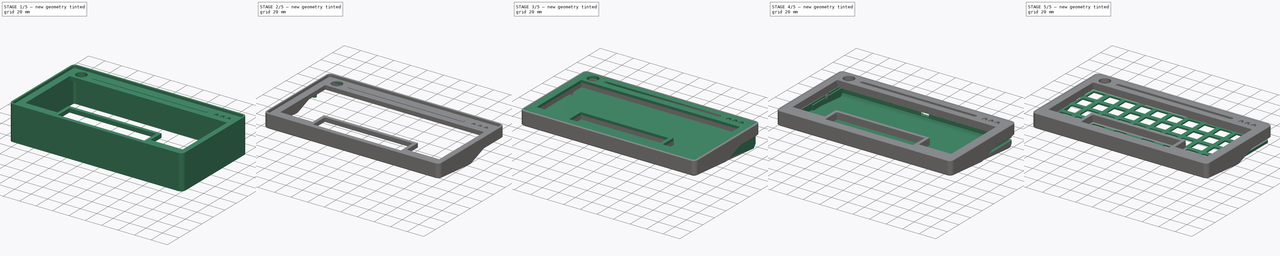
[diagram: build sequence overview — one tinted view per stage of 5, left to right]
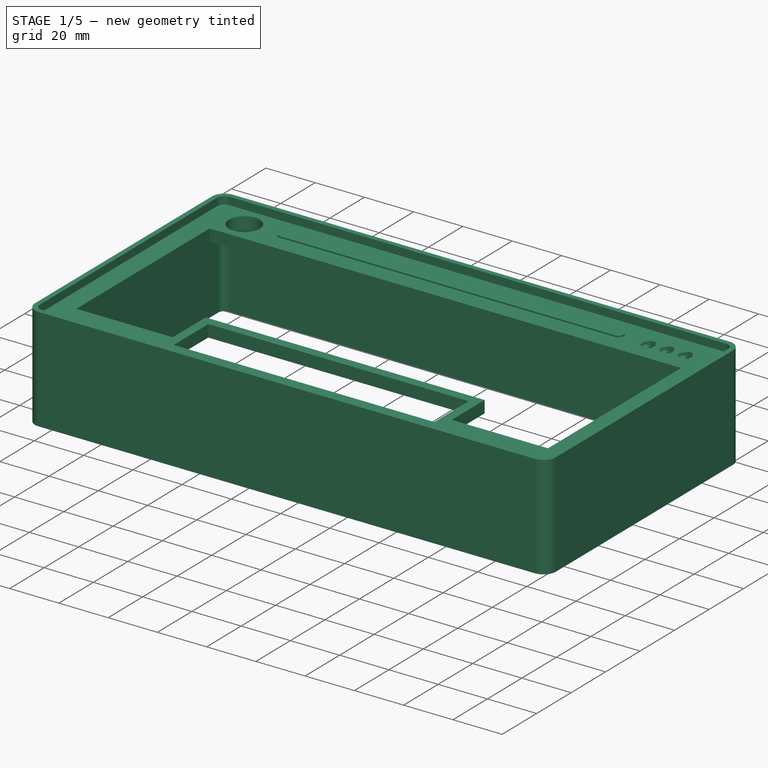
[diagram: stage 1 of 5 — iso view after this stage's code; geometry added in this stage tinted green]
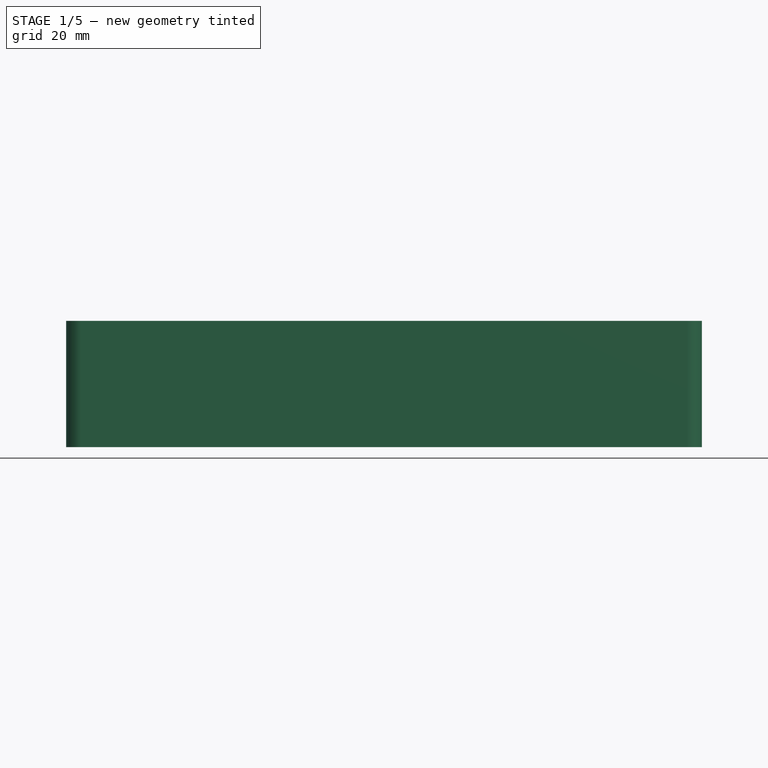
[diagram: stage 1 of 5 — front view after this stage's code; geometry added in this stage tinted green]
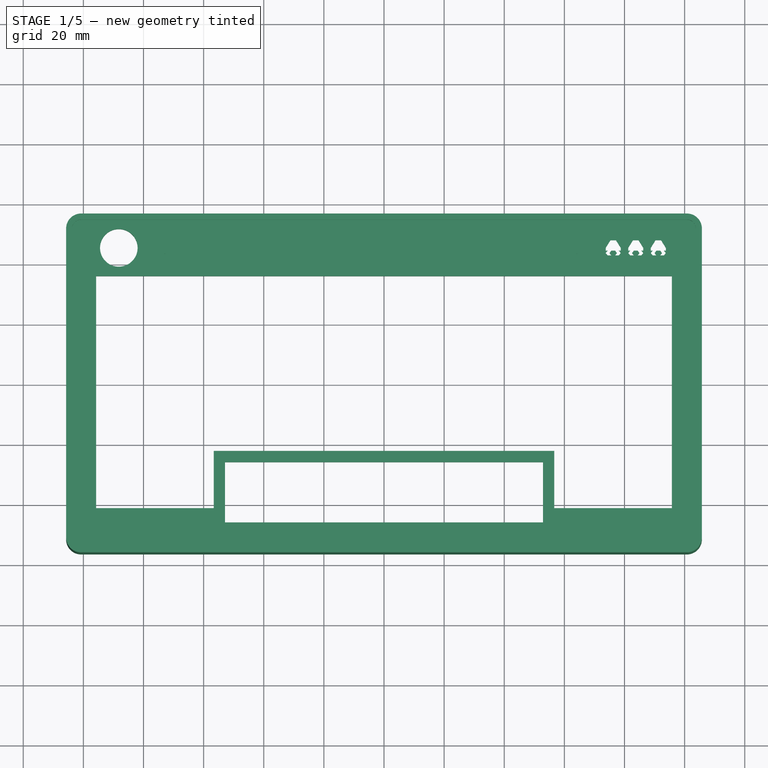
[diagram: stage 1 of 5 — top view after this stage's code; geometry added in this stage tinted green]
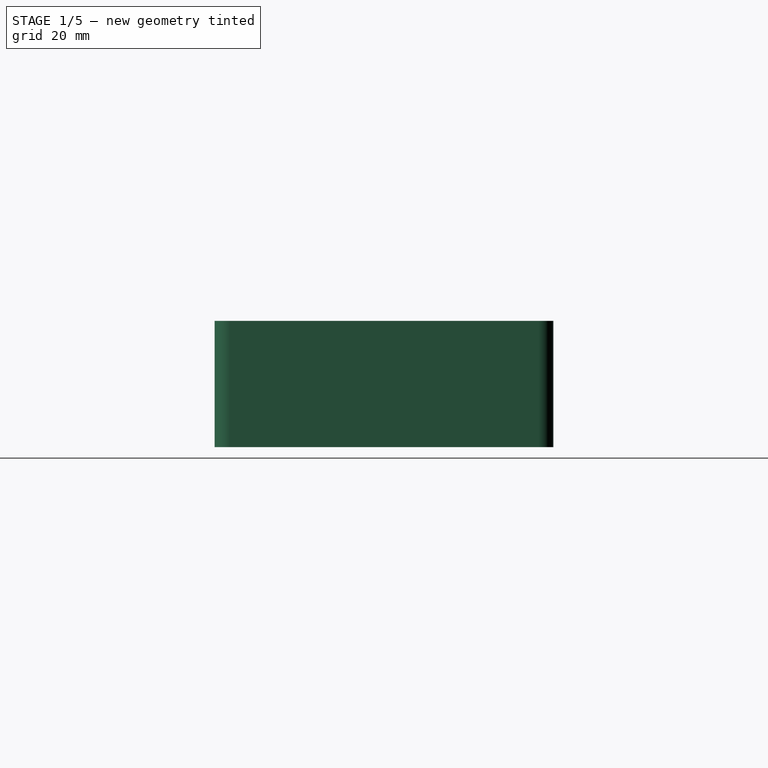
[diagram: stage 1 of 5 — right view after this stage's code; geometry added in this stage tinted green]
FCSTD DOCUMENT  (FreeCAD 0.20R29076 (Git))
Label: case
License: All rights reserved
LicenseURL: http://en.wikipedia.org/wiki/All_rights_reserved
objects: Sketcher::SketchObject×36, PartDesign::Pocket×26, PartDesign::Pad×16, PartDesign::Plane×11, PartDesign::Body×5, PartDesign::LinearPattern×3, PartDesign::Chamfer×3, PartDesign::ShapeBinder×2, PartDesign::Fillet×2, Spreadsheet::Sheet×1, PartDesign::MultiTransform×1
note: 152 computed .brp shape members not serialized (recipe doc carries the construction recipe); baked Part::Feature solids carry a one-line shape summary decoded from their .brp

FEATURE [Sketcher::SketchObject] Sketch
  FullyConstrained = true
  MapMode = 5
  Support = -> [XY_Plane]
  expr: Constraints[18] = <<vals_Case>>.edgeradius
  expr: Constraints[19] = <<vals_Case>>.caseWidth
  expr: Constraints[20] = <<vals_Case>>.caseHeight
  sketch-geometry (10):
    g0: ArcOfCircle CenterX=-100.75 CenterY=51.3625 CenterZ=0 NormalX=0 NormalY=0 NormalZ=1 AngleXU=0 Radius=5 StartAngle=1.5708 EndAngle=3.14159
    g1: LineSegment StartX=-100.75 StartY=56.3625 StartZ=0 EndX=100.75 EndY=56.3625 EndZ=0
    g2: ArcOfCircle CenterX=100.75 CenterY=51.3625 CenterZ=0 NormalX=0 NormalY=0 NormalZ=1 AngleXU=0 Radius=5 StartAngle=7e-16 EndAngle=1.5708
    g3: LineSegment StartX=105.75 StartY=51.3625 StartZ=0 EndX=105.75 EndY=-51.3625 EndZ=0
    g4: ArcOfCircle CenterX=100.75 CenterY=-51.3625 CenterZ=0 NormalX=0 NormalY=0 NormalZ=1 AngleXU=0 Radius=5 StartAngle=4.71239 EndAngle=6.28319
    g5: LineSegment StartX=100.75 StartY=-56.3625 StartZ=0 EndX=-100.75 EndY=-56.3625 EndZ=0
    g6: ArcOfCircle CenterX=-100.75 CenterY=-51.3625 CenterZ=0 NormalX=0 NormalY=0 NormalZ=1 AngleXU=0 Radius=5 StartAngle=3.14159 EndAngle=4.71239
    g7: LineSegment StartX=-105.75 StartY=-51.3625 StartZ=0 EndX=-105.75 EndY=51.3625 EndZ=0
    g8: GeomPoint X=-105.75 Y=56.3625 Z=0
    g9: GeomPoint X=105.75 Y=-56.3625 Z=0
  constraints (23):
    c: Tangent(g0,g1) = 1.5708
    c: Tangent(g1,g2) = 1.5708
    c: Tangent(g2,g3) = 1.5708
    c: Tangent(g3,g4) = 1.5708
    c: Tangent(g4,g5) = 1.5708
    c: Tangent(g5,g6) = 1.5708
    c: Tangent(g6,g7) = 1.5708
    c: Tangent(g7,g0) = 1.5708
    c: Horizontal(g1)
    c: Horizontal(g5)
    c: Vertical(g3)
    c: Vertical(g7)
    c: Equal(g0,g2)
    c: Equal(g2,g4)
    c: PointOnObject(g8,g1)
    c: PointOnObject(g8,g7)
    c: PointOnObject(g9,g3)
    c: PointOnObject(g9,g5)
    c: Radius(g0) = 5
    c: DistanceX(g0,g2) = 211.5
    c: DistanceY(g5,g0) = 112.725
    c: Symmetric(g6,g2,g-1)
    c: Equal(g6,g0)
FEATURE [Spreadsheet::Sheet] Spreadsheet  label="vals_Case"
  cells = A2=Dimensions; D2=Ornament; G2=Acryl; J2=Case; A3=spacing; B3(spacing)=19.05; D3=spaceOffset; E3(spaceOffset)==0.25 * spacing; G3=acrylBorder; H3(acrylBorder)=2; J3=WallThickness; K3(wallThickness)=2.5; A4=border; B4(border)=10; D4=spaceOffsetWidth; E4(spaceoffsetu)=5.5; G4=acrylSafety; H4(acrylSafety)=0.15; J4=midSectionHeight; K4(midSectionHeight)=8.5; A5=Edgeradius; B5(edgeradius)=5; G5=acrylLayerHeight; H5(acrylLayerHeight)=3; J5=midSectionBackInset; K5(midSectionBackInset)=3; A6=topExtra; B6(topExtr)==spaceOffset + 6; D6=penHoldHeight; E6(penHoldHeight)=4; G6=acrylOverlap; H6(acrylOverlap)=0.1; J6=bottomBackOffset; K6(bottomBackOffset)=10; A7=keysafety; B7(keysafety)=0.5; D7=penHoldOffsetLeft; E7(penHoldOffsetLeft)==encOffsetLeft + 2 * encRadius + 7.5; F7==encOffsetLeft + 2 * encRadius + 8; J7=bottomBackInset; K7(bottomBackInset)=10; A8=heightAbovePlate; B8(heightAbovePlate)=8; D8=penHoldOffsetRight; E8(penHoldOffsetRight)==13 + invOffsetRight; G8=encRadius; H8(encRadius)=6.25; I8=1.5; J8=innerWallThickness; K8(innerWallThickness)=1.5; D9=penHoldDepth; E9(penHoldDepth)=2.5; G9=encOffsetLeft; H9(encOffsetLeft)=1.28; J9=typingAngle; K9(typingAngle)=5; A10=caseHeight; B10(caseHeight)==4 * spacing + 2 * border + spaceOffset + topExtr + 2 * keysafety; D10=penHoldPos; E10(penHoldPos)==caseHeight / 2 - (border + topExtr - acrylBorder) / 2 - acrylBorder; A11=caseWidth; B11(caseWidth)==spacing * 10 + 2 * border + 2 * keysafety; D12=InvaderHeight; E12(invaderHeight)=5; G12=plateholes; H12(plateHoleRadius)=1.6; J12=bottomOverlap; K12(bottomOverlap)=1.5; A13=caseOledThickness; B13(caseOLEDThickness)=1.5; D13=InvaderOffsetLeft; E13(invaderOffsetLeft)=0; G13=plateHoleExtra; H13(plateHoleExtra)=1; A14=OLEDWidth; B14(OledWidth)=38; D14=InvaderNo; E14(invaderNo)=3; G14=plateTopOffset; A15=OLEDHeight; B15(OledHeight)=12; D15=InvaderDisplayWidth; E15(invaderDisplayWidth)=15; G15=plateBottomOffset; A16=OLEDSafety; B16(OledSafety)=2; D16=invaderOffsetRight; E16(invOffsetRight)=2; G16=plateThicknes; H16(plateThickness)=1.6; D17=invTopU; E17(invTopU)=4; A18=magOuterRad; B18(magOuterRad)=2.55; D18=invMidU; E18(invMidU)=1.5; G18=cutAngleLength; H18(cutAngleLength)=55; A19=magRad; B19(magRad)=1.55; D19=invBottomU; E19(invBottomU)=2.5; G19=cutAngle; H19(cutAngle)=25; A20=magOuterOffset; B20(magOuterOffset)=1; D20=invLegU; E20(invLegU)=2; D21=invLegOffU; E21(invLegOffU)=1; D22=invTopWidthU; E22(invTopWidthU)=3; D23=invUBase; E23(invUBase)==invaderHeight / 8
FEATURE [PartDesign::Pad] Pad  label="Main"
  Direction = (0,0,1)
  Length = 8
  Length2 = 10
  Profile = -> Sketch
  ReferenceAxis = -> Sketch [N_Axis]
  Type = 0
  expr: Length = <<vals_Case>>.heightAbovePlate
FEATURE [PartDesign::Plane] DatumPlane  label="TopOfCase"
  AttachmentOffset = pos=(0,0,8) rot=(0,0,1;0rad)
  Length = 242.381
  MapMode = 5
  Placement = pos=(0,0,8) rot=(0,0,1;0rad)
  ResizeMode = 0
  Support = -> [XY_Plane]
  Width = 143.606
  expr: .AttachmentOffset.Base.z = <<vals_Case>>.heightAbovePlate
FEATURE [Sketcher::SketchObject] Sketch001
  FullyConstrained = true
  MapMode = 5
  Placement = pos=(0,0,8) rot=(0,0,1;0rad)
  Support = -> [Pad]
  expr: Constraints[17] = <<vals_Case>>.spacing * 4 + 2 * <<vals_Case>>.keysafety
  expr: Constraints[18] = <<vals_Case>>.spacing * 10 + 2 * <<vals_Case>>.keysafety
  expr: Constraints[19] = <<vals_Case>>.spacing * 2 + 2 * <<vals_Case>>.keysafety
  expr: Constraints[20] = <<vals_Case>>.spacing
  expr: Constraints[21] = <<vals_Case>>.caseHeight / 2 - <<vals_Case>>.topExtr - <<vals_Case>>.border
  sketch-geometry (8):
    g0: LineSegment StartX=-95.75 StartY=35.6 StartZ=0 EndX=95.75 EndY=35.6 EndZ=0
    g1: LineSegment StartX=95.75 StartY=35.6 StartZ=0 EndX=95.75 EndY=-41.6 EndZ=0
    g2: LineSegment StartX=95.75 StartY=-41.6 StartZ=0 EndX=56.65 EndY=-41.6 EndZ=0
    g3: LineSegment StartX=56.65 StartY=-41.6 StartZ=0 EndX=56.65 EndY=-22.55 EndZ=0
    g4: LineSegment StartX=56.65 StartY=-22.55 StartZ=0 EndX=-56.65 EndY=-22.55 EndZ=0
    g5: LineSegment StartX=-56.65 StartY=-22.55 StartZ=0 EndX=-56.65 EndY=-41.6 EndZ=0
    g6: LineSegment StartX=-56.65 StartY=-41.6 StartZ=0 EndX=-95.75 EndY=-41.6 EndZ=0
    g7: LineSegment StartX=-95.75 StartY=-41.6 StartZ=0 EndX=-95.75 EndY=35.6 EndZ=0
  constraints (22):
    c: Coincident(g0,g1)
    c: Vertical(g1)
    c: Coincident(g1,g2)
    c: Coincident(g2,g3)
    c: Coincident(g3,g4)
    c: Horizontal(g4)
    c: Coincident(g4,g5)
    c: Vertical(g5)
    c: Coincident(g5,g6)
    c: Coincident(g6,g7)
    c: Coincident(g7,g0)
    c: Vertical(g7)
    c: Horizontal(g6)
    c: Horizontal(g2)
    c: Vertical(g3)
    c: Symmetric(g2,g5,g-2)
    c: Symmetric(g0,g0,g-2)
    c: DistanceY(g7,g7) = 77.2
    c: DistanceX(g0,g0) = 191.5
    c: DistanceX(g6,g6) = 39.1
    c: DistanceY(g5,g5) = 19.05
    c: DistanceY(g-1,g0) = 35.6
FEATURE [PartDesign::Pocket] Pocket  label="Key Cutout"
  BaseFeature = -> Pad
  Direction = (0,0,-1)
  Length = 8
  Length2 = 5
  Profile = -> Sketch001
  ReferenceAxis = -> Sketch001 [N_Axis]
  Type = 0
  expr: Length = <<vals_Case>>.heightAbovePlate
FEATURE [Sketcher::SketchObject] Sketch002
  FullyConstrained = true
  MapMode = 5
  Placement = pos=(0,0,8) rot=(0,0,1;0rad)
  Support = -> [DatumPlane]
  expr: Constraints[6] = 5.5 * <<vals_Case>>.spacing + 2 * <<vals_Case>>.keysafety
  expr: Constraints[7] = <<vals_Case>>.spacing + 2 * <<vals_Case>>.keysafety
  expr: Constraints[8] = <<vals_Case>>.caseHeight / 2 - <<vals_Case>>.border
  sketch-geometry (4):
    g0: LineSegment StartX=-52.8875 StartY=-26.3125 StartZ=0 EndX=52.8875 EndY=-26.3125 EndZ=0
    g1: LineSegment StartX=52.8875 StartY=-26.3125 StartZ=0 EndX=52.8875 EndY=-46.3625 EndZ=0
    g2: LineSegment StartX=52.8875 StartY=-46.3625 StartZ=0 EndX=-52.8875 EndY=-46.3625 EndZ=0
    g3: LineSegment StartX=-52.8875 StartY=-46.3625 StartZ=0 EndX=-52.8875 EndY=-26.3125 EndZ=0
  constraints (11):
    c: Coincident(g0,g1)
    c: Coincident(g1,g2)
    c: Coincident(g2,g3)
    c: Horizontal(g2)
    c: Vertical(g1)
    c: Vertical(g3)
    c: DistanceX(g0,g0) = 105.775
    c: DistanceY(g3,g3) = 20.05
    c: DistanceY(g2,g-1) = 46.3625
    c: Symmetric(g0,g0,g-2)
    c: Coincident(g3,g0)
FEATURE [PartDesign::Pocket] Pocket001  label="Space Cutout"
  BaseFeature = -> Pocket
  Direction = (0,0,-1)
  Length = 8
  Length2 = 5
  Profile = -> Sketch002
  ReferenceAxis = -> Sketch002 [N_Axis]
  Type = 0
  expr: Length = <<vals_Case>>.heightAbovePlate
FEATURE [Sketcher::SketchObject] Sketch003
  FullyConstrained = true
  MapMode = 5
  Placement = pos=(0,0,8) rot=(0,0,1;0rad)
  Support = -> [DatumPlane]
  expr: Constraints[10] = <<vals_Case>>.penHoldHeight
  expr: Constraints[11] = <<vals_Case>>.penHoldPos
  expr: Constraints[12] = <<vals_Case>>.caseWidth / 2 - <<vals_Case>>.border - <<vals_Case>>.penHoldOffsetRight - <<vals_Case>>.invaderDisplayWidth + <<vals_Case>>.penHoldHeight / 2
  expr: Constraints[13] = <<vals_Case>>.caseWidth / 2 - <<vals_Case>>.border - <<vals_Case>>.penHoldOffsetLeft - <<vals_Case>>.penHoldHeight / 2
  sketch-geometry (4):
    g0: ArcOfCircle CenterX=-72.47 CenterY=44.9813 CenterZ=0 NormalX=0 NormalY=0 NormalZ=1 AngleXU=0 Radius=2 StartAngle=1.5708 EndAngle=4.71239
    g1: ArcOfCircle CenterX=67.75 CenterY=44.9813 CenterZ=0 NormalX=0 NormalY=0 NormalZ=1 AngleXU=0 Radius=2 StartAngle=4.71239 EndAngle=7.85398
    g2: LineSegment StartX=67.75 StartY=46.9813 StartZ=0 EndX=-72.47 EndY=46.9813 EndZ=0
    g3: LineSegment StartX=-72.47 StartY=42.9813 StartZ=0 EndX=67.75 EndY=42.9813 EndZ=0
  constraints (14):
    c: Vertical(g1,g1)
    c: Vertical(g1,g1)
    c: Vertical(g0,g0)
    c: Vertical(g0,g0)
    c: Coincident(g2,g1)
    c: Coincident(g2,g0)
    c: Horizontal(g2)
    c: Coincident(g3,g0)
    c: Coincident(g3,g1)
    c: Horizontal(g3)
    c: DistanceY(g0,g0) = 4
    c: DistanceY(g-1,g0) = 44.9813
    c: DistanceX(g-1,g1) = 67.75
    c: DistanceX(g0,g-1) = 72.47
FEATURE [PartDesign::Pocket] Pocket002  label="penHolderCutout"
  BaseFeature = -> Pocket001
  Direction = (0,0,-1)
  Length = 2.5
  Length2 = 5
  Profile = -> Sketch003
  ReferenceAxis = -> Sketch003 [N_Axis]
  Type = 0
  expr: Length = <<vals_Case>>.penHoldDepth
FEATURE [Sketcher::SketchObject] Sketch004
  FullyConstrained = true
  MapMode = 5
  Placement = pos=(0,0,8) rot=(0,0,1;0rad)
  Support = -> [DatumPlane]
  expr: Constraints[25] = <<vals_Case>>.invaderHeight
  expr: Constraints[43] = <<vals_Case>>.invaderHeight
  expr: Constraints[50] = <<vals_Case>>.invTopU * <<vals_Case>>.invUBase
  expr: Constraints[51] = <<vals_Case>>.invTopWidthU * <<vals_Case>>.invUBase
  expr: Constraints[52] = <<vals_Case>>.invMidU * <<vals_Case>>.invUBase
  expr: Constraints[53] = <<vals_Case>>.invLegU * <<vals_Case>>.invUBase
  expr: Constraints[54] = <<vals_Case>>.invLegOffU * <<vals_Case>>.invUBase
  expr: Constraints[56] = <<vals_Case>>.penHoldPos
  expr: Constraints[57] = <<vals_Case>>.caseWidth / 2 - <<vals_Case>>.border - <<vals_Case>>.invOffsetRight
  sketch-geometry (24):
    g0: LineSegment StartX=90.3125 StartY=47.4813 StartZ=0 EndX=92.1875 EndY=47.4813 EndZ=0
    g1: LineSegment StartX=92.1875 StartY=47.4813 StartZ=0 EndX=93.75 EndY=44.9813 EndZ=0
    g2: LineSegment StartX=93.75 StartY=44.9813 StartZ=0 EndX=93.75 EndY=44.0438 EndZ=0
    g3: LineSegment StartX=93.75 StartY=44.0438 StartZ=0 EndX=93.125 EndY=44.0438 EndZ=0
    g4: LineSegment StartX=93.125 StartY=44.0438 StartZ=0 EndX=93.75 EndY=43.2625 EndZ=0
    g5: LineSegment StartX=93.75 StartY=43.2625 StartZ=0 EndX=93.125 EndY=42.4812 EndZ=0
    g6: LineSegment StartX=93.125 StartY=42.4812 StartZ=0 EndX=91.875 EndY=42.4812 EndZ=0
    g7: LineSegment StartX=91.875 StartY=42.4812 StartZ=0 EndX=92.5 EndY=43.2625 EndZ=0
    g8: LineSegment StartX=92.5 StartY=43.2625 StartZ=0 EndX=91.875 EndY=44.0438 EndZ=0
    g9: LineSegment StartX=91.875 StartY=44.0438 StartZ=0 EndX=90.625 EndY=44.0438 EndZ=0
    g10: LineSegment StartX=90.625 StartY=44.0438 StartZ=0 EndX=90 EndY=43.2625 EndZ=0
    g11: LineSegment StartX=90 StartY=43.2625 StartZ=0 EndX=90.625 EndY=42.4813 EndZ=0
    g12: LineSegment StartX=90.625 StartY=42.4813 StartZ=0 EndX=89.375 EndY=42.4812 EndZ=0
    g13: LineSegment StartX=89.375 StartY=42.4812 StartZ=0 EndX=88.75 EndY=43.2625 EndZ=0
    g14: LineSegment StartX=88.75 StartY=43.2625 StartZ=0 EndX=89.375 EndY=44.0438 EndZ=0
    g15: LineSegment StartX=89.375 StartY=44.0438 StartZ=0 EndX=88.75 EndY=44.0438 EndZ=0
    g16: LineSegment StartX=88.75 StartY=44.0438 StartZ=0 EndX=88.75 EndY=44.9813 EndZ=0
    g17: LineSegment StartX=88.75 StartY=44.9813 StartZ=0 EndX=90.3125 EndY=47.4813 EndZ=0
    g18: GeomPoint X=91.25 Y=47.4813 Z=0
    g19: LineSegment StartX=91.25 StartY=47.4813 StartZ=0 EndX=91.25 EndY=42.4813 EndZ=0
    g20: LineSegment StartX=90 StartY=43.2625 StartZ=0 EndX=88.75 EndY=43.2625 EndZ=0
    g21: LineSegment StartX=91.875 StartY=44.0438 StartZ=0 EndX=91.875 EndY=43.2625 EndZ=0
    g22: LineSegment StartX=91.875 StartY=43.2625 StartZ=0 EndX=91.875 EndY=42.4812 EndZ=0
    g23: GeomPoint X=91.25 Y=44.9813 Z=0
  constraints (58):
    c: Horizontal(g0)
    c: Coincident(g1,g0)
    c: Coincident(g2,g1)
    c: Vertical(g2)
    c: Coincident(g3,g2)
    c: Horizontal(g3)
    c: Coincident(g4,g3)
    c: Coincident(g5,g4)
    c: Coincident(g6,g5)
    c: Horizontal(g6)
    c: Coincident(g6,g7)
    c: Coincident(g7,g8)
    c: Coincident(g8,g9)
    c: Horizontal(g9)
    c: Coincident(g9,g10)
    c: Coincident(g10,g11)
    c: Coincident(g11,g12)
    c: Coincident(g12,g13)
    c: Coincident(g13,g14)
    c: Coincident(g14,g15)
    c: Coincident(g15,g16)
    c: Coincident(g16,g17)
    c: Coincident(g17,g0)
    c: Symmetric(g0,g0,g18)
    c: Coincident(g19,g18)
    c: DistanceY(g19,g19) = 5
    c: Horizontal(g11,g19)
    c: Symmetric(g7,g10,g19)
    c: Symmetric(g8,g9,g19)
    c: Symmetric(g11,g6,g19)
    c: Symmetric(g13,g4,g19)
    c: Symmetric(g12,g5,g19)
    c: Symmetric(g15,g2,g19)
    c: Horizontal(g3,g8)
    c: Symmetric(g16,g1,g19)
    c: Symmetric(g14,g3,g19)
    c: Horizontal(g13,g10)
    c: Vertical(g16,g13)
    c: Vertical(g14,g12)
    c: Vertical(g9,g11)
    c: Coincident(g20,g10)
    c: Coincident(g20,g13)
    c: Equal(g12,g20)
    c: DistanceX(g16,g1) = 5
    c: Coincident(g21,g8)
    c: Vertical(g21)
    c: Coincident(g22,g21)
    c: Coincident(g22,g6)
    c: Horizontal(g21,g7)
    c: Equal(g21,g22)
    c: DistanceY(g1,g0) = 2.5
    c: DistanceX(g0,g0) = 1.875
    c: DistanceY(g2,g2) = 0.9375
    c: DistanceX(g6,g6) = 1.25
    c: DistanceX(g15,g15) = 0.625
    c: Symmetric(g19,g19,g23)
    c: DistanceY(g-1,g23) = 44.9813
    c: DistanceX(g-1,g4) = 93.75
FEATURE [PartDesign::Pocket] Pocket003  label="InvaderCutout"
  BaseFeature = -> Pocket002
  Direction = (0,0,-1)
  Length = 8
  Length2 = 5
  Profile = -> Sketch004
  ReferenceAxis = -> Sketch004 [N_Axis]
  Type = 0
  expr: Length = <<vals_Case>>.heightAbovePlate
FEATURE [PartDesign::LinearPattern] LinearPattern  label="InvaderCutout linear"
  BaseFeature = -> Pocket003
  Direction = -> Sketch004 [H_Axis]
  Length = 15
  Occurrences = 3
  Originals = -> [Pocket003]
  Reversed = true
  expr: Length = <<vals_Case>>.invaderDisplayWidth
  expr: Occurrences = <<vals_Case>>.invaderNo
FEATURE [Sketcher::SketchObject] Sketch005
  FullyConstrained = true
  MapMode = 5
  Placement = pos=(0,0,8) rot=(0,0,1;0rad)
  Support = -> [DatumPlane]
  expr: Constraints[19] = <<vals_Case>>.edgeradius - <<vals_Case>>.acrylBorder
  expr: Constraints[20] = <<vals_Case>>.caseWidth - <<vals_Case>>.acrylBorder * 2
  expr: Constraints[21] = <<vals_Case>>.caseHeight - 2 * <<vals_Case>>.acrylBorder
  expr: Constraints[33] = <<vals_Case>>.penHoldHeight
  expr: Constraints[36] = <<vals_Case>>.penHoldPos
  expr: Constraints[37] = <<vals_Case>>.caseWidth / 2 - <<vals_Case>>.border - <<vals_Case>>.penHoldOffsetRight - <<vals_Case>>.invaderDisplayWidth
  expr: Constraints[38] = <<vals_Case>>.caseWidth / 2 - <<vals_Case>>.border - <<vals_Case>>.penHoldOffsetLeft - <<vals_Case>>.penHoldHeight / 2
  sketch-geometry (15):
    g0: ArcOfCircle CenterX=-100.75 CenterY=51.3625 CenterZ=0 NormalX=0 NormalY=0 NormalZ=1 AngleXU=0 Radius=3 StartAngle=1.5708 EndAngle=3.14159
    g1: LineSegment StartX=-100.75 StartY=54.3625 StartZ=0 EndX=100.75 EndY=54.3625 EndZ=0
    g2: ArcOfCircle CenterX=100.75 CenterY=51.3625 CenterZ=0 NormalX=0 NormalY=0 NormalZ=1 AngleXU=0 Radius=3 StartAngle=4e-16 EndAngle=1.5708
    g3: LineSegment StartX=103.75 StartY=51.3625 StartZ=0 EndX=103.75 EndY=-51.3625 EndZ=0
    g4: ArcOfCircle CenterX=100.75 CenterY=-51.3625 CenterZ=0 NormalX=0 NormalY=0 NormalZ=1 AngleXU=0 Radius=3 StartAngle=4.71239 EndAngle=6.28319
    g5: LineSegment StartX=100.75 StartY=-54.3625 StartZ=0 EndX=-100.75 EndY=-54.3625 EndZ=0
    g6: ArcOfCircle CenterX=-100.75 CenterY=-51.3625 CenterZ=0 NormalX=0 NormalY=0 NormalZ=1 AngleXU=0 Radius=3 StartAngle=3.14159 EndAngle=4.71239
    g7: LineSegment StartX=-103.75 StartY=-51.3625 StartZ=0 EndX=-103.75 EndY=51.3625 EndZ=0
    g8: GeomPoint X=-103.75 Y=54.3625 Z=0
    g9: GeomPoint X=103.75 Y=-54.3625 Z=0
    g10: ArcOfCircle CenterX=-72.47 CenterY=44.9813 CenterZ=0 NormalX=0 NormalY=0 NormalZ=1 AngleXU=0 Radius=2 StartAngle=1.5708 EndAngle=4.71239
    g11: ArcOfCircle CenterX=63.75 CenterY=44.9813 CenterZ=0 NormalX=0 NormalY=0 NormalZ=1 AngleXU=0 Radius=2 StartAngle=4.71239 EndAngle=7.85398
    g12: LineSegment StartX=63.75 StartY=46.9813 StartZ=0 EndX=-72.47 EndY=46.9813 EndZ=0
    g13: LineSegment StartX=-72.47 StartY=42.9813 StartZ=0 EndX=63.75 EndY=42.9813 EndZ=0
    g14: GeomPoint X=65.75 Y=44.9813 Z=0
  constraints (39):
    c: Tangent(g0,g1) = 1.5708
    c: Tangent(g1,g2) = 1.5708
    c: Tangent(g2,g3) = 1.5708
    c: Tangent(g3,g4) = 1.5708
    c: Tangent(g4,g5) = 1.5708
    c: Tangent(g5,g6) = 1.5708
    c: Tangent(g6,g7) = 1.5708
    c: Tangent(g7,g0) = 1.5708
    c: Horizontal(g1)
    c: Horizontal(g5)
    c: Vertical(g3)
    c: Vertical(g7)
    c: Equal(g0,g2)
    c: Equal(g2,g4)
    c: Equal(g4,g6)
    c: PointOnObject(g8,g1)
    c: PointOnObject(g8,g7)
    c: PointOnObject(g9,g3)
    c: PointOnObject(g9,g5)
    c: Radius(g0) = 3
    c: DistanceX(g0,g2) = 207.5
    c: DistanceY(g4,g1) = 108.725
    c: Symmetric(g4,g0,g-1)
    c: Vertical(g11,g11)
    c: Vertical(g11,g11)
    c: Vertical(g10,g10)
    c: Vertical(g10,g10)
    c: Coincident(g12,g11)
    c: Coincident(g12,g10)
    c: Horizontal(g12)
    c: Coincident(g13,g10)
    c: Coincident(g13,g11)
    c: Horizontal(g13)
    c: DistanceY(g10,g10) = 4
    c: PointOnObject(g14,g11)
    c: Horizontal(g14,g11)
    c: DistanceY(g-1,g10) = 44.9813
    c: DistanceX(g-1,g14) = 65.75
    c: DistanceX(g10,g-1) = 72.47
FEATURE [PartDesign::Pocket] Pocket004  label="acrylCutout"
  BaseFeature = -> LinearPattern
  Direction = (0,0,-1)
  Length = 3.1
  Length2 = 5
  Profile = -> Sketch005
  ReferenceAxis = -> Sketch005 [N_Axis]
  Type = 0
  expr: Length = <<vals_Case>>.acrylLayerHeight + <<vals_Case>>.acrylOverlap
FEATURE [Sketcher::SketchObject] Sketch006
  FullyConstrained = true
  MapMode = 5
  Placement = pos=(0,0,8) rot=(0,0,1;0rad)
  Support = -> [DatumPlane]
  expr: Constraints[0] = <<vals_Case>>.encRadius
  expr: Constraints[1] = <<vals_Case>>.caseWidth / 2 - <<vals_Case>>.border - <<vals_Case>>.encRadius - <<vals_Case>>.encOffsetLeft
  expr: Constraints[2] = <<vals_Case>>.penHoldPos
  sketch-geometry (1):
    g0: Circle CenterX=-88.22 CenterY=44.9813 CenterZ=0 NormalX=0 NormalY=0 NormalZ=1 AngleXU=0 Radius=6.25
  constraints (3):
    c: Radius(g0) = 6.25
    c: DistanceX(g0,g-1) = 88.22
    c: DistanceY(g-1,g0) = 44.9813
FEATURE [PartDesign::Pocket] Pocket005  label="encoderCutout"
  BaseFeature = -> Pocket004
  Direction = (0,0,-1)
  Length = 8
  Length2 = 5
  Profile = -> Sketch006
  ReferenceAxis = -> Sketch006 [N_Axis]
  Type = 0
  expr: Length = <<vals_Case>>.heightAbovePlate
FEATURE [PartDesign::Plane] DatumPlane002  label="TopOfPlate"
  Length = 242.381
  MapMode = 5
  ResizeMode = 0
  Support = -> [XY_Plane]
  Width = 143.606
FEATURE [Sketcher::SketchObject] Sketch011
  FullyConstrained = true
  MapMode = 5
  Support = -> [DatumPlane002]
  expr: Constraints[11] = 38
  expr: Constraints[8] = <<vals_Case>>.OledWidth + <<vals_Case>>.OledSafety
  expr: Constraints[9] = <<vals_Case>>.OledHeight + <<vals_Case>>.OledSafety
  sketch-geometry (4):
    g0: LineSegment StartX=62 StartY=52 StartZ=0 EndX=102 EndY=52 EndZ=0
    g1: LineSegment StartX=102 StartY=52 StartZ=0 EndX=102 EndY=38 EndZ=0
    g2: LineSegment StartX=102 StartY=38 StartZ=0 EndX=62 EndY=38 EndZ=0
    g3: LineSegment StartX=62 StartY=38 StartZ=0 EndX=62 EndY=52 EndZ=0
  constraints (12):
    c: Coincident(g0,g1)
    c: Coincident(g1,g2)
    c: Coincident(g2,g3)
    c: Coincident(g3,g0)
    c: Horizontal(g0)
    c: Horizontal(g2)
    c: Vertical(g1)
    c: Vertical(g3)
    c: DistanceX(g0,g0) = 40
    c: DistanceY(g3,g3) = 14
    c: DistanceX(g-1,g2) = 62
    c: DistanceY(g-1,g1) = 38
FEATURE [PartDesign::Pocket] Pocket009  label="OLED Cutout"
  BaseFeature = -> Pocket005
  Direction = (0,0,-1)
  Length = 3.35
  Length2 = 5
  Profile = -> Sketch011
  ReferenceAxis = -> Sketch011 [N_Axis]
  Reversed = true
  Type = 0
  expr: Length = <<vals_Case>>.heightAbovePlate - <<vals_Case>>.acrylLayerHeight - <<vals_Case>>.acrylSafety - <<vals_Case>>.caseOLEDThickness
FEATURE [PartDesign::Plane] DatumPlane003  label="midPlane"
  AttachmentOffset = pos=(0,0,-8.5) rot=(0,0,1;0rad)
  Length = 242.381
  MapMode = 5
  Placement = pos=(0,0,-8.5) rot=(0,0,1;0rad)
  ResizeMode = 0
  Support = -> [XY_Plane]
  Width = 143.606
  expr: .AttachmentOffset.Base.z = -<<vals_Case>>.midSectionHeight
FEATURE [Sketcher::SketchObject] Sketch013
  FullyConstrained = true
  MapMode = 5
  Support = -> [DatumPlane002]
  expr: Constraints[19] = <<vals_Case>>.edgeradius
  expr: Constraints[20] = <<vals_Case>>.caseWidth
  expr: Constraints[21] = <<vals_Case>>.caseHeight
  expr: Constraints[42] = <<vals_Case>>.edgeradius - <<vals_Case>>.wallThickness
  expr: Constraints[43] = <<vals_Case>>.caseHeight - <<vals_Case>>.wallThickness * 2
  expr: Constraints[44] = <<vals_Case>>.caseWidth - 2 * <<vals_Case>>.wallThickness
  sketch-geometry (20):
    g0: ArcOfCircle CenterX=-100.75 CenterY=51.3625 CenterZ=0 NormalX=0 NormalY=0 NormalZ=1 AngleXU=0 Radius=5 StartAngle=1.5708 EndAngle=3.14159
    g1: LineSegment StartX=-100.75 StartY=56.3625 StartZ=0 EndX=100.75 EndY=56.3625 EndZ=0
    g2: ArcOfCircle CenterX=100.75 CenterY=51.3625 CenterZ=0 NormalX=0 NormalY=0 NormalZ=1 AngleXU=0 Radius=5 StartAngle=2e-16 EndAngle=1.5708
    g3: LineSegment StartX=105.75 StartY=51.3625 StartZ=0 EndX=105.75 EndY=-51.3625 EndZ=0
    g4: ArcOfCircle CenterX=100.75 CenterY=-51.3625 CenterZ=0 NormalX=0 NormalY=0 NormalZ=1 AngleXU=0 Radius=5 StartAngle=4.71239 EndAngle=6.28319
    g5: LineSegment StartX=100.75 StartY=-56.3625 StartZ=0 EndX=-100.75 EndY=-56.3625 EndZ=0
    g6: ArcOfCircle CenterX=-100.75 CenterY=-51.3625 CenterZ=0 NormalX=0 NormalY=0 NormalZ=1 AngleXU=0 Radius=5 StartAngle=3.14159 EndAngle=4.71239
    g7: LineSegment StartX=-105.75 StartY=-51.3625 StartZ=0 EndX=-105.75 EndY=51.3625 EndZ=0
    g8: GeomPoint X=-105.75 Y=56.3625 Z=0
    g9: GeomPoint X=105.75 Y=-56.3625 Z=0
    g10: ArcOfCircle CenterX=-100.75 CenterY=51.3625 CenterZ=0 NormalX=0 NormalY=0 NormalZ=1 AngleXU=0 Radius=2.5 StartAngle=1.5708 EndAngle=3.14159
    g11: LineSegment StartX=-100.75 StartY=53.8625 StartZ=0 EndX=100.75 EndY=53.8625 EndZ=0
    g12: ArcOfCircle CenterX=100.75 CenterY=51.3625 CenterZ=0 NormalX=0 NormalY=0 NormalZ=1 AngleXU=0 Radius=2.5 StartAngle=1e-15 EndAngle=1.5708
    g13: LineSegment StartX=103.25 StartY=51.3625 StartZ=0 EndX=103.25 EndY=-51.3625 EndZ=0
    g14: ArcOfCircle CenterX=100.75 CenterY=-51.3625 CenterZ=0 NormalX=0 NormalY=0 NormalZ=1 AngleXU=0 Radius=2.5 StartAngle=4.71239 EndAngle=6.28319
    g15: LineSegment StartX=100.75 StartY=-53.8625 StartZ=0 EndX=-100.75 EndY=-53.8625 EndZ=0
    g16: ArcOfCircle CenterX=-100.75 CenterY=-51.3625 CenterZ=0 NormalX=0 NormalY=0 NormalZ=1 AngleXU=0 Radius=2.5 StartAngle=3.14159 EndAngle=4.71239
    g17: LineSegment StartX=-103.25 StartY=-51.3625 StartZ=0 EndX=-103.25 EndY=51.3625 EndZ=0
    g18: GeomPoint X=-103.25 Y=53.8625 Z=0
    g19: GeomPoint X=103.25 Y=-53.8625 Z=0
  constraints (46):
    c: Tangent(g0,g1) = 1.5708
    c: Tangent(g1,g2) = 1.5708
    c: Tangent(g2,g3) = 1.5708
    c: Tangent(g3,g4) = 1.5708
    c: Tangent(g4,g5) = 1.5708
    c: Tangent(g5,g6) = 1.5708
    c: Tangent(g6,g7) = 1.5708
    c: Tangent(g7,g0) = 1.5708
    c: Horizontal(g1)
    c: Horizontal(g5)
    c: Vertical(g3)
    c: Vertical(g7)
    c: Equal(g0,g2)
    c: Equal(g2,g4)
    c: Equal(g4,g6)
    c: PointOnObject(g8,g1)
    c: PointOnObject(g8,g7)
    c: PointOnObject(g9,g3)
    c: PointOnObject(g9,g5)
    c: Radius(g0) = 5
    c: DistanceX(g0,g2) = 211.5
    c: DistanceY(g5,g0) = 112.725
    c: Symmetric(g0,g4,g-1)
    c: Tangent(g10,g11) = 1.5708
    c: Tangent(g11,g12) = 1.5708
    c: Tangent(g12,g13) = 1.5708
    c: Tangent(g13,g14) = 1.5708
    c: Tangent(g14,g15) = 1.5708
    c: Tangent(g15,g16) = 1.5708
    c: Tangent(g16,g17) = 1.5708
    c: Tangent(g17,g10) = 1.5708
    c: Horizontal(g11)
    c: Horizontal(g15)
    c: Vertical(g13)
    c: Vertical(g17)
    c: Equal(g10,g12)
    c: Equal(g12,g14)
    c: Equal(g14,g16)
    c: PointOnObject(g18,g11)
    c: PointOnObject(g18,g17)
    c: PointOnObject(g19,g13)
    c: PointOnObject(g19,g15)
    c: Radius(g14) = 2.5
    c: DistanceY(g15,g10) = 107.725
    c: DistanceX(g10,g12) = 206.5
    c: Symmetric(g10,g14,g-1)
FEATURE [PartDesign::Pad] Pad003  label="midlayer"
  BaseFeature = -> Pocket009
  Direction = (0,0,1)
  Length = 34
  Length2 = 10
  Profile = -> Sketch013
  ReferenceAxis = -> Sketch013 [N_Axis]
  Reversed = true
  Type = 0
  expr: Length = <<vals_Case>>.midSectionHeight * 4
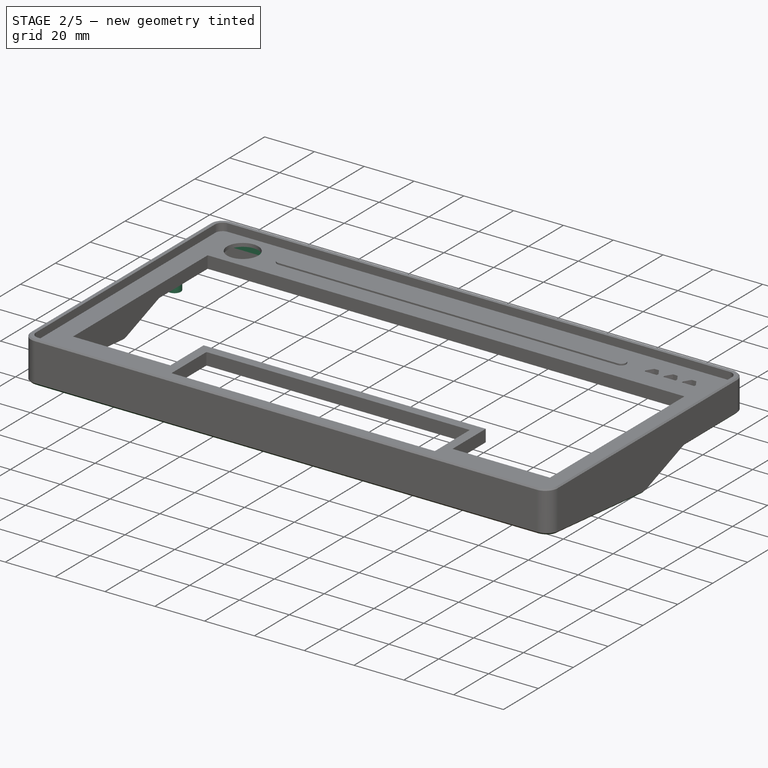
[diagram: stage 2 of 5 — iso view after this stage's code; geometry added in this stage tinted green]
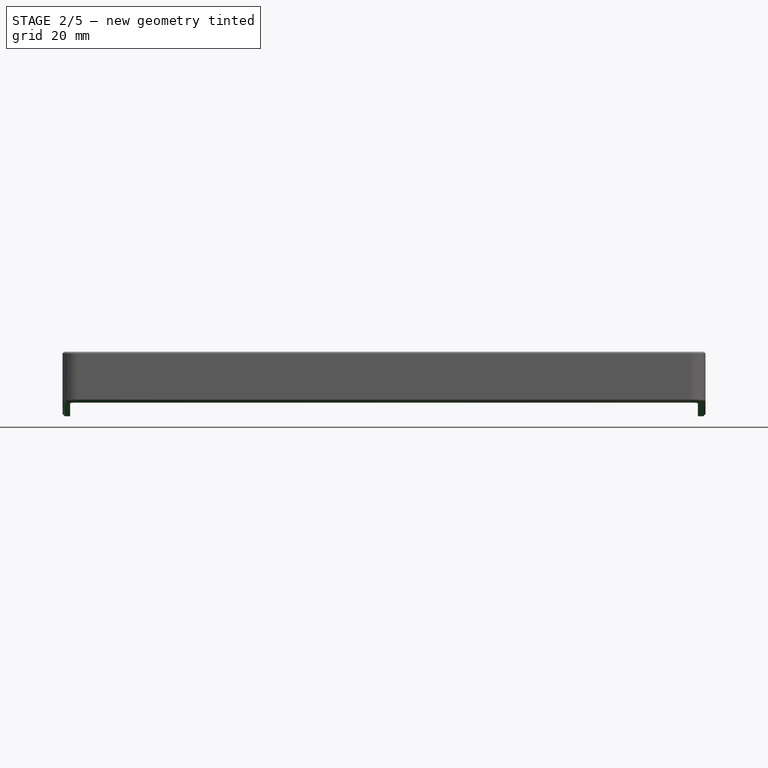
[diagram: stage 2 of 5 — front view after this stage's code; geometry added in this stage tinted green]
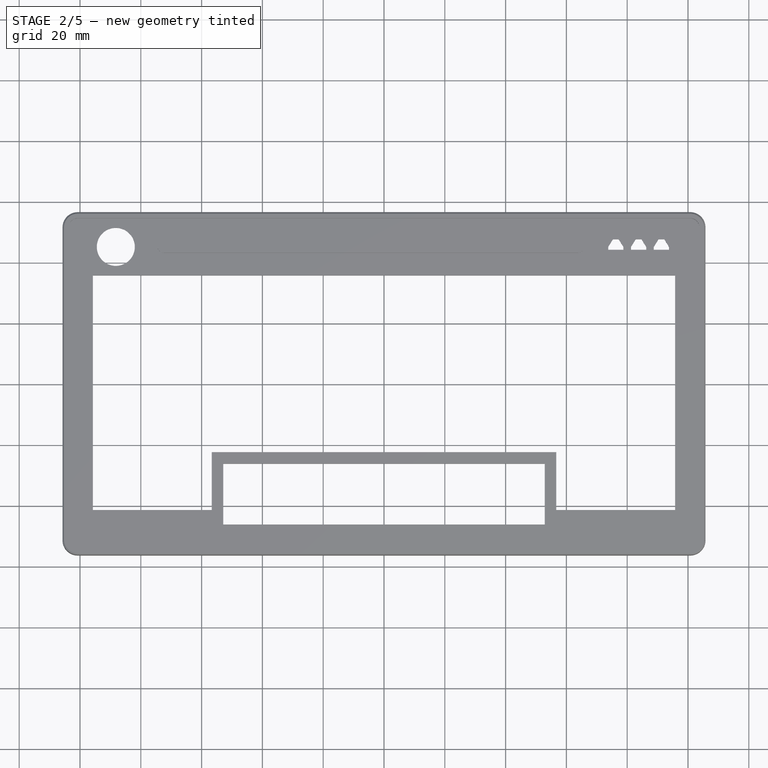
[diagram: stage 2 of 5 — top view after this stage's code; geometry added in this stage tinted green]
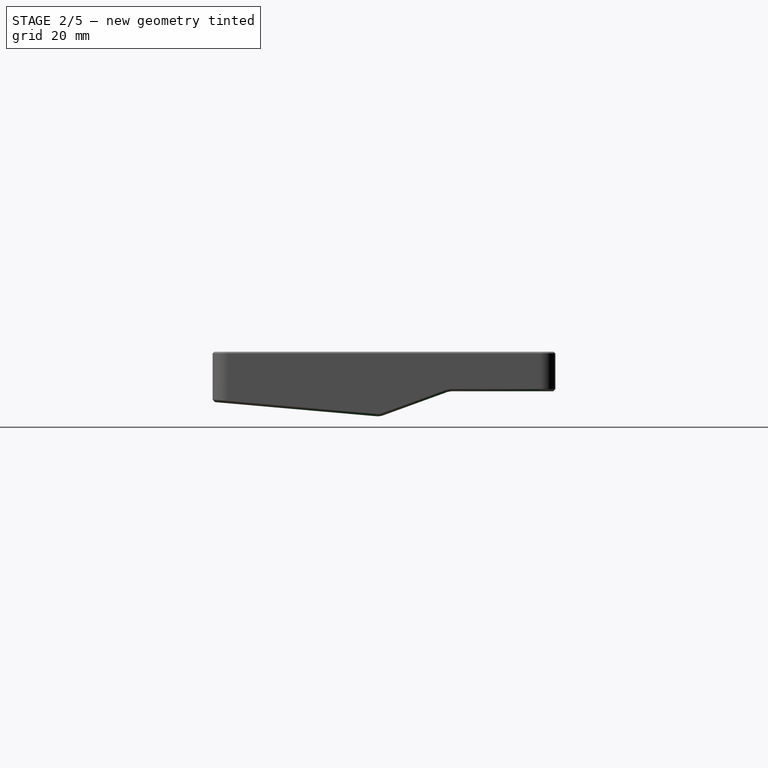
[diagram: stage 2 of 5 — right view after this stage's code; geometry added in this stage tinted green]
FEATURE [PartDesign::Plane] DatumPlane004
  AttachmentOffset = pos=(0,-8.5,105.75) rot=(0,0,1;0rad)
  Length = 127.74
  MapMode = 5
  Placement = pos=(-105.75,2.16e-14,-8.5) rot=(-0.57735,0.57735,0.57735;4.18879rad)
  ResizeMode = 0
  Support = -> [YZ_Plane]
  Width = 65.015
  expr: .AttachmentOffset.Base.y = -<<vals_Case>>.midSectionHeight
  expr: .AttachmentOffset.Base.z = <<vals_Case>>.caseWidth / 2
FEATURE [Sketcher::SketchObject] Sketch014
  FullyConstrained = true
  MapMode = 5
  Placement = pos=(-105.75,2.16e-14,-8.5) rot=(-0.57735,0.57735,0.57735;4.18879rad)
  Support = -> [DatumPlane004]
  expr: Constraints[15] = <<vals_Case>>.midSectionHeight * 10
  expr: Constraints[18] = <<vals_Case>>.cutAngleLength
  expr: Constraints[19] = <<vals_Case>>.cutAngle
  expr: Constraints[1] = <<vals_Case>>.caseHeight * 1.25
  expr: Constraints[20] = <<vals_Case>>.midSectionHeight - 5
  expr: Constraints[2] = <<vals_Case>>.typingAngle
  expr: Constraints[3] = <<vals_Case>>.caseHeight / 2
  expr: Constraints[6] = <<vals_Case>>.caseHeight / 2
  sketch-geometry (7):
    g0: LineSegment StartX=56.3625 StartY=0 StartZ=0 EndX=-84.0076 EndY=-12.2808 EndZ=0
    g1: LineSegment StartX=56.3625 StartY=0 StartZ=0 EndX=1.3625 EndY=-4.81188 EndZ=0
    g2: LineSegment StartX=-21.4742 StartY=3.5 StartZ=0 EndX=-56.3625 EndY=3.5 EndZ=0
    g3: LineSegment StartX=-56.3625 StartY=3.5 StartZ=0 EndX=-56.3625 EndY=-81.5 EndZ=0
    g4: LineSegment StartX=-56.3625 StartY=-81.5 StartZ=0 EndX=56.3625 EndY=-81.5 EndZ=0
    g5: LineSegment StartX=56.3625 StartY=-81.5 StartZ=0 EndX=56.3625 EndY=0 EndZ=0
    g6: LineSegment StartX=1.3625 StartY=-4.81188 StartZ=0 EndX=-21.4742 EndY=3.5 EndZ=0
  constraints (21):
    c: PointOnObject(g0,g-1)
    c: Distance(g0) = 140.906
    c: Angle(g-1,g0) = 0.0872665
    c: DistanceX(g-1,g0) = 56.3625
    c: Coincident(g1,g0)
    c: PointOnObject(g1,g0)
    c: DistanceX(g2,g-1) = 56.3625
    c: Horizontal(g2)
    c: Coincident(g3,g2)
    c: Vertical(g3)
    c: Coincident(g4,g3)
    c: Horizontal(g4)
    c: Coincident(g5,g4)
    c: Coincident(g5,g1)
    c: Vertical(g5)
    c: DistanceY(g3,g3) = 85
    c: Coincident(g6,g1)
    c: Coincident(g6,g2)
    c: DistanceX(g1,g1) = 55
    c: Angle(g6,g0) = 0.436332
    c: DistanceY(g1,g2) = 3.5
FEATURE [PartDesign::Pocket] Pocket010  label="cut profile"
  BaseFeature = -> Pad003
  Direction = (1,-4e-16,2e-16)
  Length = 211.5
  Length2 = 5
  Profile = -> Sketch014
  ReferenceAxis = -> Sketch014 [N_Axis]
  Type = 0
  expr: Length = <<vals_Case>>.caseWidth
FEATURE [PartDesign::Body] Body002  label="Plate"
  Group = -> [DatumPlane001,Sketch008,Pad002,Sketch009,Pocket007,MultiTransform,LinearPattern001,LinearPattern002,Sketch010,Pocket008,Sketch023,Pad005]
  Origin = -> Origin002
  Tip = -> Pad005
FEATURE [Sketcher::SketchObject] Sketch024
  FullyConstrained = true
  MapMode = 5
  Support = -> [DatumPlane002]
  expr: Constraints[10] = <<vals_Case>>.spacing * 3 - 3
  expr: Constraints[11] = 4 + 3 * <<vals_Case>>.spacing
  expr: Constraints[12] = <<vals_Case>>.spacing * 2 + 4
  expr: Constraints[13] = <<vals_Case>>.caseHeight / 2 - <<vals_Case>>.border - <<vals_Case>>.spaceOffset - <<vals_Case>>.keysafety - 2 * <<vals_Case>>.spacing
  expr: Constraints[14] = <<vals_Case>>.spacing * 2 + <<vals_Case>>.spaceOffset + 4
  expr: Constraints[9] = <<vals_Case>>.spacing * 5 + 4
  sketch-geometry (6):
    g0: Circle CenterX=-38.1 CenterY=39.1 CenterZ=0 NormalX=0 NormalY=0 NormalZ=1 AngleXU=0 Radius=1.6
    g1: Circle CenterX=38.1 CenterY=39.1 CenterZ=0 NormalX=0 NormalY=0 NormalZ=1 AngleXU=0 Radius=1.6
    g2: Circle CenterX=-99.25 CenterY=-3 CenterZ=0 NormalX=0 NormalY=0 NormalZ=1 AngleXU=0 Radius=1.6
    g3: Circle CenterX=-54.15 CenterY=-49.8625 CenterZ=0 NormalX=0 NormalY=0 NormalZ=1 AngleXU=0 Radius=1.6
    g4: Circle CenterX=54.15 CenterY=-49.8625 CenterZ=0 NormalX=0 NormalY=0 NormalZ=1 AngleXU=0 Radius=1.6
    g5: Circle CenterX=99.25 CenterY=-3 CenterZ=0 NormalX=0 NormalY=0 NormalZ=1 AngleXU=0 Radius=1.6
  constraints (15):
    c: Equal(g5,g1)
    c: Equal(g1,g0)
    c: Equal(g0,g2)
    c: Equal(g2,g3)
    c: Equal(g3,g4)
    c: Symmetric(g4,g3,g-2)
    c: Symmetric(g5,g2,g-2)
    c: Symmetric(g1,g0,g-2)
    c: Radius(g0) = 1.6
    c: DistanceX(g2,g-1) = 99.25
    c: DistanceX(g3,g-1) = 54.15
    c: DistanceX(g2,g0) = 61.15
    c: DistanceY(g2,g0) = 42.1
    c: DistanceY(g2,g-1) = 3
    c: DistanceY(g3,g2) = 46.8625
FEATURE [PartDesign::Pocket] Pocket018  label="heat insert holes"
  BaseFeature = -> Pocket010
  Direction = (0,0,-1)
  Length = 4
  Length2 = 5
  Profile = -> Sketch024
  ReferenceAxis = -> Sketch024 [N_Axis]
  Reversed = true
  Type = 0
FEATURE [PartDesign::Pad] Pad009  label="magnet holder"
  BaseFeature = -> Pocket018
  Direction = (0,0,1)
  Length = 6
  Length2 = 10
  Profile = -> Sketch028
  ReferenceAxis = -> Sketch028 [N_Axis]
  Type = 0
FEATURE [Sketcher::SketchObject] Sketch030
  FullyConstrained = true
  MapMode = 5
  Placement = pos=(0,0,-4.5) rot=(0,0,1;0rad)
  Support = -> [DatumPlane010]
  expr: Constraints[10] = <<vals_Case>>.spacing * 2
  expr: Constraints[17] = <<vals_Case>>.magRad
  expr: Constraints[5] = <<vals_Case>>.caseHeight / 2 - <<vals_Case>>.wallThickness - <<vals_Case>>.acrylSafety - <<vals_Case>>.magOuterRad - <<vals_Case>>.magOuterOffset
  expr: Constraints[6] = <<vals_Case>>.caseHeight / 2 - <<vals_Case>>.wallThickness - <<vals_Case>>.acrylSafety - <<vals_Case>>.magOuterRad - <<vals_Case>>.magOuterOffset
  expr: Constraints[8] = <<vals_Case>>.caseWidth / 2 - <<vals_Case>>.wallThickness - <<vals_Case>>.acrylSafety - <<vals_Case>>.magOuterRad - <<vals_Case>>.magOuterOffset
  sketch-geometry (7):
    g0: Circle CenterX=-38.1 CenterY=50.1625 CenterZ=0 NormalX=0 NormalY=0 NormalZ=1 AngleXU=0 Radius=1.55
    g1: Circle CenterX=38.1 CenterY=50.1625 CenterZ=0 NormalX=0 NormalY=0 NormalZ=1 AngleXU=0 Radius=1.55
    g2: Circle CenterX=99.55 CenterY=22 CenterZ=0 NormalX=0 NormalY=0 NormalZ=1 AngleXU=0 Radius=1.55
    g3: Circle CenterX=-99.55 CenterY=-50.1625 CenterZ=0 NormalX=0 NormalY=0 NormalZ=1 AngleXU=0 Radius=1.55
    g4: Circle CenterX=-99.55 CenterY=22 CenterZ=0 NormalX=0 NormalY=0 NormalZ=1 AngleXU=0 Radius=1.55
    g5: Circle CenterX=0 CenterY=-50.1625 CenterZ=0 NormalX=0 NormalY=0 NormalZ=1 AngleXU=0 Radius=1.55
    g6: Circle CenterX=99.55 CenterY=-50.1625 CenterZ=0 NormalX=0 NormalY=0 NormalZ=1 AngleXU=0 Radius=1.55
  constraints (18):
    c: Symmetric(g0,g1,g-2)
    c: Symmetric(g4,g2,g-2)
    c: Symmetric(g6,g3,g-2)
    c: PointOnObject(g5,g-2)
    c: Horizontal(g5,g3)
    c: DistanceY(g3,g-1) = 50.1625
    c: DistanceY(g-1,g0) = 50.1625
    c: DistanceY(g-1,g4) = 22
    c: DistanceX(g4,g-1) = 99.55
    c: Vertical(g3,g4)
    c: DistanceX(g0,g-1) = 38.1
    c: Equal(g3,g4)
    c: Equal(g4,g0)
    c: Equal(g0,g1)
    c: Equal(g1,g2)
    c: Equal(g2,g6)
    c: Equal(g6,g5)
    c: Radius(g0) = 1.55
FEATURE [PartDesign::Pocket] Pocket021  label="magnet holes"
  BaseFeature = -> Pad009
  Direction = (0,0,-1)
  Length = 4.1
  Length2 = 5
  Profile = -> Sketch030
  ReferenceAxis = -> Sketch030 [N_Axis]
  Reversed = true
  Type = 0
  expr: Length = 1 + <<vals_Case>>.magRad * 2
FEATURE [Sketcher::SketchObject] Sketch031
  ExternalGeometry = -> [Pocket021]
  FullyConstrained = true
  MapMode = 5
  Placement = pos=(0,0,0) rot=(1,0,0;3.14159rad)
  Support = -> [Pocket021]
  expr: Constraints[120] = <<vals_Case>>.innerWallThickness
  expr: Constraints[121] = <<vals_Case>>.innerWallThickness
  expr: Constraints[122] = <<vals_Case>>.innerWallThickness
  expr: Constraints[123] = <<vals_Case>>.innerWallThickness
  expr: Constraints[39] = <<vals_Case>>.innerWallThickness
  expr: Constraints[40] = <<vals_Case>>.innerWallThickness
  expr: Constraints[41] = <<vals_Case>>.innerWallThickness
  expr: Constraints[42] = <<vals_Case>>.innerWallThickness
  expr: Constraints[55] = <<vals_Case>>.innerWallThickness
  expr: Constraints[56] = <<vals_Case>>.innerWallThickness
  expr: Constraints[57] = <<vals_Case>>.innerWallThickness
  expr: Constraints[85] = <<vals_Case>>.innerWallThickness
  expr: Constraints[97] = <<vals_Case>>.innerWallThickness
  sketch-geometry (48):
    g0: ArcOfCircle CenterX=0 CenterY=50.1625 CenterZ=0 NormalX=0 NormalY=0 NormalZ=1 AngleXU=0 Radius=2.55 StartAngle=5.1589 EndAngle=10.5491
    g1: ArcOfCircle CenterX=38.1 CenterY=-39.1 CenterZ=0 NormalX=0 NormalY=0 NormalZ=1 AngleXU=0 Radius=6 StartAngle=2.80176 EndAngle=6.62302
    g2: ArcOfCircle CenterX=-38.1 CenterY=-39.1 CenterZ=0 NormalX=0 NormalY=0 NormalZ=1 AngleXU=0 Radius=6 StartAngle=2.80176 EndAngle=6.62302
    g3: ArcOfCircle CenterX=-99.55 CenterY=-22 CenterZ=0 NormalX=0 NormalY=0 NormalZ=1 AngleXU=0 Radius=2.55 StartAngle=0.446507 EndAngle=5.83668
    g4: Circle CenterX=-99.55 CenterY=50.1625 CenterZ=0 NormalX=0 NormalY=0 NormalZ=1 AngleXU=0 Radius=2.55
    g5: LineSegment StartX=-48.4931 StartY=47.8625 StartZ=0 EndX=-1.10114 EndY=47.8625 EndZ=0
    g6: LineSegment StartX=1.10114 StartY=47.8625 StartZ=0 EndX=48.4931 EndY=47.8625 EndZ=0
    g7: LineSegment StartX=54.3875 StartY=43.8672 StartZ=0 EndX=54.3875 EndY=24.8125 EndZ=0
    g8: LineSegment StartX=54.3875 StartY=24.8125 StartZ=0 EndX=-54.3875 EndY=24.8125 EndZ=0
    g9: LineSegment StartX=-54.3875 StartY=24.8125 StartZ=0 EndX=-54.3875 EndY=43.8672 EndZ=0
    g10: ArcOfCircle CenterX=54.15 CenterY=49.8625 CenterZ=0 NormalX=0 NormalY=0 NormalZ=1 AngleXU=0 Radius=6 StartAngle=2.41186 EndAngle=3.48143
    g11: ArcOfCircle CenterX=54.15 CenterY=49.8625 CenterZ=0 NormalX=0 NormalY=0 NormalZ=1 AngleXU=0 Radius=6 StartAngle=4.75198 EndAngle=7.01291
    g12: ArcOfCircle CenterX=100.75 CenterY=51.3625 CenterZ=0 NormalX=0 NormalY=0 NormalZ=1 AngleXU=0 Radius=2.5 StartAngle=7e-16 EndAngle=1.5708
    g13: LineSegment StartX=100.75 StartY=53.8625 StartZ=0 EndX=58.6221 EndY=53.8625 EndZ=0
    g14: Circle CenterX=99.55 CenterY=50.1625 CenterZ=0 NormalX=0 NormalY=0 NormalZ=1 AngleXU=0 Radius=2.55
    g15: ArcOfCircle CenterX=-54.15 CenterY=49.8625 CenterZ=0 NormalX=0 NormalY=0 NormalZ=1 AngleXU=0 Radius=6 StartAngle=5.94335 EndAngle=7.01291
    g16: ArcOfCircle CenterX=-54.15 CenterY=49.8625 CenterZ=0 NormalX=0 NormalY=0 NormalZ=1 AngleXU=0 Radius=6 StartAngle=2.41186 EndAngle=4.6728
    g17: LineSegment StartX=-49.6779 StartY=53.8625 StartZ=0 EndX=49.6779 EndY=53.8625 EndZ=0
    g18: LineSegment StartX=55.15 StartY=43.1 StartZ=0 EndX=97.25 EndY=43.1 EndZ=0
    g19: LineSegment StartX=97.25 StartY=43.1 StartZ=0 EndX=97.25 EndY=8.65685 EndZ=0
    g20: LineSegment StartX=55.15 StartY=43.1 StartZ=0 EndX=55.15 EndY=24.05 EndZ=0
    g21: LineSegment StartX=55.15 StartY=24.05 StartZ=0 EndX=-55.15 EndY=24.05 EndZ=0
    g22: LineSegment StartX=-55.15 StartY=24.05 StartZ=0 EndX=-55.15 EndY=43.1 EndZ=0
    g23: LineSegment StartX=-55.15 StartY=43.1 StartZ=0 EndX=-97.25 EndY=43.1 EndZ=0
    g24: LineSegment StartX=-97.25 StartY=43.1 StartZ=0 EndX=-97.25 EndY=8.65685 EndZ=0
    g25: ArcOfCircle CenterX=-99.25 CenterY=3 CenterZ=0 NormalX=0 NormalY=0 NormalZ=1 AngleXU=0 Radius=6 StartAngle=1.23096 EndAngle=2.30052
    g26: ArcOfCircle CenterX=-99.25 CenterY=3 CenterZ=0 NormalX=0 NormalY=0 NormalZ=1 AngleXU=0 Radius=6 StartAngle=3.98266 EndAngle=5.05223
    g27: ArcOfCircle CenterX=-100.75 CenterY=51.3625 CenterZ=0 NormalX=0 NormalY=0 NormalZ=1 AngleXU=0 Radius=2.5 StartAngle=1.5708 EndAngle=3.14159
    g28: LineSegment StartX=-100.75 StartY=53.8625 StartZ=0 EndX=-58.6221 EndY=53.8625 EndZ=0
    g29: LineSegment StartX=-103.25 StartY=7.47214 StartZ=0 EndX=-103.25 EndY=51.3625 EndZ=0
    g30: LineSegment StartX=-97.25 StartY=-20.8989 StartZ=0 EndX=-97.25 EndY=-2.65685 EndZ=0
    g31: LineSegment StartX=-97.25 StartY=-23.1011 StartZ=0 EndX=-97.25 EndY=-37.1 EndZ=0
    g32: LineSegment StartX=-97.25 StartY=-37.1 StartZ=0 EndX=-43.7569 EndY=-37.1 EndZ=0
    g33: Circle CenterX=-38.1 CenterY=-50.1625 CenterZ=0 NormalX=0 NormalY=0 NormalZ=1 AngleXU=0 Radius=2.55
    g34: LineSegment StartX=32.4431 StartY=-37.1 StartZ=0 EndX=-32.4431 EndY=-37.1 EndZ=0
    g35: LineSegment StartX=43.7569 StartY=-37.1 StartZ=0 EndX=97.25 EndY=-37.1 EndZ=0
    g36: LineSegment StartX=97.25 StartY=-37.1 StartZ=0 EndX=97.25 EndY=-23.1011 EndZ=0
    g37: Circle CenterX=38.1 CenterY=-50.1625 CenterZ=0 NormalX=0 NormalY=0 NormalZ=1 AngleXU=0 Radius=2.55
    g38: ArcOfCircle CenterX=100.75 CenterY=-51.3625 CenterZ=0 NormalX=0 NormalY=0 NormalZ=1 AngleXU=0 Radius=2.5 StartAngle=4.71239 EndAngle=6.28319
    g39: ArcOfCircle CenterX=99.55 CenterY=-22 CenterZ=0 NormalX=0 NormalY=0 NormalZ=1 AngleXU=0 Radius=2.55 StartAngle=3.5881 EndAngle=8.97827
    g40: LineSegment StartX=103.25 StartY=-51.3625 StartZ=0 EndX=103.25 EndY=-1.47214 EndZ=0
    g41: ArcOfCircle CenterX=99.25 CenterY=3 CenterZ=0 NormalX=0 NormalY=0 NormalZ=1 AngleXU=0 Radius=6 StartAngle=0.841069 EndAngle=1.91063
    g42: ArcOfCircle CenterX=99.25 CenterY=3 CenterZ=0 NormalX=0 NormalY=0 NormalZ=1 AngleXU=0 Radius=6 StartAngle=4.37255 EndAngle=5.44212
    g43: LineSegment StartX=97.25 StartY=-2.65685 StartZ=0 EndX=97.25 EndY=-20.8989 EndZ=0
    g44: LineSegment StartX=103.25 StartY=51.3625 StartZ=0 EndX=103.25 EndY=7.47214 EndZ=0
    g45: ArcOfCircle CenterX=-100.75 CenterY=-51.3625 CenterZ=0 NormalX=0 NormalY=0 NormalZ=1 AngleXU=0 Radius=2.5 StartAngle=3.14159 EndAngle=4.71239
    g46: LineSegment StartX=-103.25 StartY=-51.3625 StartZ=0 EndX=-103.25 EndY=-1.47214 EndZ=0
    g47: LineSegment StartX=100.75 StartY=-53.8625 StartZ=0 EndX=-100.75 EndY=-53.8625 EndZ=0
  constraints (137):
    c: Coincident(g0,g-5)
    c: Coincident(g1,g-10)
    c: Coincident(g2,g-13)
    c: Coincident(g3,g-14)
    c: Coincident(g4,g-3)
    c: Equal(g4,g-3)
    c: Coincident(g0,g6)
    c: Coincident(g5,g0)
    c: Horizontal(g6)
    c: Horizontal(g5)
    c: Vertical(g7)
    c: Coincident(g8,g7)
    c: Horizontal(g8)
    c: Coincident(g9,g8)
    c: Vertical(g9)
    c: Equal(g0,g-5)
    c: Coincident(g10,g-6)
    c: Coincident(g10,g6)
    c: Coincident(g11,g10)
    c: Equal(g10,g11)
    c: Radius(g11) = 6
    c: Coincident(g12,g-17)
    c: Coincident(g12,g-18)
    c: Horizontal(g12,g12)
    c: Coincident(g13,g12)
    c: Coincident(g13,g11)
    c: Horizontal(g13)
    c: Coincident(g14,g-7)
    c: Equal(g14,g-7)
    c: Horizontal(g0,g0)
    c: Coincident(g15,g-4)
    c: Coincident(g15,g5)
    c: Coincident(g16,g15)
    c: Equal(g16,g15)
    c: Equal(g15,g10)
    c: Coincident(g17,g15)
    c: Coincident(g17,g10)
    c: Horizontal(g17)
    c: Horizontal(g10,g11)
    c: DistanceY(g-16,g5) = 1.5
    c: DistanceX(g9,g-16) = 1.5
    c: DistanceY(g8,g-19) = 1.5
    c: DistanceX(g-19,g7) = 1.5
    c: Horizontal(g18)
    c: Coincident(g18,g19)
    c: Coincident(g18,g20)
    c: Vertical(g20)
    c: Coincident(g20,g21)
    c: Horizontal(g21)
    c: Coincident(g21,g22)
    c: Vertical(g22)
    c: Coincident(g22,g23)
    c: Horizontal(g23)
    c: Coincident(g23,g24)
    c: Vertical(g24)
    c: DistanceX(g-20,g22) = 1.5
    c: DistanceY(g-20,g22) = 1.5
    c: DistanceX(g23,g-20) = 1.5
    c: Coincident(g25,g-15)
    c: Coincident(g26,g25)
    c: Coincident(g25,g24)
    c: Coincident(g27,g-17)
    c: Coincident(g27,g-21)
    c: Vertical(g27,g27)
    c: Coincident(g28,g27)
    c: Coincident(g28,g16)
    c: Horizontal(g28)
    c: Coincident(g29,g25)
    c: Coincident(g29,g27)
    c: Vertical(g29)
    c: Equal(g3,g-14)
    c: Coincident(g30,g3)
    c: Coincident(g30,g26)
    c: Vertical(g30)
    c: Vertical(g26,g24)
    c: Vertical(g3,g3)
    c: Coincident(g31,g3)
    c: Vertical(g31)
    c: Coincident(g32,g31)
    c: Horizontal(g32)
    c: Coincident(g33,g-12)
    c: Equal(g33,g-12)
    c: Radius(g2) = 6
    c: Coincident(g32,g2)
    c: Horizontal(g2,g2)
    c: DistanceY(g31,g-22) = 1.5
    c: Equal(g1,g2)
    c: Coincident(g34,g1)
    c: Coincident(g34,g2)
    c: Horizontal(g34)
    c: Coincident(g35,g1)
    c: Horizontal(g35)
    c: Coincident(g36,g35)
    c: Vertical(g36)
    c: Horizontal(g1,g1)
    c: Coincident(g37,g-11)
    c: Equal(g37,g-11)
    c: DistanceX(g-22,g35) = 1.5
    c: Coincident(g38,g-23)
    c: Horizontal(g38,g38)
    c: PointOnObject(g39,g-9)
    c: PointOnObject(g39,g-9)
    c: Coincident(g39,g36)
    c: Coincident(g40,g38)
    c: Vertical(g40)
    c: Coincident(g41,g-8)
    c: Coincident(g41,g19)
    c: Coincident(g42,g41)
    c: Coincident(g42,g40)
    c: Equal(g42,g41)
    c: Equal(g41,g11)
    c: Coincident(g38,g-24)
    c: Coincident(g43,g42)
    c: Coincident(g43,g39)
    c: Vertical(g43)
    c: Vertical(g39,g36)
    c: Vertical(g19,g42)
    c: Coincident(g44,g12)
    c: Coincident(g44,g41)
    c: Vertical(g44)
    c: DistanceX(g-25,g18) = 1.5
    c: DistanceY(g-25,g18) = 1.5
    c: DistanceX(g18,g-25) = 1.5
    c: DistanceY(g-26,g20) = 1.5
    c: Coincident(g7,g11)
    c: Coincident(g9,g16)
    c: Equal(g25,g26)
    c: Equal(g26,g11)
    c: Coincident(g45,g-23)
    c: Coincident(g45,g-27)
    c: Horizontal(g45,g45)
    c: Coincident(g46,g45)
    c: Coincident(g46,g26)
    c: Vertical(g46)
    c: Coincident(g47,g38)
    c: Coincident(g47,g45)
    c: Equal(g39,g-9)
FEATURE [PartDesign::Pocket] Pocket022  label="remove excess material"
  BaseFeature = -> Pocket021
  Direction = (0,0,1)
  Length = 3.5
  Length2 = 5
  Profile = -> Sketch031
  ReferenceAxis = -> Sketch031 [N_Axis]
  Type = 0
  expr: Length = <<vals_Case>>.heightAbovePlate - <<vals_Case>>.acrylLayerHeight - <<vals_Case>>.caseOLEDThickness
FEATURE [PartDesign::Pocket] Pocket023  label="remove more material"
  BaseFeature = -> Pocket022
  Direction = (0,0,1)
  Length = 1
  Length2 = 5
  Profile = -> Pocket022 [Face194,Face170,Face189,Face190,Face179,Face193,Face171]
  Type = 0
FEATURE [PartDesign::Fillet] Fillet  label="Fillet profile cuts"
  Base = -> Pocket023 [Edge39,Edge77,Edge45,Edge71]
  BaseFeature = -> Pocket023
  Radius = 6
  SupportTransform = false
  UseAllEdges = false
FEATURE [PartDesign::Chamfer] Chamfer001  label="Chamfer underside"
  Angle = 45
  Base = -> Fillet [Edge16]
  BaseFeature = -> Fillet
  ChamferType = 0
  FlipDirection = false
  Size = 0.75
  Size2 = 1
  SupportTransform = false
  UseAllEdges = false
FEATURE [PartDesign::Chamfer] Chamfer002  label="Chamfer top"
  Angle = 45
  Base = -> Chamfer001 [Edge17]
  BaseFeature = -> Chamfer001
  ChamferType = 0
  FlipDirection = false
  Size = 0.5
  Size2 = 1
  SupportTransform = false
  UseAllEdges = false
FEATURE [PartDesign::Body] Body001  label="Acryl"
  Group = -> [ShapeBinder,Pad001,Sketch007,Pocket006,Fillet001,Sketch035,Pad015,Sketch036,Pocket025]
  Origin = -> Origin001
  Tip = -> Pocket025
FEATURE [Sketcher::SketchObject] Sketch037
  ExternalGeometry = -> [Chamfer002]
  FullyConstrained = true
  MapMode = 5
  Placement = pos=(0,0,4.9) rot=(0,0,1;0rad)
  Support = -> [Chamfer002]
  sketch-geometry (4):
    g0: LineSegment StartX=73.75 StartY=44.0438 StartZ=0 EndX=93.75 EndY=44.0438 EndZ=0
    g1: LineSegment StartX=93.75 StartY=44.0438 StartZ=0 EndX=93.75 EndY=42.4812 EndZ=0
    g2: LineSegment StartX=93.75 StartY=42.4812 StartZ=0 EndX=73.75 EndY=42.4812 EndZ=0
    g3: LineSegment StartX=73.75 StartY=42.4812 StartZ=0 EndX=73.75 EndY=44.0438 EndZ=0
  constraints (10):
    c: Coincident(g0,g1)
    c: Coincident(g1,g2)
    c: Coincident(g2,g3)
    c: Coincident(g3,g0)
    c: Horizontal(g2)
    c: Vertical(g1)
    c: Vertical(g3)
    c: Coincident(g0,g-3)
    c: Coincident(g0,g-4)
    c: Horizontal(g-5,g1)
FEATURE [PartDesign::Pad] Pad016  label="fix Ivader fill"
  BaseFeature = -> Chamfer002
  Direction = (0,0,1)
  Length = 10
  Length2 = 10
  Profile = -> Sketch037
  ReferenceAxis = -> Sketch037 [N_Axis]
  Type = 3
  UpToFace = -> Chamfer002 [Face152]
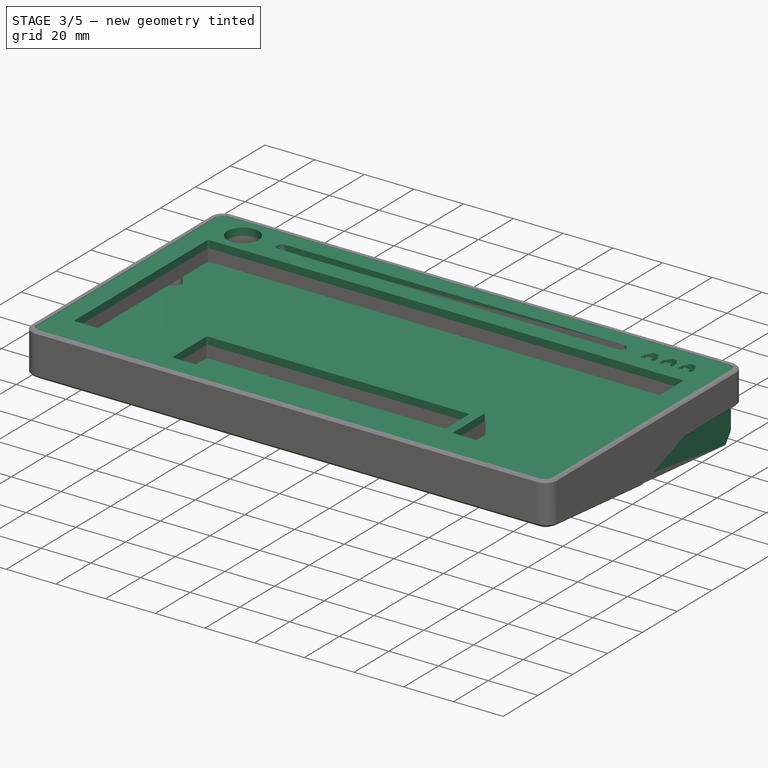
[diagram: stage 3 of 5 — iso view after this stage's code; geometry added in this stage tinted green]
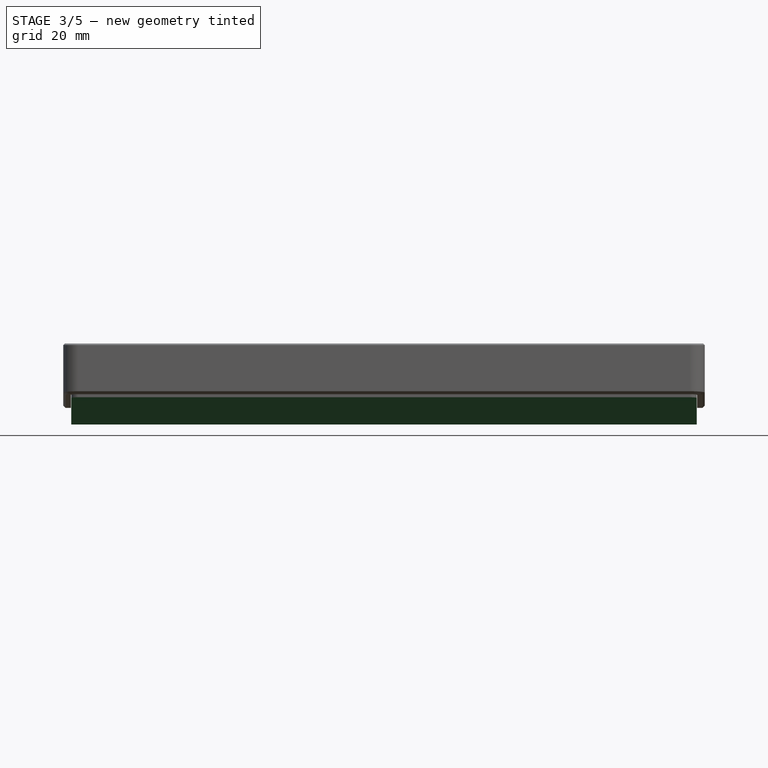
[diagram: stage 3 of 5 — front view after this stage's code; geometry added in this stage tinted green]
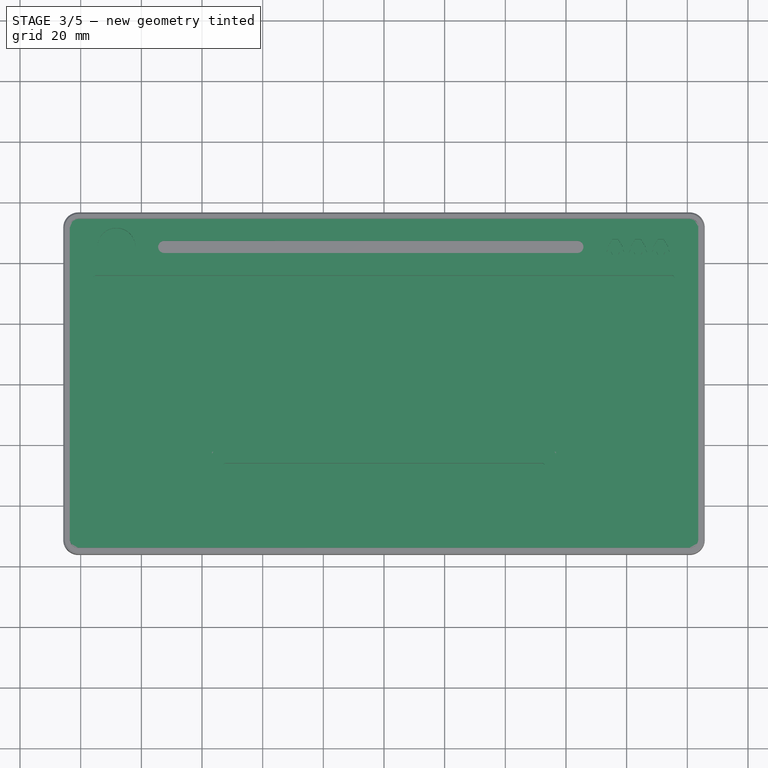
[diagram: stage 3 of 5 — top view after this stage's code; geometry added in this stage tinted green]
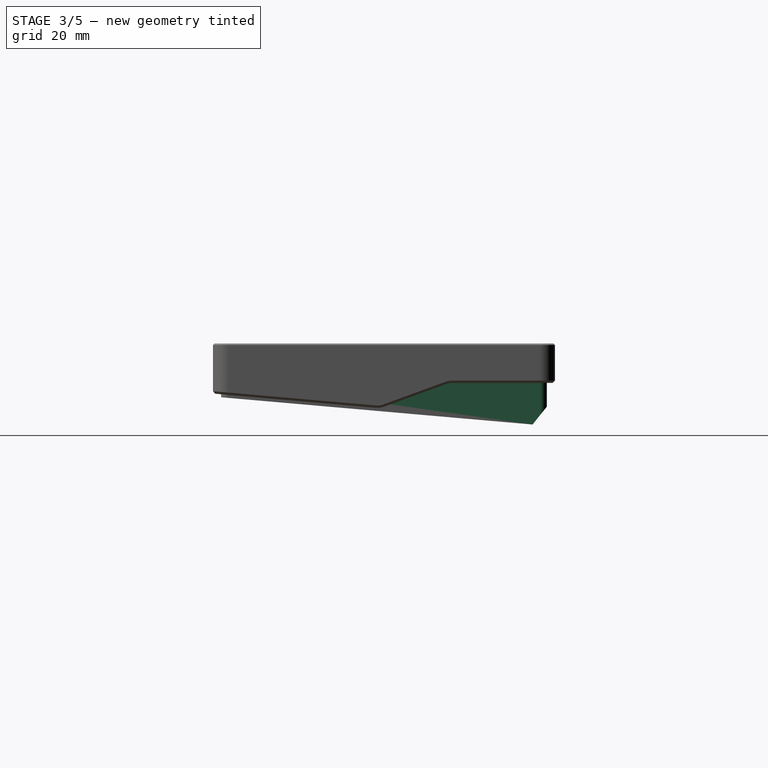
[diagram: stage 3 of 5 — right view after this stage's code; geometry added in this stage tinted green]
FEATURE [PartDesign::ShapeBinder] ShapeBinder
  Support = -> [Pocket005]
  TraceSupport = false
FEATURE [PartDesign::Pad] Pad001  label="Pad man shape"
  Direction = (0,0,1)
  Length = 3
  Length2 = 10
  Profile = -> ShapeBinder
  Type = 0
  expr: Length = <<vals_Case>>.acrylLayerHeight
FEATURE [Sketcher::SketchObject] Sketch007
  FullyConstrained = true
  MapMode = 5
  Placement = pos=(0,0,4.9) rot=(1,0,0;3.14159rad)
  Support = -> [Pad001]
  expr: Constraints[19] = <<vals_Case>>.edgeradius - <<vals_Case>>.acrylSafety - <<vals_Case>>.acrylBorder
  expr: Constraints[20] = <<vals_Case>>.caseHeight - 2 * <<vals_Case>>.acrylBorder - 2 * <<vals_Case>>.acrylSafety
  expr: Constraints[21] = <<vals_Case>>.caseWidth - 2 * <<vals_Case>>.acrylBorder - 2 * <<vals_Case>>.acrylSafety
  expr: Constraints[42] = <<vals_Case>>.edgeradius
  expr: Constraints[43] = <<vals_Case>>.caseWidth
  expr: Constraints[44] = <<vals_Case>>.caseHeight
  sketch-geometry (20):
    g0: ArcOfCircle CenterX=-100.75 CenterY=51.3625 CenterZ=0 NormalX=0 NormalY=0 NormalZ=1 AngleXU=0 Radius=2.85 StartAngle=1.5708 EndAngle=3.14159
    g1: LineSegment StartX=-100.75 StartY=54.2125 StartZ=0 EndX=100.75 EndY=54.2125 EndZ=0
    g2: ArcOfCircle CenterX=100.75 CenterY=51.3625 CenterZ=0 NormalX=0 NormalY=0 NormalZ=1 AngleXU=0 Radius=2.85 StartAngle=1e-15 EndAngle=1.5708
    g3: LineSegment StartX=103.6 StartY=51.3625 StartZ=0 EndX=103.6 EndY=-51.3625 EndZ=0
    g4: ArcOfCircle CenterX=100.75 CenterY=-51.3625 CenterZ=0 NormalX=0 NormalY=0 NormalZ=1 AngleXU=0 Radius=2.85 StartAngle=4.71239 EndAngle=6.28319
    g5: LineSegment StartX=100.75 StartY=-54.2125 StartZ=0 EndX=-100.75 EndY=-54.2125 EndZ=0
    g6: ArcOfCircle CenterX=-100.75 CenterY=-51.3625 CenterZ=0 NormalX=0 NormalY=0 NormalZ=1 AngleXU=0 Radius=2.85 StartAngle=3.14159 EndAngle=4.71239
    g7: LineSegment StartX=-103.6 StartY=-51.3625 StartZ=0 EndX=-103.6 EndY=51.3625 EndZ=0
    g8: GeomPoint X=-103.6 Y=54.2125 Z=0
    g9: GeomPoint X=103.6 Y=-54.2125 Z=0
    g10: ArcOfCircle CenterX=-100.75 CenterY=51.3625 CenterZ=0 NormalX=0 NormalY=0 NormalZ=1 AngleXU=0 Radius=5 StartAngle=1.5708 EndAngle=3.14159
    g11: LineSegment StartX=-100.75 StartY=56.3625 StartZ=0 EndX=100.75 EndY=56.3625 EndZ=0
    g12: ArcOfCircle CenterX=100.75 CenterY=51.3625 CenterZ=0 NormalX=0 NormalY=0 NormalZ=1 AngleXU=0 Radius=5 StartAngle=2e-16 EndAngle=1.5708
    g13: LineSegment StartX=105.75 StartY=51.3625 StartZ=0 EndX=105.75 EndY=-51.3625 EndZ=0
    g14: ArcOfCircle CenterX=100.75 CenterY=-51.3625 CenterZ=0 NormalX=0 NormalY=0 NormalZ=1 AngleXU=0 Radius=5 StartAngle=4.71239 EndAngle=6.28319
    g15: LineSegment StartX=100.75 StartY=-56.3625 StartZ=0 EndX=-100.75 EndY=-56.3625 EndZ=0
    g16: ArcOfCircle CenterX=-100.75 CenterY=-51.3625 CenterZ=0 NormalX=0 NormalY=0 NormalZ=1 AngleXU=0 Radius=5 StartAngle=3.14159 EndAngle=4.71239
    g17: LineSegment StartX=-105.75 StartY=-51.3625 StartZ=0 EndX=-105.75 EndY=51.3625 EndZ=0
    g18: GeomPoint X=-105.75 Y=56.3625 Z=0
    g19: GeomPoint X=105.75 Y=-56.3625 Z=0
  constraints (46):
    c: Tangent(g0,g1) = 1.5708
    c: Tangent(g1,g2) = 1.5708
    c: Tangent(g2,g3) = 1.5708
    c: Tangent(g3,g4) = 1.5708
    c: Tangent(g4,g5) = 1.5708
    c: Tangent(g5,g6) = 1.5708
    c: Tangent(g6,g7) = 1.5708
    c: Tangent(g7,g0) = 1.5708
    c: Horizontal(g1)
    c: Horizontal(g5)
    c: Vertical(g3)
    c: Vertical(g7)
    c: Equal(g0,g2)
    c: Equal(g2,g4)
    c: Equal(g4,g6)
    c: PointOnObject(g8,g1)
    c: PointOnObject(g8,g7)
    c: PointOnObject(g9,g3)
    c: PointOnObject(g9,g5)
    c: Radius(g0) = 2.85
    c: DistanceY(g5,g0) = 108.425
    c: DistanceX(g0,g2) = 207.2
    c: Symmetric(g0,g4,g-1)
    c: Tangent(g10,g11) = 1.5708
    c: Tangent(g11,g12) = 1.5708
    c: Tangent(g12,g13) = 1.5708
    c: Tangent(g13,g14) = 1.5708
    c: Tangent(g14,g15) = 1.5708
    c: Tangent(g15,g16) = 1.5708
    c: Tangent(g16,g17) = 1.5708
    c: Tangent(g17,g10) = 1.5708
    c: Horizontal(g11)
    c: Horizontal(g15)
    c: Vertical(g13)
    c: Vertical(g17)
    c: Equal(g10,g12)
    c: Equal(g12,g14)
    c: Equal(g14,g16)
    c: PointOnObject(g18,g11)
    c: PointOnObject(g18,g17)
    c: PointOnObject(g19,g13)
    c: PointOnObject(g19,g15)
    c: Radius(g10) = 5
    c: DistanceX(g16,g13) = 211.5
    c: DistanceY(g15,g10) = 112.725
    c: Symmetric(g10,g14,g-1)
FEATURE [PartDesign::Pocket] Pocket006  label="cut off safety margin"
  BaseFeature = -> Pad001
  Direction = (0,0,1)
  Length = 3
  Length2 = 5
  Profile = -> Sketch007
  ReferenceAxis = -> Sketch007 [N_Axis]
  Type = 0
  expr: Length = <<vals_Case>>.acrylLayerHeight
FEATURE [PartDesign::Plane] DatumPlane005
  AttachmentOffset = pos=(0,0,-4.5) rot=(0,0,1;0rad)
  Length = 235.966
  MapMode = 2
  Placement = pos=(0,0,-4.5) rot=(0,0,1;0rad)
  ResizeMode = 0
  Support = -> [XY_Plane141]
  Width = 137.191
  expr: .AttachmentOffset.Base.z = -(<<vals_Case>>.midSectionHeight - 2.5) + <<vals_Case>>.bottomOverlap
FEATURE [Sketcher::SketchObject] Sketch015
  FullyConstrained = true
  MapMode = 5
  Placement = pos=(0,0,-4.5) rot=(0,0,1;0rad)
  Support = -> [DatumPlane005]
  expr: Constraints[19] = <<vals_Case>>.edgeradius - <<vals_Case>>.wallThickness - 0.2
  expr: Constraints[20] = <<vals_Case>>.caseWidth - 2 * (<<vals_Case>>.wallThickness + <<vals_Case>>.acrylSafety)
  expr: Constraints[21] = <<vals_Case>>.caseHeight - 2 * (<<vals_Case>>.wallThickness + <<vals_Case>>.acrylSafety)
  sketch-geometry (10):
    g0: ArcOfCircle CenterX=-100.8 CenterY=51.4125 CenterZ=0 NormalX=0 NormalY=0 NormalZ=1 AngleXU=0 Radius=2.3 StartAngle=1.5708 EndAngle=3.14159
    g1: LineSegment StartX=-100.8 StartY=53.7125 StartZ=0 EndX=100.8 EndY=53.7125 EndZ=0
    g2: ArcOfCircle CenterX=100.8 CenterY=51.4125 CenterZ=0 NormalX=0 NormalY=0 NormalZ=1 AngleXU=0 Radius=2.3 StartAngle=1e-15 EndAngle=1.5708
    g3: LineSegment StartX=103.1 StartY=51.4125 StartZ=0 EndX=103.1 EndY=-51.4125 EndZ=0
    g4: ArcOfCircle CenterX=100.8 CenterY=-51.4125 CenterZ=0 NormalX=0 NormalY=0 NormalZ=1 AngleXU=0 Radius=2.3 StartAngle=4.71239 EndAngle=6.28319
    g5: LineSegment StartX=100.8 StartY=-53.7125 StartZ=0 EndX=-100.8 EndY=-53.7125 EndZ=0
    g6: ArcOfCircle CenterX=-100.8 CenterY=-51.4125 CenterZ=0 NormalX=0 NormalY=0 NormalZ=1 AngleXU=0 Radius=2.3 StartAngle=3.14159 EndAngle=4.71239
    g7: LineSegment StartX=-103.1 StartY=-51.4125 StartZ=0 EndX=-103.1 EndY=51.4125 EndZ=0
    g8: GeomPoint X=-103.1 Y=53.7125 Z=0
    g9: GeomPoint X=103.1 Y=-53.7125 Z=0
  constraints (23):
    c: Tangent(g0,g1) = 1.5708
    c: Tangent(g1,g2) = 1.5708
    c: Tangent(g2,g3) = 1.5708
    c: Tangent(g3,g4) = 1.5708
    c: Tangent(g4,g5) = 1.5708
    c: Tangent(g5,g6) = 1.5708
    c: Tangent(g6,g7) = 1.5708
    c: Tangent(g7,g0) = 1.5708
    c: Horizontal(g1)
    c: Horizontal(g5)
    c: Vertical(g3)
    c: Vertical(g7)
    c: Equal(g0,g2)
    c: Equal(g2,g4)
    c: Equal(g4,g6)
    c: PointOnObject(g8,g1)
    c: PointOnObject(g8,g7)
    c: PointOnObject(g9,g3)
    c: PointOnObject(g9,g5)
    c: Radius(g0) = 2.3
    c: DistanceX(g0,g2) = 206.2
    c: DistanceY(g5,g0) = 107.425
    c: Symmetric(g2,g6,g-1)
FEATURE [PartDesign::Pad] Pad004  label="extrude main shape"
  Direction = (0,0,1)
  Length = 50
  Length2 = 10
  Placement = pos=(0,0,-4.5) rot=(0,0,1;0rad)
  Profile = -> Sketch015
  ReferenceAxis = -> Sketch015 [N_Axis]
  Reversed = true
  Type = 0
FEATURE [PartDesign::Plane] DatumPlane006
  AttachmentOffset = pos=(0,-8.5,-105.75) rot=(0,0,1;0rad)
  Length = 122.083
  MapMode = 5
  Placement = pos=(-105.75,2.16e-14,-8.5) rot=(0.57735,0.57735,0.57735;2.0944rad)
  ResizeMode = 0
  Support = -> [YZ_Plane141]
  Width = 64.6578
  expr: .AttachmentOffset.Base.y = -<<vals_Case>>.midSectionHeight
  expr: .AttachmentOffset.Base.z = -<<vals_Case>>.caseWidth / 2
FEATURE [Sketcher::SketchObject] Sketch016
  FullyConstrained = false
  MapMode = 5
  Placement = pos=(-105.75,2.16e-14,-8.5) rot=(0.57735,0.57735,0.57735;2.0944rad)
  Support = -> [DatumPlane006]
  expr: Constraints[6] = <<vals_Case>>.caseHeight
  expr: Constraints[8] = <<vals_Case>>.typingAngle
  sketch-geometry (5):
    g0: LineSegment StartX=-56.3625 StartY=-1 StartZ=0 EndX=48.9794 EndY=-10.2162 EndZ=0
    g1: LineSegment StartX=48.9794 StartY=-10.2162 StartZ=0 EndX=56.3625 EndY=-1 EndZ=0
    g2: LineSegment StartX=56.3625 StartY=-1 StartZ=0 EndX=56.3625 EndY=-121 EndZ=0
    g3: LineSegment StartX=56.3625 StartY=-121 StartZ=0 EndX=-56.3625 EndY=-121 EndZ=0
    g4: LineSegment StartX=-56.3625 StartY=-121 StartZ=0 EndX=-56.3625 EndY=-1 EndZ=0
  constraints (13):
    c: Coincident(g0,g1)
    c: Coincident(g1,g2)
    c: Coincident(g2,g3)
    c: Horizontal(g3)
    c: Coincident(g3,g4)
    c: Coincident(g4,g0)
    c: DistanceX(g0,g1) = 112.725
    c: Symmetric(g1,g0,g-2)
    c: Angle(g0,g-1) = 0.0872665
    c: DistanceY(g0,g-1) = 1
    c: Vertical(g4)
    c: Vertical(g2)
    c: DistanceY(g4,g4) = 120
FEATURE [PartDesign::Pocket] Pocket011  label="cut bottom profile"
  BaseFeature = -> Pad004
  Direction = (-1,1e-16,-1e-16)
  Length = 211.5
  Length2 = 5
  Placement = pos=(0,0,-4.5) rot=(0,0,1;0rad)
  Profile = -> Sketch016
  ReferenceAxis = -> Sketch016 [N_Axis]
  Reversed = true
  Type = 0
  expr: Length = <<vals_Case>>.caseWidth
FEATURE [PartDesign::Body] Body004  label="BackInserts"
  Group = -> [ShapeBinder001,Pad013]
  Origin = -> Origin282
  Tip = -> Pad013
FEATURE [PartDesign::Fillet] Fillet001  label="Filet inside corners"
  Base = -> Pocket006 [Edge104,Edge105,Edge113,Edge109,Edge97,Edge101,Edge99,Edge107,Edge96,Edge111,Edge117,Edge115]
  BaseFeature = -> Pocket006
  Radius = 0.75
  SupportTransform = false
  UseAllEdges = false
FEATURE [Sketcher::SketchObject] Sketch035
  ExternalGeometry = -> [Fillet001]
  FullyConstrained = true
  MapMode = 5
  Placement = pos=(0,0,7.9) rot=(0,0,1;0rad)
  Support = -> [Fillet001]
  sketch-geometry (4):
    g0: LineSegment StartX=73.75 StartY=44.0438 StartZ=0 EndX=93.75 EndY=44.0438 EndZ=0
    g1: LineSegment StartX=93.75 StartY=44.0438 StartZ=0 EndX=93.75 EndY=42.4812 EndZ=0
    g2: LineSegment StartX=93.75 StartY=42.4812 StartZ=0 EndX=73.75 EndY=42.4812 EndZ=0
    g3: LineSegment StartX=73.75 StartY=42.4812 StartZ=0 EndX=73.75 EndY=44.0438 EndZ=0
  constraints (11):
    c: Coincident(g0,g1)
    c: Coincident(g1,g2)
    c: Coincident(g2,g3)
    c: Coincident(g3,g0)
    c: Horizontal(g0)
    c: Horizontal(g2)
    c: Vertical(g1)
    c: Vertical(g3)
    c: Coincident(g0,g-3)
    c: PointOnObject(g-4,g3)
    c: Horizontal(g-4,g2)
FEATURE [PartDesign::Pad] Pad015  label="fix Invaders fill up"
  BaseFeature = -> Fillet001
  Direction = (0,0,1)
  Length = 3
  Length2 = 10
  Profile = -> Sketch035
  ReferenceAxis = -> Sketch035 [N_Axis]
  Reversed = true
  Type = 0
  expr: Length = <<vals_Case>>.acrylLayerHeight
FEATURE [Sketcher::SketchObject] Sketch036
  ExternalGeometry = -> [Pad015]
  FullyConstrained = true
  MapMode = 5
  Placement = pos=(0,0,7.9) rot=(0,0,1;0rad)
  Support = -> [Pad015]
  expr: Constraints[16] = 1.5
  sketch-geometry (42):
    g0: LineSegment StartX=73.75 StartY=44.0438 StartZ=0 EndX=73.35 EndY=43.2625 EndZ=0
    g1: LineSegment StartX=73.35 StartY=43.2625 StartZ=0 EndX=73.75 EndY=42.4812 EndZ=0
    g2: LineSegment StartX=73.75 StartY=42.4812 StartZ=0 EndX=75.25 EndY=42.4812 EndZ=0
    g3: LineSegment StartX=75.25 StartY=42.4812 StartZ=0 EndX=74.85 EndY=43.2625 EndZ=0
    g4: LineSegment StartX=74.85 StartY=43.2625 StartZ=0 EndX=75.25 EndY=44.0438 EndZ=0
    g5: LineSegment StartX=75.25 StartY=44.0438 StartZ=0 EndX=73.75 EndY=44.0438 EndZ=0
    g6: LineSegment StartX=74.85 StartY=43.2625 StartZ=0 EndX=73.35 EndY=43.2625 EndZ=0
    g7: LineSegment StartX=78.75 StartY=44.0438 StartZ=0 EndX=79.15 EndY=43.2625 EndZ=0
    g8: LineSegment StartX=79.15 StartY=43.2625 StartZ=0 EndX=78.75 EndY=42.4812 EndZ=0
    g9: LineSegment StartX=78.75 StartY=42.4812 StartZ=0 EndX=77.25 EndY=42.4812 EndZ=0
    g10: LineSegment StartX=77.25 StartY=42.4812 StartZ=0 EndX=77.65 EndY=43.2625 EndZ=0
    g11: LineSegment StartX=77.65 StartY=43.2625 StartZ=0 EndX=77.25 EndY=44.0438 EndZ=0
    g12: LineSegment StartX=77.25 StartY=44.0438 StartZ=0 EndX=78.75 EndY=44.0438 EndZ=0
    g13: LineSegment StartX=79.15 StartY=43.2625 StartZ=0 EndX=77.65 EndY=43.2625 EndZ=0
    g14: LineSegment StartX=81.25 StartY=44.0438 StartZ=0 EndX=80.85 EndY=43.2625 EndZ=0
    g15: LineSegment StartX=80.85 StartY=43.2625 StartZ=0 EndX=81.25 EndY=42.4812 EndZ=0
    g16: LineSegment StartX=81.25 StartY=42.4812 StartZ=0 EndX=82.75 EndY=42.4812 EndZ=0
    g17: LineSegment StartX=82.75 StartY=42.4812 StartZ=0 EndX=82.35 EndY=43.2625 EndZ=0
    g18: LineSegment StartX=82.35 StartY=43.2625 StartZ=0 EndX=82.75 EndY=44.0438 EndZ=0
    g19: LineSegment StartX=82.75 StartY=44.0438 StartZ=0 EndX=81.25 EndY=44.0438 EndZ=0
    g20: LineSegment StartX=86.25 StartY=44.0438 StartZ=0 EndX=86.65 EndY=43.2625 EndZ=0
    g21: LineSegment StartX=86.65 StartY=43.2625 StartZ=0 EndX=86.25 EndY=42.4812 EndZ=0
    g22: LineSegment StartX=86.25 StartY=42.4812 StartZ=0 EndX=84.75 EndY=42.4812 EndZ=0
    g23: LineSegment StartX=84.75 StartY=42.4812 StartZ=0 EndX=85.15 EndY=43.2625 EndZ=0
    g24: LineSegment StartX=85.15 StartY=43.2625 StartZ=0 EndX=84.75 EndY=44.0438 EndZ=0
    g25: LineSegment StartX=84.75 StartY=44.0438 StartZ=0 EndX=86.25 EndY=44.0438 EndZ=0
    g26: LineSegment StartX=80.85 StartY=43.2625 StartZ=0 EndX=82.35 EndY=43.2625 EndZ=0
    g27: LineSegment StartX=85.15 StartY=43.2625 StartZ=0 EndX=86.65 EndY=43.2625 EndZ=0
    g28: LineSegment StartX=88.75 StartY=44.0438 StartZ=0 EndX=88.35 EndY=43.2625 EndZ=0
    g29: LineSegment StartX=88.35 StartY=43.2625 StartZ=0 EndX=88.75 EndY=42.4812 EndZ=0
    g30: LineSegment StartX=88.75 StartY=42.4812 StartZ=0 EndX=90.25 EndY=42.4812 EndZ=0
    g31: LineSegment StartX=90.25 StartY=42.4812 StartZ=0 EndX=89.85 EndY=43.2625 EndZ=0
    g32: LineSegment StartX=89.85 StartY=43.2625 StartZ=0 EndX=90.25 EndY=44.0438 EndZ=0
    g33: LineSegment StartX=90.25 StartY=44.0438 StartZ=0 EndX=88.75 EndY=44.0438 EndZ=0
    g34: LineSegment StartX=93.75 StartY=44.0438 StartZ=0 EndX=92.25 EndY=44.0438 EndZ=0
    g35: LineSegment StartX=92.25 StartY=44.0438 StartZ=0 EndX=92.65 EndY=43.2625 EndZ=0
    g36: LineSegment StartX=92.65 StartY=43.2625 StartZ=0 EndX=92.25 EndY=42.4812 EndZ=0
    g37: LineSegment StartX=92.25 StartY=42.4812 StartZ=0 EndX=93.75 EndY=42.4812 EndZ=0
    g38: LineSegment StartX=93.75 StartY=42.4812 StartZ=0 EndX=94.15 EndY=43.2625 EndZ=0
    g39: LineSegment StartX=94.15 StartY=43.2625 StartZ=0 EndX=93.75 EndY=44.0438 EndZ=0
    g40: LineSegment StartX=92.65 StartY=43.2625 StartZ=0 EndX=94.15 EndY=43.2625 EndZ=0
    g41: LineSegment StartX=89.85 StartY=43.2625 StartZ=0 EndX=88.35 EndY=43.2625 EndZ=0
  constraints (113):
    c: Coincident(g-3,g0)
    c: Coincident(g0,g1)
    c: Coincident(g1,g-4)
    c: Coincident(g1,g2)
    c: Horizontal(g2)
    c: Coincident(g2,g3)
    c: Coincident(g3,g4)
    c: Coincident(g4,g5)
    c: Coincident(g5,g0)
    c: Horizontal(g5)
    c: Horizontal(g0,g3)
    c: Horizontal(g3,g-5)
    c: Equal(g5,g2)
    c: Coincident(g6,g3)
    c: Coincident(g6,g0)
    c: Equal(g6,g5)
    c: DistanceX(g6,g6) = 1.5
    c: Coincident(g-7,g7)
    c: Coincident(g7,g8)
    c: Coincident(g8,g9)
    c: Horizontal(g9)
    c: Coincident(g9,g10)
    c: Coincident(g10,g11)
    c: Coincident(g11,g12)
    c: Coincident(g12,g7)
    c: Horizontal(g12)
    c: Horizontal(g10,g-8)
    c: Horizontal(g-8,g7)
    c: Equal(g9,g12)
    c: Vertical(g9,g11)
    c: Horizontal(g9,g2)
    c: Coincident(g13,g7)
    c: Coincident(g13,g10)
    c: Equal(g13,g6)
    c: Coincident(g-9,g14)
    c: Coincident(g14,g15)
    c: Coincident(g15,g16)
    c: Horizontal(g16)
    c: Coincident(g16,g17)
    c: Coincident(g17,g18)
    c: Coincident(g18,g19)
    c: Coincident(g19,g14)
    c: Horizontal(g19)
    c: Coincident(g-10,g20)
    c: Coincident(g20,g21)
    c: Coincident(g21,g22)
    c: Horizontal(g22)
    c: Coincident(g22,g23)
    c: Coincident(g23,g24)
    c: Coincident(g24,g25)
    c: Coincident(g25,g20)
    c: Horizontal(g25)
    c: Coincident(g26,g14)
    c: Coincident(g26,g17)
    c: Horizontal(g26)
    c: Coincident(g27,g23)
    c: Coincident(g27,g20)
    c: Horizontal(g27)
    c: Horizontal(g23,g-11)
    c: Horizontal(g-11,g17)
    c: Equal(g27,g26)
    c: Equal(g26,g13)
    c: Equal(g16,g19)
    c: Equal(g19,g25)
    c: Equal(g25,g22)
    c: Horizontal(g16,g-12)
    c: Horizontal(g-12,g22)
    c: Vertical(g16,g18)
    c: Vertical(g24,g22)
    c: Coincident(g-14,g28)
    c: Coincident(g28,g29)
    c: Coincident(g29,g30)
    c: Horizontal(g30)
    c: Coincident(g30,g31)
    c: Coincident(g31,g32)
    c: Coincident(g32,g33)
    c: Coincident(g33,g28)
    c: Horizontal(g33)
    c: Coincident(g-13,g34)
    c: Horizontal(g34)
    c: Coincident(g34,g35)
    c: Coincident(g35,g36)
    c: Coincident(g36,g37)
    c: Horizontal(g37)
    c: Coincident(g37,g38)
    c: Coincident(g38,g39)
    c: Coincident(g39,g34)
    c: Horizontal(g36,g30)
    c: Horizontal(g30,g-15)
    c: Coincident(g40,g35)
    c: Coincident(g40,g38)
    c: Horizontal(g40)
    c: Coincident(g41,g31)
    c: Coincident(g41,g28)
    c: Horizontal(g41)
    c: Equal(g40,g41)
    c: Equal(g41,g27)
    c: Horizontal(g31,g-15)
    c: Horizontal(g-15,g35)
    c: Vertical(g30,g32)
    c: Vertical(g34,g36)
    c: Equal(g37,g34)
    c: DistanceX(g0,g0) = 0.4
    c: DistanceX(g7,g7) = 0.4
    c: Equal(g12,g5)
    c: DistanceX(g14,g14) = 0.4
    c: DistanceX(g20,g20) = 0.4
    c: Equal(g16,g9)
    c: DistanceX(g34,g38) = 0.4
    c: DistanceX(g28,g28) = 0.4
    c: Equal(g30,g33)
    c: Equal(g33,g34)
    c: Equal(g37,g25)
FEATURE [PartDesign::Pocket] Pocket025  label="fix Invaders new legs"
  BaseFeature = -> Pad015
  Direction = (0,0,-1)
  Length = 5
  Length2 = 5
  Profile = -> Sketch036
  ReferenceAxis = -> Sketch036 [N_Axis]
  Type = 0
FEATURE [Sketcher::SketchObject] Sketch038
  ExternalGeometry = -> [Pad016]
  FullyConstrained = true
  MapMode = 5
  Placement = pos=(0,0,4.9) rot=(0,0,1;0rad)
  Support = -> [Pad016]
  sketch-geometry (42):
    g0: LineSegment StartX=78.75 StartY=44.0438 StartZ=0 EndX=79.15 EndY=43.2625 EndZ=0
    g1: LineSegment StartX=79.15 StartY=43.2625 StartZ=0 EndX=78.75 EndY=42.4812 EndZ=0
    g2: LineSegment StartX=78.75 StartY=42.4812 StartZ=0 EndX=77.25 EndY=42.4812 EndZ=0
    g3: LineSegment StartX=77.25 StartY=42.4812 StartZ=0 EndX=77.65 EndY=43.2625 EndZ=0
    g4: LineSegment StartX=77.65 StartY=43.2625 StartZ=0 EndX=77.25 EndY=44.0438 EndZ=0
    g5: LineSegment StartX=77.25 StartY=44.0438 StartZ=0 EndX=78.75 EndY=44.0438 EndZ=0
    g6: LineSegment StartX=73.75 StartY=44.0438 StartZ=0 EndX=73.35 EndY=43.2625 EndZ=0
    g7: LineSegment StartX=73.35 StartY=43.2625 StartZ=0 EndX=73.75 EndY=42.4812 EndZ=0
    g8: LineSegment StartX=73.75 StartY=42.4812 StartZ=0 EndX=75.25 EndY=42.4812 EndZ=0
    g9: LineSegment StartX=75.25 StartY=42.4812 StartZ=0 EndX=74.85 EndY=43.2625 EndZ=0
    g10: LineSegment StartX=74.85 StartY=43.2625 StartZ=0 EndX=75.25 EndY=44.0438 EndZ=0
    g11: LineSegment StartX=75.25 StartY=44.0438 StartZ=0 EndX=73.75 EndY=44.0438 EndZ=0
    g12: LineSegment StartX=73.35 StartY=43.2625 StartZ=0 EndX=74.85 EndY=43.2625 EndZ=0
    g13: LineSegment StartX=77.65 StartY=43.2625 StartZ=0 EndX=79.15 EndY=43.2625 EndZ=0
    g14: LineSegment StartX=86.25 StartY=44.0438 StartZ=0 EndX=86.65 EndY=43.2625 EndZ=0
    g15: LineSegment StartX=86.65 StartY=43.2625 StartZ=0 EndX=86.25 EndY=42.4812 EndZ=0
    g16: LineSegment StartX=86.25 StartY=42.4812 StartZ=0 EndX=84.75 EndY=42.4812 EndZ=0
    g17: LineSegment StartX=84.75 StartY=42.4812 StartZ=0 EndX=85.15 EndY=43.2625 EndZ=0
    g18: LineSegment StartX=85.15 StartY=43.2625 StartZ=0 EndX=84.75 EndY=44.0438 EndZ=0
    g19: LineSegment StartX=84.75 StartY=44.0438 StartZ=0 EndX=86.25 EndY=44.0438 EndZ=0
    g20: LineSegment StartX=81.25 StartY=44.0438 StartZ=0 EndX=80.85 EndY=43.2625 EndZ=0
    g21: LineSegment StartX=80.85 StartY=43.2625 StartZ=0 EndX=81.25 EndY=42.4812 EndZ=0
    g22: LineSegment StartX=81.25 StartY=42.4812 StartZ=0 EndX=82.75 EndY=42.4812 EndZ=0
    g23: LineSegment StartX=82.75 StartY=42.4812 StartZ=0 EndX=82.35 EndY=43.2625 EndZ=0
    g24: LineSegment StartX=82.35 StartY=43.2625 StartZ=0 EndX=82.75 EndY=44.0438 EndZ=0
    g25: LineSegment StartX=82.75 StartY=44.0438 StartZ=0 EndX=81.25 EndY=44.0438 EndZ=0
    g26: LineSegment StartX=86.65 StartY=43.2625 StartZ=0 EndX=85.15 EndY=43.2625 EndZ=0
    g27: LineSegment StartX=82.35 StartY=43.2625 StartZ=0 EndX=80.85 EndY=43.2625 EndZ=0
    g28: LineSegment StartX=93.75 StartY=44.0438 StartZ=0 EndX=94.15 EndY=43.2625 EndZ=0
    g29: LineSegment StartX=94.15 StartY=43.2625 StartZ=0 EndX=93.75 EndY=42.4812 EndZ=0
    g30: LineSegment StartX=93.75 StartY=42.4812 StartZ=0 EndX=92.25 EndY=42.4812 EndZ=0
    g31: LineSegment StartX=92.25 StartY=42.4812 StartZ=0 EndX=92.65 EndY=43.2625 EndZ=0
    g32: LineSegment StartX=92.65 StartY=43.2625 StartZ=0 EndX=92.25 EndY=44.0438 EndZ=0
    g33: LineSegment StartX=92.25 StartY=44.0438 StartZ=0 EndX=93.75 EndY=44.0438 EndZ=0
    g34: LineSegment StartX=88.75 StartY=44.0438 StartZ=0 EndX=88.35 EndY=43.2625 EndZ=0
    g35: LineSegment StartX=88.35 StartY=43.2625 StartZ=0 EndX=88.75 EndY=42.4812 EndZ=0
    g36: LineSegment StartX=88.75 StartY=42.4812 StartZ=0 EndX=90.25 EndY=42.4812 EndZ=0
    g37: LineSegment StartX=90.25 StartY=42.4812 StartZ=0 EndX=89.85 EndY=43.2625 EndZ=0
    g38: LineSegment StartX=89.85 StartY=43.2625 StartZ=0 EndX=90.25 EndY=44.0438 EndZ=0
    g39: LineSegment StartX=90.25 StartY=44.0438 StartZ=0 EndX=88.75 EndY=44.0438 EndZ=0
    g40: LineSegment StartX=92.65 StartY=43.2625 StartZ=0 EndX=94.15 EndY=43.2625 EndZ=0
    g41: LineSegment StartX=89.85 StartY=43.2625 StartZ=0 EndX=88.35 EndY=43.2625 EndZ=0
  constraints (113):
    c: Coincident(g-3,g0)
    c: Coincident(g0,g1)
    c: Coincident(g1,g2)
    c: Horizontal(g2)
    c: Coincident(g2,g3)
    c: Coincident(g3,g4)
    c: Coincident(g4,g5)
    c: Coincident(g5,g0)
    c: Horizontal(g5)
    c: Coincident(g-4,g6)
    c: Coincident(g6,g7)
    c: Coincident(g7,g-5)
    c: Coincident(g7,g8)
    c: Horizontal(g8)
    c: Coincident(g8,g9)
    c: Coincident(g9,g10)
    c: Coincident(g10,g11)
    c: Coincident(g11,g6)
    c: Horizontal(g11)
    c: Horizontal(g0,g-6)
    c: Horizontal(g-6,g3)
    c: Horizontal(g3,g9)
    c: Horizontal(g9,g6)
    c: DistanceX(g6,g6) = 0.4
    c: DistanceX(g0,g0) = 0.4
    c: Horizontal(g2,g8)
    c: Vertical(g1,g0)
    c: Coincident(g12,g6)
    c: Coincident(g12,g9)
    c: Coincident(g13,g3)
    c: Coincident(g13,g0)
    c: Equal(g12,g13)
    c: DistanceX(g12,g12) = 1.5
    c: Equal(g11,g5)
    c: Equal(g5,g13)
    c: Vertical(g8,g10)
    c: Vertical(g2,g4)
    c: Coincident(g-9,g14)
    c: Coincident(g14,g15)
    c: Coincident(g15,g16)
    c: Horizontal(g16)
    c: Coincident(g16,g17)
    c: Coincident(g17,g18)
    c: Coincident(g18,g19)
    c: Coincident(g19,g14)
    c: Horizontal(g19)
    c: Coincident(g-7,g20)
    c: Coincident(g20,g21)
    c: Coincident(g21,g22)
    c: Horizontal(g22)
    c: Coincident(g22,g23)
    c: Coincident(g23,g24)
    c: Coincident(g24,g25)
    c: Coincident(g25,g20)
    c: Horizontal(g25)
    c: Horizontal(g-10,g16)
    c: Horizontal(g16,g22)
    c: Horizontal(g20,g23)
    c: Horizontal(g23,g-8)
    c: Horizontal(g-8,g17)
    c: Horizontal(g17,g14)
    c: Vertical(g20,g21)
    c: Vertical(g24,g22)
    c: Vertical(g16,g18)
    c: Vertical(g14,g15)
    c: Equal(g16,g25)
    c: DistanceX(g20,g20) = 0.4
    c: DistanceX(g14,g14) = 0.4
    c: Coincident(g26,g14)
    c: Coincident(g26,g17)
    c: Coincident(g27,g23)
    c: Coincident(g27,g20)
    c: Equal(g25,g27)
    c: Equal(g27,g26)
    c: Coincident(g-11,g28)
    c: Coincident(g28,g29)
    c: Coincident(g29,g30)
    c: Coincident(g30,g31)
    c: Coincident(g31,g32)
    c: Coincident(g32,g33)
    c: Coincident(g33,g28)
    c: Horizontal(g33)
    c: Coincident(g-13,g34)
    c: Coincident(g34,g35)
    c: Coincident(g35,g36)
    c: Horizontal(g36)
    c: Coincident(g36,g37)
    c: Coincident(g37,g38)
    c: Coincident(g38,g39)
    c: Coincident(g39,g34)
    c: Horizontal(g39)
    c: Horizontal(g34,g37)
    c: Horizontal(g37,g-12)
    c: Horizontal(g-12,g31)
    c: Horizontal(g31,g28)
    c: Vertical(g32,g30)
    c: Vertical(g29,g28)
    c: Vertical(g36,g38)
    c: Vertical(g35,g34)
    c: Horizontal(g30,g-12)
    c: Horizontal(g-12,g36)
    c: Horizontal(g30)
    c: Coincident(g40,g31)
    c: Coincident(g40,g28)
    c: Coincident(g41,g37)
    c: Coincident(g41,g34)
    c: Equal(g41,g39)
    c: Equal(g39,g40)
    c: Equal(g40,g33)
    c: Equal(g33,g12)
    c: Equal(g25,g12)
    c: DistanceX(g34,g34) = 0.4
    c: DistanceX(g28,g28) = 0.4
FEATURE [PartDesign::Pocket] Pocket026  label="fix Invader new legs"
  BaseFeature = -> Pad016
  Direction = (0,0,-1)
  Length = 5
  Length2 = 5
  Profile = -> Sketch038
  ReferenceAxis = -> Sketch038 [N_Axis]
  Type = 0
FEATURE [Sketcher::SketchObject] Sketch039
  ExternalGeometry = -> [Pocket026]
  FullyConstrained = true
  MapMode = 5
  Placement = pos=(0,0,3.5) rot=(1,0,0;3.14159rad)
  Support = -> [Pocket026]
  sketch-geometry (8):
    g0: ArcOfCircle CenterX=-100.75 CenterY=-51.3625 CenterZ=0 NormalX=0 NormalY=0 NormalZ=1 AngleXU=0 Radius=2.5 StartAngle=3.14159 EndAngle=4.71239
    g1: ArcOfCircle CenterX=100.75 CenterY=-51.3625 CenterZ=0 NormalX=0 NormalY=0 NormalZ=1 AngleXU=0 Radius=2.5 StartAngle=4.71239 EndAngle=6.28319
    g2: LineSegment StartX=-100.75 StartY=-53.8625 StartZ=0 EndX=-100.127 EndY=-53.8625 EndZ=0
    g3: LineSegment StartX=-103.25 StartY=-51.3625 StartZ=0 EndX=-103.25 EndY=-50.7399 EndZ=0
    g4: ArcOfCircle CenterX=-102.518 CenterY=-53.1303 CenterZ=0 NormalX=0 NormalY=0 NormalZ=1 AngleXU=0 Radius=2.5 StartAngle=5.98593 EndAngle=8.15123
    g5: LineSegment StartX=103.25 StartY=-51.3625 StartZ=0 EndX=103.25 EndY=-50.7399 EndZ=0
    g6: LineSegment StartX=100.75 StartY=-53.8625 StartZ=0 EndX=100.127 EndY=-53.8625 EndZ=0
    g7: ArcOfCircle CenterX=102.518 CenterY=-53.1303 CenterZ=0 NormalX=0 NormalY=0 NormalZ=1 AngleXU=0 Radius=2.5 StartAngle=1.27354 EndAngle=3.43884
  constraints (24):
    c: Coincident(g0,g-4)
    c: Coincident(g0,g-4)
    c: Coincident(g0,g-4)
    c: Coincident(g1,g-3)
    c: Coincident(g1,g-3)
    c: Coincident(g1,g-3)
    c: Coincident(g2,g0)
    c: Horizontal(g2)
    c: Coincident(g3,g0)
    c: Vertical(g3)
    c: PointOnObject(g4,g0)
    c: Coincident(g4,g3)
    c: Coincident(g4,g2)
    c: PointOnObject(g0,g4)
    c: Equal(g3,g2)
    c: Coincident(g5,g1)
    c: Vertical(g5)
    c: Coincident(g6,g1)
    c: Horizontal(g6)
    c: PointOnObject(g7,g1)
    c: Coincident(g7,g5)
    c: Coincident(g7,g6)
    c: PointOnObject(g1,g7)
    c: Equal(g6,g5)
FEATURE [PartDesign::Pad] Pad017  label="add edge to prevent wobble"
  BaseFeature = -> Pocket026
  Direction = (0,0,-1)
  Length = 6.9
  Length2 = 10
  Profile = -> Sketch039
  ReferenceAxis = -> Sketch039 [N_Axis]
  Type = 0
FEATURE [PartDesign::Body] Body  label="Case"
  Group = -> [Sketch,Pad,DatumPlane,Sketch001,Pocket,Sketch002,Pocket001,Sketch003,Pocket002,Sketch004,Pocket003,LinearPattern,Sketch005,Pocket004,Sketch006,Pocket005,DatumPlane002,Sketch011,Pocket009,DatumPlane003,Sketch013,Pad003,DatumPlane004,Sketch014,Pocket010,Sketch024,Pocket018,DatumPlane010,Sketch028,Pad009,Sketch030,Pocket021,Sketch031,Pocket022,Pocket023,Fillet,Chamfer001,Chamfer002,Sketch037,Pad016,+4 more]
  Origin = -> Origin
  Tip = -> Pad017
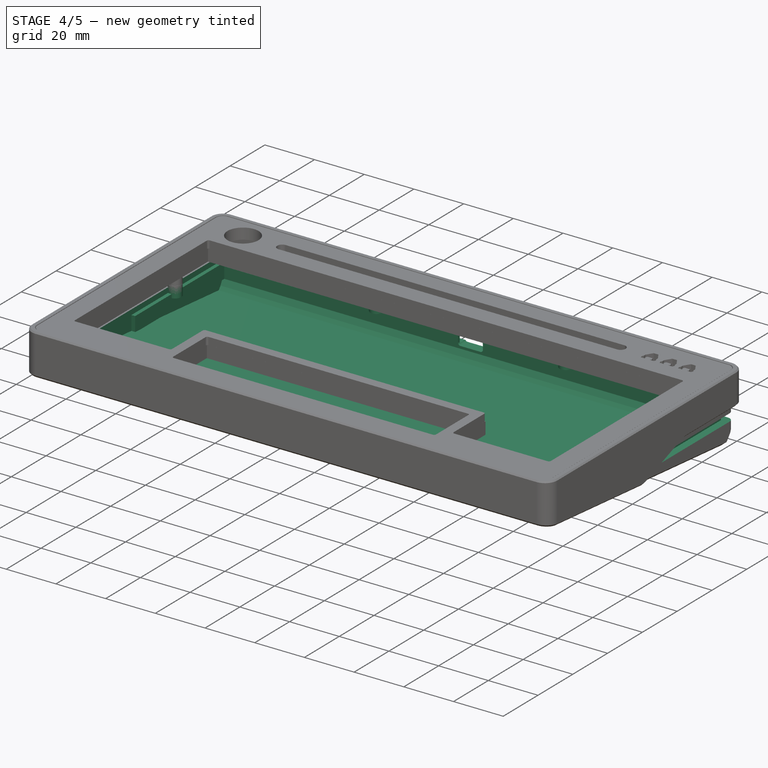
[diagram: stage 4 of 5 — iso view after this stage's code; geometry added in this stage tinted green]
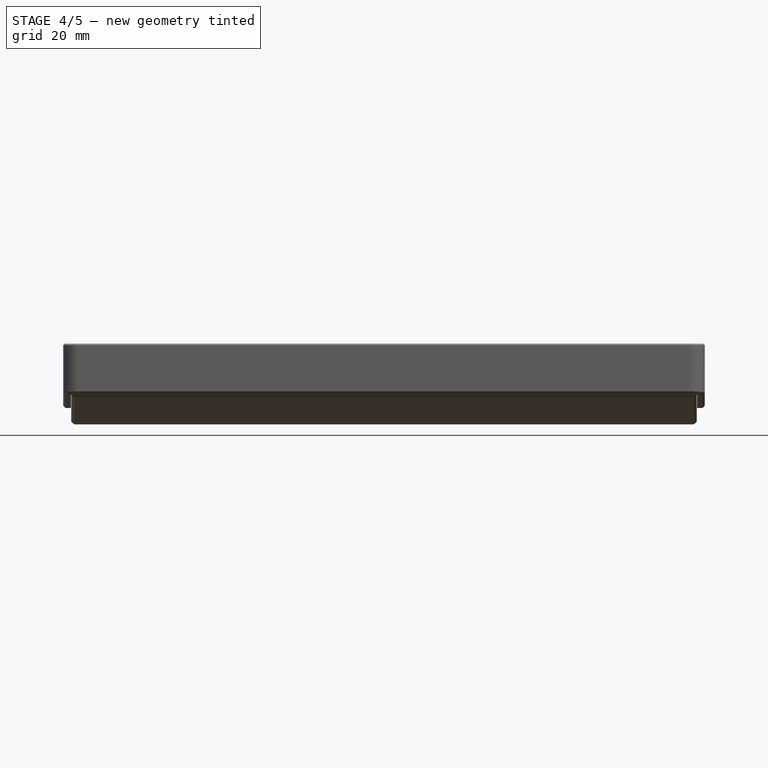
[diagram: stage 4 of 5 — front view after this stage's code; geometry added in this stage tinted green]
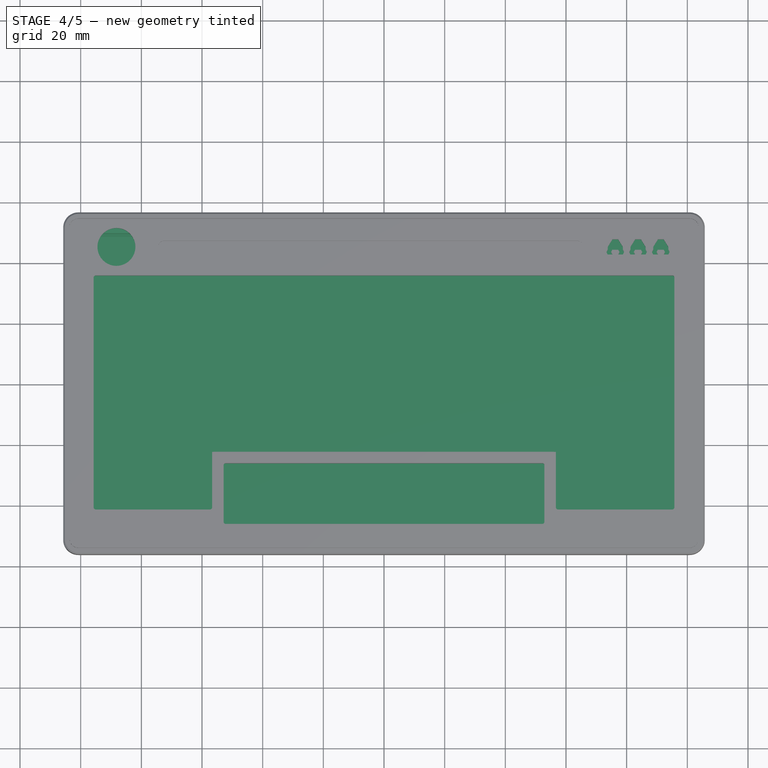
[diagram: stage 4 of 5 — top view after this stage's code; geometry added in this stage tinted green]
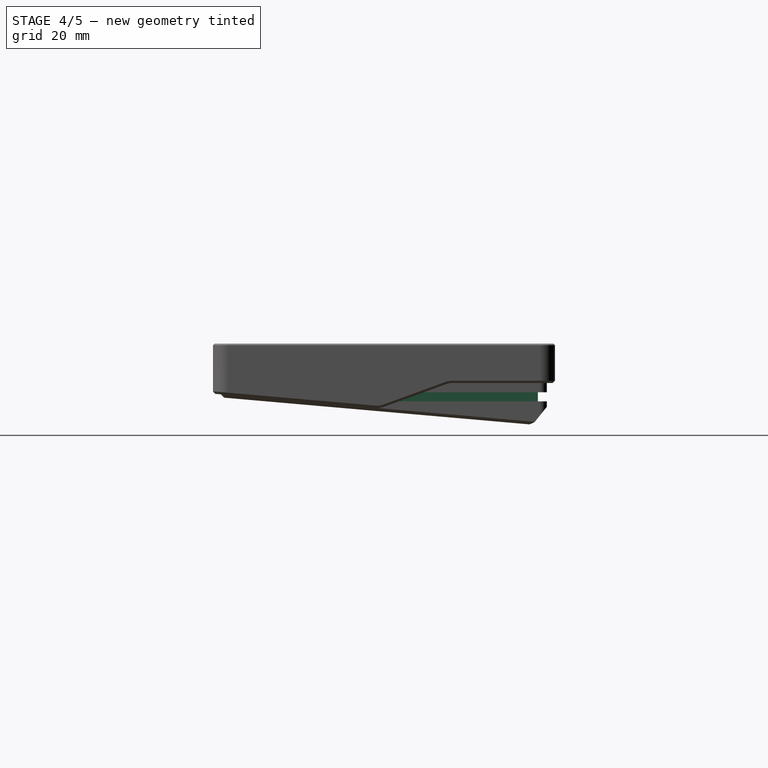
[diagram: stage 4 of 5 — right view after this stage's code; geometry added in this stage tinted green]
FEATURE [Sketcher::SketchObject] Sketch017
  FullyConstrained = true
  MapMode = 5
  Placement = pos=(0,53.7125,-4.5) rot=(0,0.707107,0.707107;3.14159rad)
  Support = -> [Pocket011]
  expr: Constraints[23] = 1.6 + 1.75 + 1.7
  sketch-geometry (11):
    g0: ArcOfCircle CenterX=-4 CenterY=-4.05 CenterZ=0 NormalX=0 NormalY=0 NormalZ=1 AngleXU=0 Radius=1 StartAngle=1.5708 EndAngle=3.14159
    g1: LineSegment StartX=-4 StartY=-3.05 StartZ=0 EndX=4 EndY=-3.05 EndZ=0
    g2: ArcOfCircle CenterX=4 CenterY=-4.05 CenterZ=0 NormalX=0 NormalY=0 NormalZ=1 AngleXU=0 Radius=1 StartAngle=5e-16 EndAngle=1.5708
    g3: LineSegment StartX=5 StartY=-4.05 StartZ=0 EndX=5 EndY=-6.05 EndZ=0
    g4: ArcOfCircle CenterX=4 CenterY=-6.05 CenterZ=0 NormalX=0 NormalY=0 NormalZ=1 AngleXU=0 Radius=1 StartAngle=4.71239 EndAngle=6.28319
    g5: LineSegment StartX=4 StartY=-7.05 StartZ=0 EndX=-4 EndY=-7.05 EndZ=0
    g6: ArcOfCircle CenterX=-4 CenterY=-6.05 CenterZ=0 NormalX=0 NormalY=0 NormalZ=1 AngleXU=0 Radius=1 StartAngle=3.14159 EndAngle=4.71239
    g7: LineSegment StartX=-5 StartY=-6.05 StartZ=0 EndX=-5 EndY=-4.05 EndZ=0
    g8: GeomPoint X=-5 Y=-3.05 Z=0
    g9: GeomPoint X=5 Y=-7.05 Z=0
    g10: GeomPoint X=-5 Y=-5.05 Z=0
  constraints (24):
    c: Tangent(g0,g1) = 1.5708
    c: Tangent(g1,g2) = 1.5708
    c: Tangent(g2,g3) = 1.5708
    c: Tangent(g3,g4) = 1.5708
    c: Tangent(g4,g5) = 1.5708
    c: Tangent(g5,g6) = 1.5708
    c: Tangent(g6,g7) = 1.5708
    c: Tangent(g7,g0) = 1.5708
    c: Horizontal(g5)
    c: Vertical(g3)
    c: Vertical(g7)
    c: Equal(g0,g2)
    c: Equal(g2,g4)
    c: Equal(g4,g6)
    c: PointOnObject(g8,g1)
    c: PointOnObject(g8,g7)
    c: PointOnObject(g9,g3)
    c: PointOnObject(g9,g5)
    c: DistanceX(g0,g2) = 10
    c: DistanceY(g4,g1) = 4
    c: Radius(g4) = 1
    c: Symmetric(g1,g0,g-2)
    c: Symmetric(g7,g7,g10)
    c: DistanceY(g10,g-1) = 5.05
FEATURE [PartDesign::Pocket] Pocket012  label="add usb hole"
  BaseFeature = -> Pocket011
  Direction = (0,-1,2e-16)
  Length = 5
  Length2 = 5
  Placement = pos=(0,0,-4.5) rot=(0,0,1;0rad)
  Profile = -> Sketch017
  ReferenceAxis = -> Sketch017 [N_Axis]
  Type = 0
FEATURE [PartDesign::Chamfer] Chamfer  label="Chamfer bottom"
  Angle = 45
  Base = -> Pocket012 [Edge13,Edge18]
  BaseFeature = -> Pocket012
  ChamferType = 0
  FlipDirection = false
  Placement = pos=(0,0,-4.5) rot=(0,0,1;0rad)
  Size = 1
  Size2 = 1
  SupportTransform = false
  UseAllEdges = false
FEATURE [Sketcher::SketchObject] Sketch018
  ExternalGeometry = -> [Chamfer]
  FullyConstrained = false
  MapMode = 5
  Placement = pos=(0,53.7125,-4.5) rot=(0,0.707107,0.707107;3.14159rad)
  Support = -> [Chamfer]
  sketch-geometry (14):
    g0: LineSegment StartX=5 StartY=-4.05 StartZ=0 EndX=97.5 EndY=-4.05 EndZ=0
    g1: ArcOfCircle CenterX=97.5 CenterY=-4.32058 CenterZ=0 NormalX=0 NormalY=0 NormalZ=1 AngleXU=0 Radius=0.270583 StartAngle=-9e-16 EndAngle=1.5708
    g2: LineSegment StartX=97.7706 StartY=-4.32058 StartZ=0 EndX=97.7706 EndY=-5.77942 EndZ=0
    g3: ArcOfCircle CenterX=97.5 CenterY=-5.77942 CenterZ=0 NormalX=0 NormalY=0 NormalZ=1 AngleXU=0 Radius=0.270583 StartAngle=4.71239 EndAngle=6.28319
    g4: LineSegment StartX=97.5 StartY=-6.05 StartZ=0 EndX=5 EndY=-6.05 EndZ=0
    g5: GeomPoint X=97.7706 Y=-6.05 Z=0
    g6: ArcOfCircle CenterX=-97.5 CenterY=-4.55 CenterZ=0 NormalX=0 NormalY=0 NormalZ=1 AngleXU=0 Radius=0.5 StartAngle=1.5708 EndAngle=3.14159
    g7: LineSegment StartX=-97.5 StartY=-4.05 StartZ=0 EndX=-5 EndY=-4.05 EndZ=0
    g8: LineSegment StartX=-5 StartY=-6.05 StartZ=0 EndX=-97.5 EndY=-6.05 EndZ=0
    g9: ArcOfCircle CenterX=-97.5 CenterY=-5.55 CenterZ=0 NormalX=0 NormalY=0 NormalZ=1 AngleXU=0 Radius=0.5 StartAngle=3.14159 EndAngle=4.71239
    g10: LineSegment StartX=-98 StartY=-5.55 StartZ=0 EndX=-98 EndY=-4.55 EndZ=0
    g11: GeomPoint X=-98 Y=-4.05 Z=0
    g12: LineSegment StartX=-5 StartY=-4.05 StartZ=0 EndX=-5 EndY=-6.05 EndZ=0
    g13: LineSegment StartX=5 StartY=-4.05 StartZ=0 EndX=5 EndY=-6.05 EndZ=0
  constraints (32):
    c: Tangent(g0,g1) = 1.5708
    c: Tangent(g1,g2) = 1.5708
    c: Tangent(g2,g3) = 1.5708
    c: Tangent(g3,g4) = 1.5708
    c: Horizontal(g0)
    c: Horizontal(g4)
    c: Vertical(g2)
    c: Equal(g1,g3)
    c: PointOnObject(g5,g2)
    c: PointOnObject(g5,g4)
    c: Tangent(g6,g7) = 1.5708
    c: Tangent(g8,g9) = 1.5708
    c: Tangent(g9,g10) = 1.5708
    c: Tangent(g10,g6) = 1.5708
    c: Horizontal(g8)
    c: Vertical(g10)
    c: PointOnObject(g11,g7)
    c: PointOnObject(g11,g10)
    c: Symmetric(g6,g0,g-2)
    c: DistanceX(g6,g-1) = 98
    c: Coincident(g12,g7)
    c: Coincident(g12,g8)
    c: Vertical(g12)
    c: Coincident(g13,g0)
    c: Coincident(g13,g4)
    c: Vertical(g13)
    c: DistanceY(g12,g12) = 2
    c: Symmetric(g7,g0,g-2)
    c: Equal(g12,g13)
    c: Equal(g6,g9)
    c: Radius(g9) = 0.5
    c: Coincident(g7,g-3)
FEATURE [PartDesign::Pocket] Pocket013  label="add accent cutout"
  BaseFeature = -> Chamfer
  Direction = (0,-1,2e-16)
  Length = 0.001
  Length2 = 5
  Placement = pos=(0,0,-4.5) rot=(0,0,1;0rad)
  Profile = -> Sketch018
  ReferenceAxis = -> Sketch018 [N_Axis]
  Type = 0
FEATURE [PartDesign::Plane] DatumPlane007
  AttachmentOffset = pos=(0,0,-11.05) rot=(0,0,1;0rad)
  Length = 235.966
  MapMode = 2
  Placement = pos=(0,0,-11.05) rot=(0,0,1;0rad)
  ResizeMode = 0
  Support = -> [XY_Plane141]
  Width = 137.191
  expr: .AttachmentOffset.Base.z = -11.05mm
FEATURE [Sketcher::SketchObject] Sketch019
  ExternalGeometry = -> [Pocket013]
  FullyConstrained = true
  MapMode = 5
  Placement = pos=(0,0,-11.05) rot=(0,0,1;0rad)
  Support = -> [DatumPlane007]
  expr: Constraints[9] = <<vals_Case>>.acrylLayerHeight
  sketch-geometry (10):
    g0: ArcOfCircle CenterX=-100.8 CenterY=51.4125 CenterZ=0 NormalX=0 NormalY=0 NormalZ=1 AngleXU=0 Radius=2.3 StartAngle=1.5708 EndAngle=3.14159
    g1: LineSegment StartX=103.1 StartY=0 StartZ=0 EndX=100.1 EndY=0 EndZ=0
    g2: LineSegment StartX=100.1 StartY=50.7125 StartZ=0 EndX=-100.1 EndY=50.7125 EndZ=0
    g3: LineSegment StartX=-100.1 StartY=0 StartZ=0 EndX=-103.1 EndY=0 EndZ=0
    g4: LineSegment StartX=-103.1 StartY=0 StartZ=0 EndX=-103.1 EndY=51.4125 EndZ=0
    g5: LineSegment StartX=-100.8 StartY=53.7125 StartZ=0 EndX=100.8 EndY=53.7125 EndZ=0
    g6: LineSegment StartX=100.1 StartY=50.7125 StartZ=0 EndX=100.1 EndY=0 EndZ=0
    g7: LineSegment StartX=-100.1 StartY=0 StartZ=0 EndX=-100.1 EndY=50.7125 EndZ=0
    g8: LineSegment StartX=103.1 StartY=0 StartZ=0 EndX=103.1 EndY=51.4125 EndZ=0
    g9: ArcOfCircle CenterX=100.8 CenterY=51.4125 CenterZ=0 NormalX=0 NormalY=0 NormalZ=1 AngleXU=0 Radius=2.3 StartAngle=0 EndAngle=1.5708
  constraints (26):
    c: Coincident(g0,g-3)
    c: Coincident(g0,g-3)
    c: Horizontal(g2)
    c: Horizontal(g3)
    c: Coincident(g3,g4)
    c: Coincident(g4,g0)
    c: Vertical(g4)
    c: Tangent(g0,g5) = 1.5708
    c: Horizontal(g1)
    c: DistanceX(g1,g1) = 3
    c: Symmetric(g1,g3,g-2)
    c: Coincident(g6,g1)
    c: Vertical(g6)
    c: Coincident(g7,g3)
    c: Vertical(g7)
    c: Coincident(g6,g2)
    c: Coincident(g7,g2)
    c: Coincident(g8,g1)
    c: Vertical(g8)
    c: Coincident(g9,g-4)
    c: Coincident(g9,g-4)
    c: Coincident(g9,g8)
    c: Coincident(g5,g9)
    c: Coincident(g8,g-4)
    c: PointOnObject(g1,g-1)
    c: DistanceY(g2,g5) = 3
FEATURE [PartDesign::Pocket] Pocket014  label="add acryl cutout"
  BaseFeature = -> Pocket013
  Direction = (0,0,-1)
  Length = 3
  Length2 = 5
  Placement = pos=(0,0,-4.5) rot=(0,0,1;0rad)
  Profile = -> Sketch019
  ReferenceAxis = -> Sketch019 [N_Axis]
  Reversed = true
  Type = 0
FEATURE [PartDesign::Plane] DatumPlane008
  AttachmentOffset = pos=(0,0,-99.1) rot=(0,0,1;0rad)
  Length = 122.083
  MapMode = 5
  Placement = pos=(-99.1,2.2e-14,-2.2e-14) rot=(0.57735,0.57735,0.57735;2.0944rad)
  ResizeMode = 0
  Support = -> [YZ_Plane141]
  Width = 64.6578
  expr: .AttachmentOffset.Base.z = -<<vals_Case>>.caseWidth / 2 + <<vals_Case>>.wallThickness + <<vals_Case>>.acrylSafety + <<vals_Case>>.acrylLayerHeight + <<vals_Case>>.innerWallThickness - 0.5
FEATURE [Sketcher::SketchObject] Sketch021
  ExternalGeometry = -> [Pocket014]
  FullyConstrained = true
  MapMode = 5
  Placement = pos=(-99.1,2.2e-14,-2.2e-14) rot=(0.57735,0.57735,0.57735;2.0944rad)
  Support = -> [DatumPlane008]
  expr: Constraints[12] = <<vals_Case>>.wallThickness - 0.5
  expr: Constraints[15] = <<vals_Case>>.midSectionHeight
  expr: Constraints[4] = 1
  expr: Constraints[6] = <<vals_Case>>.wallThickness - 0.5
  sketch-geometry (6):
    g0: LineSegment StartX=-51.7125 StartY=-7.92544 StartZ=0 EndX=48.6666 EndY=-16.7075 EndZ=0
    g1: LineSegment StartX=-51.7125 StartY=-7.92544 StartZ=0 EndX=-51.7125 EndY=8.5 EndZ=0
    g2: LineSegment StartX=49.7125 StartY=8.5 StartZ=0 EndX=-51.7125 EndY=8.5 EndZ=0
    g3: LineSegment StartX=48.6666 StartY=-16.7075 StartZ=0 EndX=49.7125 EndY=-15.4019 EndZ=0
    g4: LineSegment StartX=49.7125 StartY=-15.4019 StartZ=0 EndX=49.7125 EndY=8.5 EndZ=0
    g5: LineSegment StartX=49.1896 StartY=-16.0547 StartZ=0 EndX=50.3602 EndY=-16.9925 EndZ=0
  constraints (18):
    c: Coincident(g1,g0)
    c: Vertical(g1)
    c: Coincident(g2,g1)
    c: Horizontal(g2)
    c: DistanceX(g2,g-3) = 1
    c: Parallel(g0,g-5)
    c: DistanceY(g-5,g0) = 2
    c: Coincident(g3,g0)
    c: Coincident(g4,g3)
    c: Vertical(g4)
    c: Coincident(g4,g2)
    c: Parallel(g3,g-4)
    c: DistanceX(g-6,g1) = 2
    c: PointOnObject(g5,g-4)
    c: Distance(g5) = 1.5
    c: DistanceY(g-1,g2) = 8.5
    c: Symmetric(g3,g3,g5)
    c: Perpendicular(g-4,g5)
FEATURE [PartDesign::Pocket] Pocket016  label="remove excess material001"
  BaseFeature = -> Pocket014
  Direction = (-1,1e-16,-1e-16)
  Length = 198.2
  Length2 = 5
  Placement = pos=(0,0,-4.5) rot=(0,0,1;0rad)
  Profile = -> Sketch021
  ReferenceAxis = -> Sketch021 [N_Axis]
  Reversed = true
  Type = 0
  expr: Length = (-<<vals_Case>>.caseWidth / 2 + <<vals_Case>>.wallThickness + <<vals_Case>>.acrylSafety + <<vals_Case>>.acrylLayerHeight + <<vals_Case>>.innerWallThickness - 0.5) * -2
FEATURE [PartDesign::Plane] DatumPlane009
  AttachmentOffset = pos=(0,0,-100.6) rot=(0,0,1;0rad)
  Length = 122.083
  MapMode = 5
  Placement = pos=(-100.6,2.23e-14,-2.23e-14) rot=(0.57735,0.57735,0.57735;2.0944rad)
  ResizeMode = 0
  Support = -> [YZ_Plane141]
  Width = 64.6578
  expr: .AttachmentOffset.Base.z = -<<vals_Case>>.caseWidth / 2 + <<vals_Case>>.wallThickness * 2 + <<vals_Case>>.acrylSafety
FEATURE [Sketcher::SketchObject] Sketch022
  ExternalGeometry = -> [Pocket016]
  FullyConstrained = true
  MapMode = 5
  Placement = pos=(-100.6,2.23e-14,-2.23e-14) rot=(0.57735,0.57735,0.57735;2.0944rad)
  Support = -> [DatumPlane009]
  expr: Constraints[12] = <<vals_Case>>.innerWallThickness
  expr: Constraints[14] = <<vals_Case>>.innerWallThickness
  expr: Constraints[21] = <<vals_Case>>.innerWallThickness
  expr: Constraints[22] = <<vals_Case>>.innerWallThickness
  expr: Constraints[25] = <<vals_Case>>.caseHeight / 2 - <<vals_Case>>.wallThickness * 2 - <<vals_Case>>.acrylSafety
  sketch-geometry (10):
    g0: LineSegment StartX=-51.7125 StartY=1.5 StartZ=0 EndX=-51.7125 EndY=-7.92544 EndZ=0
    g1: LineSegment StartX=48.6666 StartY=-16.7075 StartZ=0 EndX=49.7125 EndY=-15.4019 EndZ=0
    g2: LineSegment StartX=49.7125 StartY=-15.4019 StartZ=0 EndX=51.2125 EndY=-12.55 EndZ=0
    g3: LineSegment StartX=51.2125 StartY=-12.55 StartZ=0 EndX=1.14642 EndY=-12.55 EndZ=0
    g4: LineSegment StartX=-1.5 StartY=-6.55 StartZ=0 EndX=51.2125 EndY=-6.55 EndZ=0
    g5: LineSegment StartX=51.2125 StartY=-6.55 StartZ=0 EndX=51.2125 EndY=1.5 EndZ=0
    g6: LineSegment StartX=51.2125 StartY=1.5 StartZ=0 EndX=-51.7125 EndY=1.5 EndZ=0
    g7: LineSegment StartX=-1.5 StartY=-6.55 StartZ=0 EndX=-1.5 EndY=-12.3185 EndZ=0
    g8: LineSegment StartX=1.14642 StartY=-12.55 StartZ=0 EndX=48.6666 EndY=-16.7075 EndZ=0
    g9: LineSegment StartX=-51.7125 StartY=-7.92544 StartZ=0 EndX=-1.5 EndY=-12.3185 EndZ=0
  constraints (27):
    c: PointOnObject(g0,g-9)
    c: Coincident(g0,g-9)
    c: Coincident(g1,g-5)
    c: Coincident(g2,g1)
    c: Coincident(g3,g2)
    c: Horizontal(g3)
    c: Horizontal(g4)
    c: Coincident(g5,g4)
    c: Vertical(g5)
    c: Coincident(g6,g5)
    c: Horizontal(g6)
    c: Coincident(g0,g6)
    c: DistanceY(g3,g-8) = 1.5
    c: Vertical(g7)
    c: DistanceX(g7,g-8) = 1.5
    c: PointOnObject(g7,g-3)
    c: PointOnObject(g3,g-3)
    c: Coincident(g8,g3)
    c: Coincident(g8,g1)
    c: Coincident(g-4,g1)
    c: Coincident(g4,g7)
    c: DistanceY(g-8,g4) = 1.5
    c: DistanceY(g-1,g0) = 1.5
    c: Coincident(g9,g0)
    c: Coincident(g9,g7)
    c: DistanceX(g-1,g5) = 51.2125
    c: Vertical(g2,g4)
FEATURE [PartDesign::Pocket] Pocket017  label="remove excess material002"
  BaseFeature = -> Pocket016
  Direction = (-1,1e-16,-1e-16)
  Length = 201.2
  Length2 = 5
  Placement = pos=(0,0,-4.5) rot=(0,0,1;0rad)
  Profile = -> Sketch022
  ReferenceAxis = -> Sketch022 [N_Axis]
  Reversed = true
  Type = 0
  expr: Length = <<vals_Case>>.caseWidth - 4 * <<vals_Case>>.wallThickness - 2 * <<vals_Case>>.acrylSafety
FEATURE [Sketcher::SketchObject] Sketch025
  FullyConstrained = true
  MapMode = 5
  Placement = pos=(0,0,-4.5) rot=(0,0,1;0rad)
  Support = -> [DatumPlane005]
  expr: Constraints[13] = <<vals_Case>>.caseHeight / 2 - <<vals_Case>>.wallThickness - <<vals_Case>>.acrylSafety - <<vals_Case>>.innerWallThickness
  expr: Constraints[14] = <<vals_Case>>.caseWidth / 2 - 2 * <<vals_Case>>.wallThickness - <<vals_Case>>.acrylSafety - 1
  expr: Constraints[16] = 5
  expr: Constraints[17] = <<vals_Case>>.caseWidth / 2 - <<vals_Case>>.wallThickness - <<vals_Case>>.acrylSafety - <<vals_Case>>.innerWallThickness
  expr: Constraints[18] = <<vals_Case>>.caseHeight / 2 - <<vals_Case>>.wallThickness * 2 - <<vals_Case>>.acrylSafety
  expr: Constraints[20] = 15
  sketch-geometry (10):
    g0: LineSegment StartX=69.6 StartY=51.2125 StartZ=0 EndX=101.6 EndY=51.2125 EndZ=0
    g1: LineSegment StartX=101.6 StartY=51.2125 StartZ=0 EndX=101.6 EndY=37.6365 EndZ=0
    g2: LineSegment StartX=101.6 StartY=37.6365 StartZ=0 EndX=97.6 EndY=37.6365 EndZ=0
    g3: LineSegment StartX=-99.6 StartY=52.2125 StartZ=0 EndX=-69.6 EndY=52.2125 EndZ=0
    g4: LineSegment StartX=-69.6 StartY=52.2125 StartZ=0 EndX=-69.6 EndY=47.2125 EndZ=0
    g5: LineSegment StartX=-69.6 StartY=47.2125 StartZ=0 EndX=-99.6 EndY=47.2125 EndZ=0
    g6: LineSegment StartX=-99.6 StartY=47.2125 StartZ=0 EndX=-99.6 EndY=52.2125 EndZ=0
    g7: LineSegment StartX=97.6 StartY=37.6365 StartZ=0 EndX=97.6 EndY=48.7125 EndZ=0
    g8: LineSegment StartX=97.6 StartY=48.7125 StartZ=0 EndX=69.6 EndY=48.7125 EndZ=0
    g9: LineSegment StartX=69.6 StartY=48.7125 StartZ=0 EndX=69.6 EndY=51.2125 EndZ=0
  constraints (30):
    c: Coincident(g0,g1)
    c: Coincident(g1,g2)
    c: Horizontal(g0)
    c: Horizontal(g2)
    c: Vertical(g1)
    c: Coincident(g3,g4)
    c: Coincident(g4,g5)
    c: Coincident(g5,g6)
    c: Coincident(g6,g3)
    c: Horizontal(g3)
    c: Horizontal(g5)
    c: Vertical(g4)
    c: Vertical(g6)
    c: DistanceY(g-1,g3) = 52.2125
    c: DistanceX(g3,g-1) = 99.6
    c: DistanceX(g3,g3) = 30
    c: DistanceY(g4,g4) = 5
    c: DistanceX(g-1,g0) = 101.6
    c: DistanceY(g-1,g0) = 51.2125
    c: DistanceX(g2,g2) = 4
    c: DistanceY(g1,g1) = 13.576
    c: Coincident(g2,g7)
    c: Vertical(g7)
    c: Coincident(g7,g8)
    c: Horizontal(g8)
    c: Coincident(g8,g9)
    c: Coincident(g0,g9)
    c: Vertical(g9)
    c: DistanceY(g9,g9) = 2.5
    c: DistanceX(g0,g0) = 32
FEATURE [PartDesign::Pocket] Pocket019  label="remove excess material003"
  BaseFeature = -> Pocket017
  Direction = (0,0,-1)
  Length = 0
  Length2 = 5
  Placement = pos=(0,0,-4.5) rot=(0,0,1;0rad)
  Profile = -> Sketch025
  ReferenceAxis = -> Sketch025 [N_Axis]
  Type = 3
  UpToFace = -> Pocket017 [Face6]
FEATURE [PartDesign::Pad] Pad006  label="buffer up"
  BaseFeature = -> Pocket019
  Direction = (1,0,0)
  Length = 0.5
  Length2 = 10
  Placement = pos=(0,0,-4.5) rot=(0,0,1;0rad)
  Profile = -> Pocket019 [Face29]
  Type = 0
FEATURE [Sketcher::SketchObject] Sketch026
  FullyConstrained = true
  MapMode = 5
  Placement = pos=(2e-16,-2e-16,-6.55) rot=(0,0,1;0rad)
  Support = -> [Pad006]
  expr: Constraints[0] = <<vals_Case>>.magOuterRad
  expr: Constraints[14] = <<vals_Case>>.caseWidth / 2 - <<vals_Case>>.wallThickness - <<vals_Case>>.acrylSafety - <<vals_Case>>.magOuterRad - <<vals_Case>>.magOuterOffset
  expr: Constraints[15] = <<vals_Case>>.caseHeight / 2 - <<vals_Case>>.wallThickness - <<vals_Case>>.acrylSafety - <<vals_Case>>.magOuterRad - <<vals_Case>>.magOuterOffset
  expr: Constraints[18] = <<vals_Case>>.magRad
  expr: Constraints[19] = <<vals_Case>>.spacing * 2
  expr: Constraints[21] = <<vals_Case>>.caseHeight / 2 - <<vals_Case>>.wallThickness - <<vals_Case>>.acrylSafety - <<vals_Case>>.magOuterRad - <<vals_Case>>.magOuterOffset
  sketch-geometry (9):
    g0: Circle CenterX=-99.55 CenterY=22 CenterZ=0 NormalX=0 NormalY=0 NormalZ=1 AngleXU=0 Radius=2.55
    g1: Circle CenterX=-99.55 CenterY=-50.1625 CenterZ=0 NormalX=0 NormalY=0 NormalZ=1 AngleXU=0 Radius=2.55
    g2: Circle CenterX=0 CenterY=-50.1625 CenterZ=0 NormalX=0 NormalY=0 NormalZ=1 AngleXU=0 Radius=2.55
    g3: Circle CenterX=99.55 CenterY=-50.1625 CenterZ=0 NormalX=0 NormalY=0 NormalZ=1 AngleXU=0 Radius=2.55
    g4: Circle CenterX=99.55 CenterY=22 CenterZ=0 NormalX=0 NormalY=0 NormalZ=1 AngleXU=0 Radius=2.55
    g5: Circle CenterX=38.1 CenterY=50.1625 CenterZ=0 NormalX=0 NormalY=0 NormalZ=1 AngleXU=0 Radius=2.55
    g6: Circle CenterX=-38.1 CenterY=50.1625 CenterZ=0 NormalX=0 NormalY=0 NormalZ=1 AngleXU=0 Radius=2.55
    g7: Circle CenterX=-99.55 CenterY=-50.1625 CenterZ=0 NormalX=0 NormalY=0 NormalZ=1 AngleXU=0 Radius=1.55
    g8: Circle CenterX=-38.1 CenterY=50.1625 CenterZ=0 NormalX=0 NormalY=0 NormalZ=1 AngleXU=0 Radius=1.55
  constraints (22):
    c: Radius(g0) = 2.55
    c: Equal(g0,g6)
    c: Equal(g6,g1)
    c: Equal(g1,g3)
    c: Equal(g3,g4)
    c: Equal(g4,g5)
    c: Symmetric(g3,g1,g-2)
    c: PointOnObject(g2,g-2)
    c: Horizontal(g2,g1)
    c: Coincident(g7,g1)
    c: Radius(g7) = 1.55
    c: Vertical(g0,g1)
    c: Symmetric(g0,g4,g-2)
    c: DistanceY(g-1,g0) = 22
    c: DistanceX(g1,g-1) = 99.55
    c: DistanceY(g1,g-1) = 50.1625
    c: Equal(g2,g3)
    c: Coincident(g8,g6)
    c: Radius(g8) = 1.55
    c: DistanceX(g6,g-1) = 38.1
    c: Symmetric(g5,g6,g-2)
    c: DistanceY(g-1,g6) = 50.1625
FEATURE [PartDesign::Pad] Pad007  label="magnetholder"
  BaseFeature = -> Pad006
  Direction = (-1e-16,1e-16,1)
  Length = 3
  Length2 = 10
  Placement = pos=(0,0,-4.5) rot=(0,0,1;0rad)
  Profile = -> Sketch026
  ReferenceAxis = -> Sketch026 [N_Axis]
  Type = 0
FEATURE [PartDesign::Pad] Pad008  label="magnetholder depth"
  BaseFeature = -> Pad007
  Direction = (-1e-16,1e-16,1)
  Length = 1.5
  Length2 = 10
  Placement = pos=(0,0,-4.5) rot=(0,0,1;0rad)
  Profile = -> Sketch026
  ReferenceAxis = -> Sketch026 [N_Axis]
  Reversed = true
  Type = 0
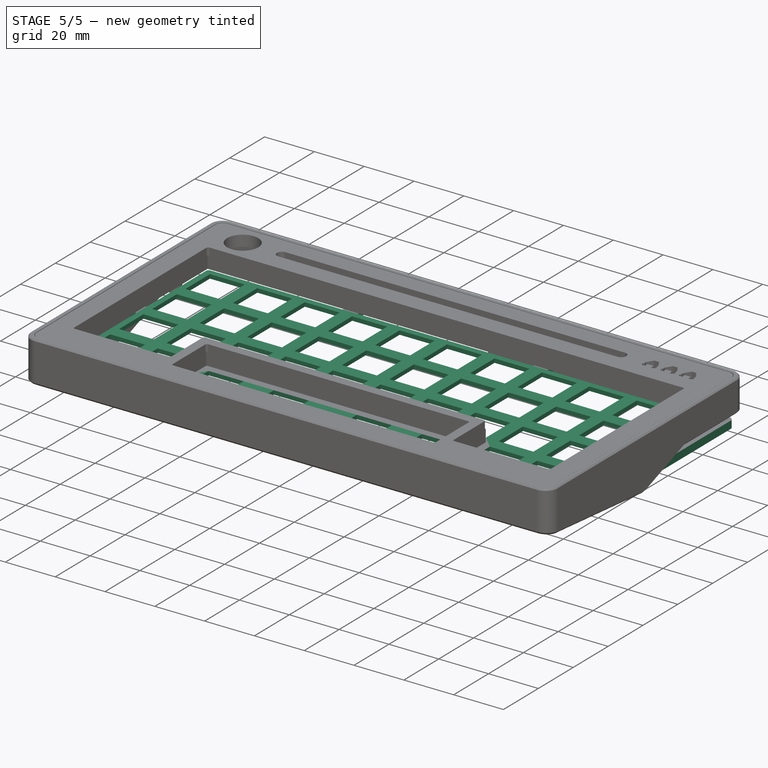
[diagram: stage 5 of 5 — iso view after this stage's code; geometry added in this stage tinted green]
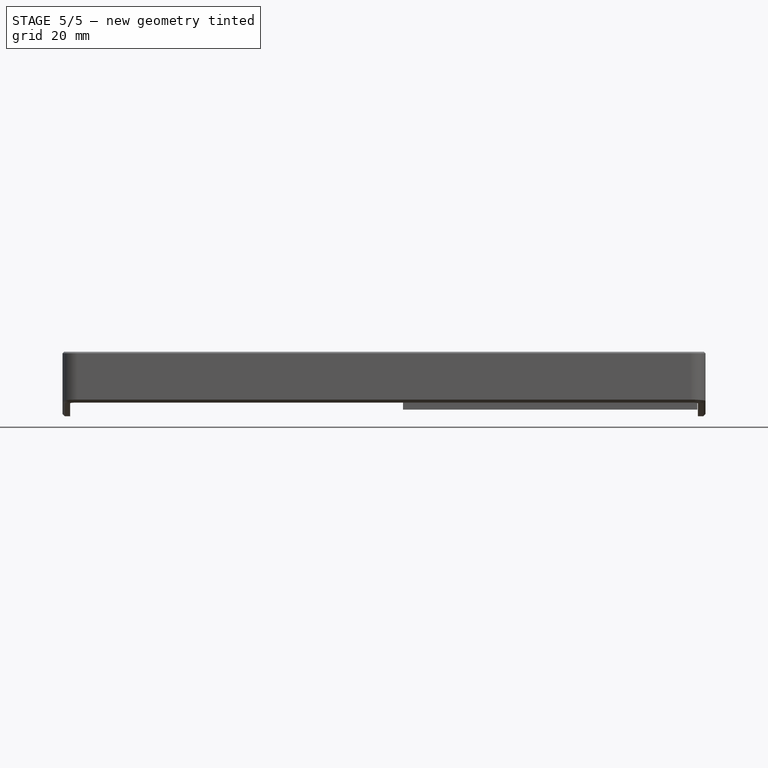
[diagram: stage 5 of 5 — front view after this stage's code; geometry added in this stage tinted green]
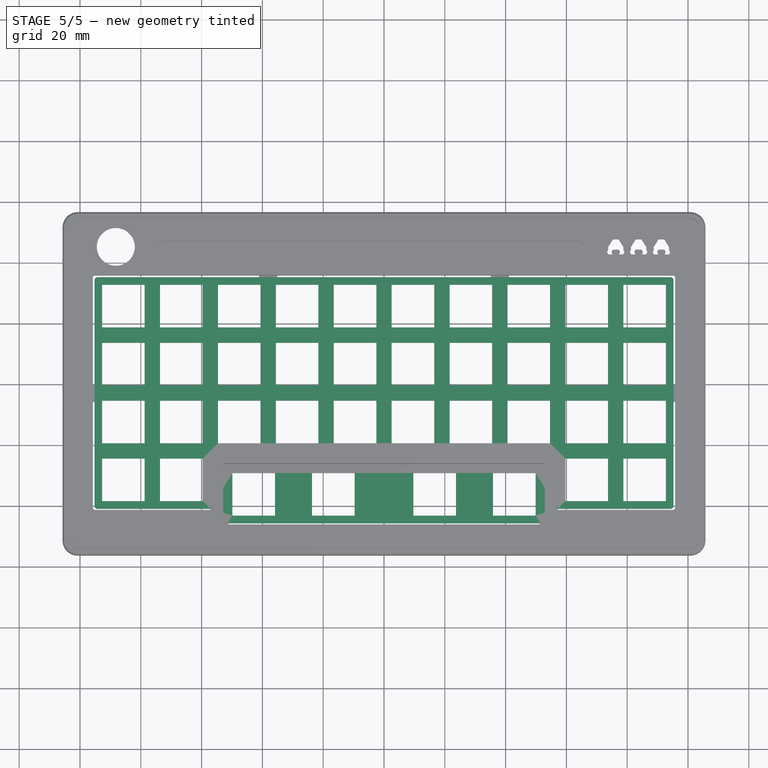
[diagram: stage 5 of 5 — top view after this stage's code; geometry added in this stage tinted green]
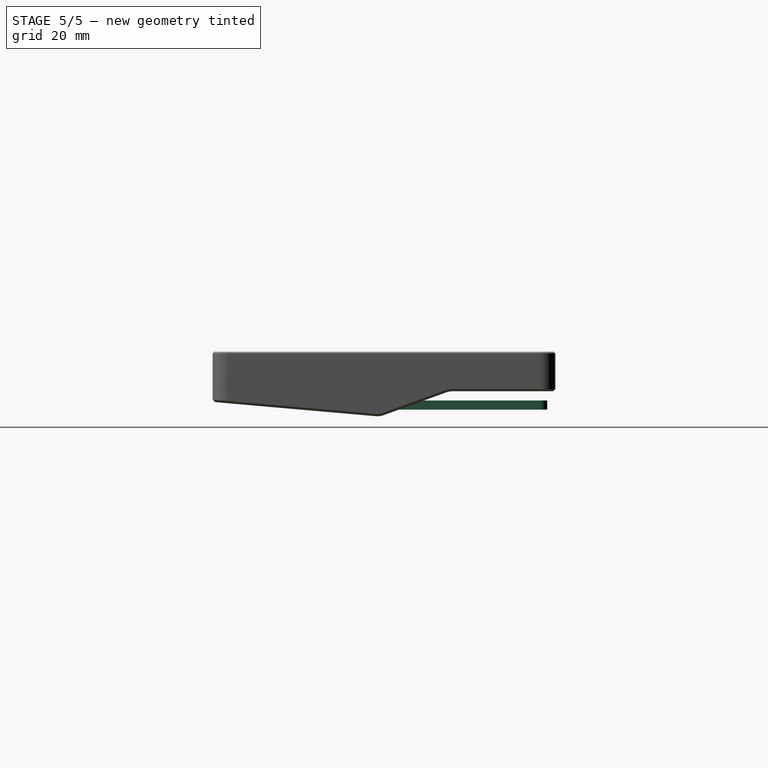
[diagram: stage 5 of 5 — right view after this stage's code; geometry added in this stage tinted green]
FEATURE [PartDesign::Plane] DatumPlane001
  AttachmentOffset = pos=(0,0,-1.6) rot=(0,0,1;0rad)
  Length = 232.318
  MapMode = 5
  Placement = pos=(0,0,-1.6) rot=(0,0,1;0rad)
  ResizeMode = 0
  Support = -> [XY_Plane002]
  Width = 122.78
  expr: .AttachmentOffset.Base.z = -<<vals_Case>>.plateThickness
FEATURE [Sketcher::SketchObject] Sketch008
  FullyConstrained = true
  MapMode = 5
  Placement = pos=(0,0,-1.6) rot=(0,0,1;0rad)
  Support = -> [DatumPlane001]
  expr: Constraints[13] = <<vals_Case>>.spacing * 10
  expr: Constraints[24] = <<vals_Case>>.spacing * 4
  expr: Constraints[25] = <<vals_Case>>.spacing * 2
  expr: Constraints[26] = <<vals_Case>>.spacing * 0.25
  expr: Constraints[30] = <<vals_Case>>.caseHeight / 2 - <<vals_Case>>.border - <<vals_Case>>.topExtr - <<vals_Case>>.keysafety
  sketch-geometry (12):
    g0: ArcOfCircle CenterX=-94.25 CenterY=34.1 CenterZ=0 NormalX=0 NormalY=0 NormalZ=1 AngleXU=0 Radius=1 StartAngle=1.5708 EndAngle=3.14159
    g1: LineSegment StartX=-94.25 StartY=35.1 StartZ=0 EndX=94.25 EndY=35.1 EndZ=0
    g2: ArcOfCircle CenterX=94.25 CenterY=34.1 CenterZ=0 NormalX=0 NormalY=0 NormalZ=1 AngleXU=0 Radius=1 StartAngle=-2.7e-15 EndAngle=1.5708
    g3: LineSegment StartX=95.25 StartY=34.1 StartZ=0 EndX=95.25 EndY=-40.1 EndZ=0
    g4: ArcOfCircle CenterX=94.25 CenterY=-40.1 CenterZ=0 NormalX=0 NormalY=0 NormalZ=1 AngleXU=0 Radius=1 StartAngle=4.71239 EndAngle=6.28319
    g5: ArcOfCircle CenterX=-94.25 CenterY=-40.1 CenterZ=0 NormalX=0 NormalY=0 NormalZ=1 AngleXU=0 Radius=1 StartAngle=3.14159 EndAngle=4.71239
    g6: LineSegment StartX=-95.25 StartY=-40.1 StartZ=0 EndX=-95.25 EndY=34.1 EndZ=0
    g7: LineSegment StartX=-94.25 StartY=-41.1 StartZ=0 EndX=-57.15 EndY=-41.1 EndZ=0
    g8: LineSegment StartX=-57.15 StartY=-41.1 StartZ=0 EndX=-57.15 EndY=-45.8625 EndZ=0
    g9: LineSegment StartX=-57.15 StartY=-45.8625 StartZ=0 EndX=57.15 EndY=-45.8625 EndZ=0
    g10: LineSegment StartX=57.15 StartY=-45.8625 StartZ=0 EndX=57.15 EndY=-41.1 EndZ=0
    g11: LineSegment StartX=57.15 StartY=-41.1 StartZ=0 EndX=94.25 EndY=-41.1 EndZ=0
  constraints (31):
    c: Tangent(g0,g1) = 1.5708
    c: Tangent(g1,g2) = 1.5708
    c: Tangent(g2,g3) = 1.5708
    c: Tangent(g3,g4) = 1.5708
    c: Tangent(g5,g6) = 1.5708
    c: Tangent(g6,g0) = 1.5708
    c: Horizontal(g1)
    c: Vertical(g3)
    c: Vertical(g6)
    c: Equal(g0,g2)
    c: Equal(g2,g4)
    c: Equal(g4,g5)
    c: Radius(g2) = 1
    c: DistanceX(g0,g2) = 190.5
    c: Tangent(g5,g7) = -1.5708
    c: Coincident(g7,g8)
    c: Vertical(g8)
    c: Coincident(g8,g9)
    c: Horizontal(g9)
    c: Coincident(g9,g10)
    c: Vertical(g10)
    c: Coincident(g10,g11)
    c: Coincident(g11,g4)
    c: Horizontal(g11)
    c: DistanceY(g5,g0) = 76.2
    c: DistanceX(g5,g7) = 38.1
    c: DistanceY(g8,g8) = 4.7625
    c: Symmetric(g10,g7,g-2)
    c: Vertical(g4,g4)
    c: Symmetric(g3,g5,g-2)
    c: DistanceY(g0) = 35.1
FEATURE [PartDesign::Pad] Pad002  label="main shape"
  Direction = (0,0,1)
  Length = 1.6
  Length2 = 10
  Placement = pos=(0,0,-1.6) rot=(0,0,1;0rad)
  Profile = -> Sketch008
  ReferenceAxis = -> Sketch008 [N_Axis]
  Type = 0
  expr: Length = <<vals_Case>>.plateThickness
FEATURE [Sketcher::SketchObject] Sketch009
  FullyConstrained = true
  MapMode = 5
  Placement = pos=(0,0,-1.6) rot=(0,0,1;0rad)
  Support = -> [DatumPlane001]
  expr: Constraints[10] = <<vals_Case>>.caseHeight / 2 - <<vals_Case>>.topExtr - <<vals_Case>>.border - <<vals_Case>>.keysafety - (<<vals_Case>>.spacing - 14) / 2
  expr: Constraints[11] = <<vals_Case>>.caseWidth / 2 - <<vals_Case>>.border - <<vals_Case>>.keysafety - (<<vals_Case>>.spacing - 14) / 2
  sketch-geometry (4):
    g0: LineSegment StartX=-92.725 StartY=32.575 StartZ=0 EndX=-78.725 EndY=32.575 EndZ=0
    g1: LineSegment StartX=-78.725 StartY=32.575 StartZ=0 EndX=-78.725 EndY=18.575 EndZ=0
    g2: LineSegment StartX=-78.725 StartY=18.575 StartZ=0 EndX=-92.725 EndY=18.575 EndZ=0
    g3: LineSegment StartX=-92.725 StartY=18.575 StartZ=0 EndX=-92.725 EndY=32.575 EndZ=0
  constraints (12):
    c: Coincident(g0,g1)
    c: Coincident(g1,g2)
    c: Coincident(g2,g3)
    c: Coincident(g3,g0)
    c: Horizontal(g0)
    c: Horizontal(g2)
    c: Vertical(g1)
    c: Vertical(g3)
    c: Equal(g1,g0)
    c: DistanceY(g1,g1) = 14
    c: DistanceY(g-1,g0) = 32.575
    c: DistanceX(g2,g-1) = 92.725
FEATURE [PartDesign::Pocket] Pocket007  label="key top left"
  BaseFeature = -> Pad002
  Direction = (0,0,-1)
  Length = 1.6
  Length2 = 5
  Placement = pos=(0,0,-1.6) rot=(0,0,1;0rad)
  Profile = -> Sketch009
  ReferenceAxis = -> Sketch009 [N_Axis]
  Reversed = true
  Type = 0
  expr: Length = <<vals_Case>>.plateThickness
FEATURE [PartDesign::LinearPattern] LinearPattern001
  Direction = -> Sketch009 [H_Axis]
  Length = 171.45
  Occurrences = 10
  Placement = pos=(0,0,-1.6) rot=(0,0,1;0rad)
  expr: Length = 9 * <<vals_Case>>.spacing
FEATURE [PartDesign::LinearPattern] LinearPattern002
  Direction = -> Sketch009 [V_Axis]
  Length = 38.1
  Occurrences = 3
  Placement = pos=(0,0,-1.6) rot=(0,0,1;0rad)
  Reversed = true
  expr: Length = 2 * <<vals_Case>>.spacing
FEATURE [PartDesign::MultiTransform] MultiTransform  label="key alphq"
  BaseFeature = -> Pocket007
  Originals = -> [Pocket007]
  Placement = pos=(0,0,-1.6) rot=(0,0,1;0rad)
  Transformations = -> [LinearPattern001,LinearPattern002]
FEATURE [Sketcher::SketchObject] Sketch010
  FullyConstrained = true
  MapMode = 5
  Placement = pos=(0,0,-1.6) rot=(0,0,1;0rad)
  Support = -> [DatumPlane001]
  expr: Constraints[72] = <<vals_Case>>.caseWidth / 2 - <<vals_Case>>.border - <<vals_Case>>.keysafety - (<<vals_Case>>.spacing - 14) / 2
  expr: Constraints[73] = <<vals_Case>>.spacing
  expr: Constraints[74] = <<vals_Case>>.spaceOffset
  expr: Constraints[75] = <<vals_Case>>.caseHeight / 2 - <<vals_Case>>.border - <<vals_Case>>.keysafety - (<<vals_Case>>.spacing - 14) / 2
  expr: Constraints[90] = <<vals_Case>>.spacing * 1.25
  expr: Constraints[91] = <<vals_Case>>.spacing * (1 + 1.75) / 2
  sketch-geometry (32):
    g0: LineSegment StartX=-92.725 StartY=-24.575 StartZ=0 EndX=-78.725 EndY=-24.575 EndZ=0
    g1: LineSegment StartX=-78.725 StartY=-24.575 StartZ=0 EndX=-78.725 EndY=-38.575 EndZ=0
    g2: LineSegment StartX=-78.725 StartY=-38.575 StartZ=0 EndX=-92.725 EndY=-38.575 EndZ=0
    g3: LineSegment StartX=-92.725 StartY=-38.575 StartZ=0 EndX=-92.725 EndY=-24.575 EndZ=0
    g4: LineSegment StartX=-73.675 StartY=-24.575 StartZ=0 EndX=-59.675 EndY=-24.575 EndZ=0
    g5: LineSegment StartX=-59.675 StartY=-24.575 StartZ=0 EndX=-59.675 EndY=-38.575 EndZ=0
    g6: LineSegment StartX=-59.675 StartY=-38.575 StartZ=0 EndX=-73.675 EndY=-38.575 EndZ=0
    g7: LineSegment StartX=-73.675 StartY=-38.575 StartZ=0 EndX=-73.675 EndY=-24.575 EndZ=0
    g8: LineSegment StartX=-49.8625 StartY=-29.3375 StartZ=0 EndX=-35.8625 EndY=-29.3375 EndZ=0
    g9: LineSegment StartX=-35.8625 StartY=-29.3375 StartZ=0 EndX=-35.8625 EndY=-43.3375 EndZ=0
    g10: LineSegment StartX=-35.8625 StartY=-43.3375 StartZ=0 EndX=-49.8625 EndY=-43.3375 EndZ=0
    g11: LineSegment StartX=-49.8625 StartY=-43.3375 StartZ=0 EndX=-49.8625 EndY=-29.3375 EndZ=0
    g12: LineSegment StartX=-23.6687 StartY=-29.3375 StartZ=0 EndX=-9.66875 EndY=-29.3375 EndZ=0
    g13: LineSegment StartX=-9.66875 StartY=-29.3375 StartZ=0 EndX=-9.66875 EndY=-43.3375 EndZ=0
    g14: LineSegment StartX=-9.66875 StartY=-43.3375 StartZ=0 EndX=-23.6687 EndY=-43.3375 EndZ=0
    g15: LineSegment StartX=-23.6687 StartY=-43.3375 StartZ=0 EndX=-23.6687 EndY=-29.3375 EndZ=0
    g16: LineSegment StartX=35.8625 StartY=-29.3375 StartZ=0 EndX=49.8625 EndY=-29.3375 EndZ=0
    g17: LineSegment StartX=49.8625 StartY=-29.3375 StartZ=0 EndX=49.8625 EndY=-43.3375 EndZ=0
    g18: LineSegment StartX=49.8625 StartY=-43.3375 StartZ=0 EndX=35.8625 EndY=-43.3375 EndZ=0
    g19: LineSegment StartX=35.8625 StartY=-43.3375 StartZ=0 EndX=35.8625 EndY=-29.3375 EndZ=0
    g20: LineSegment StartX=59.675 StartY=-24.575 StartZ=0 EndX=73.675 EndY=-24.575 EndZ=0
    g21: LineSegment StartX=73.675 StartY=-24.575 StartZ=0 EndX=73.675 EndY=-38.575 EndZ=0
    g22: LineSegment StartX=73.675 StartY=-38.575 StartZ=0 EndX=59.675 EndY=-38.575 EndZ=0
    g23: LineSegment StartX=59.675 StartY=-38.575 StartZ=0 EndX=59.675 EndY=-24.575 EndZ=0
    g24: LineSegment StartX=78.725 StartY=-24.575 StartZ=0 EndX=92.725 EndY=-24.575 EndZ=0
    g25: LineSegment StartX=92.725 StartY=-24.575 StartZ=0 EndX=92.725 EndY=-38.575 EndZ=0
    g26: LineSegment StartX=92.725 StartY=-38.575 StartZ=0 EndX=78.725 EndY=-38.575 EndZ=0
    g27: LineSegment StartX=78.725 StartY=-38.575 StartZ=0 EndX=78.725 EndY=-24.575 EndZ=0
    g28: LineSegment StartX=9.66875 StartY=-29.3375 StartZ=0 EndX=23.6687 EndY=-29.3375 EndZ=0
    g29: LineSegment StartX=23.6687 StartY=-29.3375 StartZ=0 EndX=23.6687 EndY=-43.3375 EndZ=0
    g30: LineSegment StartX=23.6687 StartY=-43.3375 StartZ=0 EndX=9.66875 EndY=-43.3375 EndZ=0
    g31: LineSegment StartX=9.66875 StartY=-43.3375 StartZ=0 EndX=9.66875 EndY=-29.3375 EndZ=0
  constraints (92):
    c: Coincident(g0,g1)
    c: Coincident(g1,g2)
    c: Coincident(g2,g3)
    c: Coincident(g3,g0)
    c: Horizontal(g0)
    c: Horizontal(g2)
    c: Vertical(g1)
    c: Vertical(g3)
    c: Coincident(g4,g5)
    c: Coincident(g5,g6)
    c: Coincident(g6,g7)
    c: Coincident(g7,g4)
    c: Horizontal(g4)
    c: Horizontal(g6)
    c: Vertical(g5)
    c: Vertical(g7)
    c: Coincident(g8,g9)
    c: Coincident(g9,g10)
    c: Coincident(g10,g11)
    c: Coincident(g11,g8)
    c: Horizontal(g8)
    c: Horizontal(g10)
    c: Vertical(g9)
    c: Vertical(g11)
    c: Coincident(g12,g13)
    c: Coincident(g13,g14)
    c: Coincident(g14,g15)
    c: Coincident(g15,g12)
    c: Horizontal(g14)
    c: Vertical(g13)
    c: Vertical(g15)
    c: Coincident(g16,g17)
    c: Coincident(g17,g18)
    c: Coincident(g18,g19)
    c: Coincident(g19,g16)
    c: Horizontal(g16)
    c: Horizontal(g18)
    c: Vertical(g17)
    c: Vertical(g19)
    c: Coincident(g20,g21)
    c: Coincident(g21,g22)
    c: Coincident(g22,g23)
    c: Coincident(g23,g20)
    c: Horizontal(g20)
    c: Horizontal(g22)
    c: Vertical(g21)
    c: Vertical(g23)
    c: Coincident(g24,g25)
    c: Coincident(g25,g26)
    c: Coincident(g26,g27)
    c: Coincident(g27,g24)
    c: Horizontal(g24)
    c: Horizontal(g26)
    c: Vertical(g25)
    c: Vertical(g27)
    c: Equal(g27,g24)
    c: Equal(g24,g20)
    c: Equal(g20,g23)
    c: Equal(g23,g16)
    c: Equal(g16,g19)
    c: Equal(g19,g12)
    c: Equal(g12,g15)
    c: Equal(g8,g11)
    c: Equal(g11,g4)
    c: Equal(g4,g7)
    c: Equal(g7,g0)
    c: Equal(g0,g3)
    c: DistanceY(g3,g3) = 14
    c: Symmetric(g20,g4,g-2)
    c: Symmetric(g24,g0,g-2)
    c: Symmetric(g8,g16,g-2)
    c: Horizontal(g4,g0)
    c: DistanceX(g0,g-1) = 92.725
    c: DistanceX(g0,g4) = 19.05
    c: DistanceY(g8,g4) = 4.7625
    c: DistanceY(g10,g-1) = 43.3375
    c: Horizontal(g12,g8)
    c: Equal(g15,g9)
    c: Horizontal(g12)
    c: Coincident(g28,g29)
    c: Coincident(g29,g30)
    c: Coincident(g30,g31)
    c: Coincident(g31,g28)
    c: Horizontal(g28)
    c: Horizontal(g30)
    c: Vertical(g29)
    c: Vertical(g31)
    c: Equal(g31,g28)
    c: Equal(g28,g13)
    c: Symmetric(g28,g12,g-2)
    c: DistanceX(g4,g8) = 23.8125
    c: DistanceX(g8,g12) = 26.1938
FEATURE [PartDesign::Pocket] Pocket008
  BaseFeature = -> MultiTransform
  Direction = (0,0,-1)
  Length = 1.6
  Length2 = 5
  Placement = pos=(0,0,-1.6) rot=(0,0,1;0rad)
  Profile = -> Sketch010
  ReferenceAxis = -> Sketch010 [N_Axis]
  Reversed = true
  Type = 0
  expr: Length = <<vals_Case>>.plateThickness
FEATURE [Sketcher::SketchObject] Sketch023
  FullyConstrained = true
  MapMode = 5
  Placement = pos=(0,0,-1.6) rot=(0,0,1;0rad)
  Support = -> [DatumPlane001]
  expr: Constraints[30] = 2 * <<vals_Case>>.spacing
  expr: Constraints[32] = <<vals_Case>>.caseHeight / 2 - <<vals_Case>>.spaceOffset - <<vals_Case>>.border - 2 * <<vals_Case>>.spacing - <<vals_Case>>.keysafety
  expr: Constraints[35] = <<vals_Case>>.caseWidth / 2 - <<vals_Case>>.border - <<vals_Case>>.keysafety + 4
  expr: Constraints[36] = <<vals_Case>>.spacing * 2 + 4
  expr: Constraints[37] = <<vals_Case>>.spacing * 2 + <<vals_Case>>.spaceOffset + 4
  expr: Constraints[79] = 3 * <<vals_Case>>.spacing
  sketch-geometry (30):
    g0: ArcOfCircle CenterX=-38.1 CenterY=39.1 CenterZ=0 NormalX=0 NormalY=0 NormalZ=1 AngleXU=0 Radius=3 StartAngle=0 EndAngle=3.14159
    g1: ArcOfCircle CenterX=38.1 CenterY=39.1 CenterZ=0 NormalX=0 NormalY=0 NormalZ=1 AngleXU=0 Radius=3 StartAngle=2e-16 EndAngle=3.14159
    g2: ArcOfCircle CenterX=-99.25 CenterY=-3 CenterZ=0 NormalX=0 NormalY=0 NormalZ=1 AngleXU=0 Radius=3 StartAngle=1.5708 EndAngle=4.71239
    g3: ArcOfCircle CenterX=99.25 CenterY=-3 CenterZ=0 NormalX=0 NormalY=0 NormalZ=1 AngleXU=0 Radius=3 StartAngle=4.71239 EndAngle=7.85398
    g4: ArcOfCircle CenterX=-54.15 CenterY=-49.8625 CenterZ=0 NormalX=0 NormalY=0 NormalZ=1 AngleXU=0 Radius=3 StartAngle=3.14159 EndAngle=6.28319
    g5: ArcOfCircle CenterX=54.15 CenterY=-49.8625 CenterZ=0 NormalX=0 NormalY=0 NormalZ=1 AngleXU=0 Radius=3 StartAngle=3.14159 EndAngle=6.28319
    g6: Circle CenterX=-38.1 CenterY=39.1 CenterZ=0 NormalX=0 NormalY=0 NormalZ=1 AngleXU=0 Radius=1.1
    g7: Circle CenterX=38.1 CenterY=39.1 CenterZ=0 NormalX=0 NormalY=0 NormalZ=1 AngleXU=0 Radius=1.1
    g8: Circle CenterX=99.25 CenterY=-3 CenterZ=0 NormalX=0 NormalY=0 NormalZ=1 AngleXU=0 Radius=1.1
    g9: Circle CenterX=54.15 CenterY=-49.8625 CenterZ=0 NormalX=0 NormalY=0 NormalZ=1 AngleXU=0 Radius=1.1
    g10: Circle CenterX=-54.15 CenterY=-49.8625 CenterZ=0 NormalX=0 NormalY=0 NormalZ=1 AngleXU=0 Radius=1.1
    g11: Circle CenterX=-99.25 CenterY=-3 CenterZ=0 NormalX=0 NormalY=0 NormalZ=1 AngleXU=0 Radius=1.1
    g12: LineSegment StartX=57.15 StartY=-49.8625 StartZ=0 EndX=57.15 EndY=-45.3625 EndZ=0
    g13: LineSegment StartX=57.15 StartY=-45.3625 StartZ=0 EndX=51.15 EndY=-45.3625 EndZ=0
    g14: LineSegment StartX=51.15 StartY=-45.3625 StartZ=0 EndX=51.15 EndY=-49.8625 EndZ=0
    g15: LineSegment StartX=-51.15 StartY=-49.8625 StartZ=0 EndX=-51.15 EndY=-45.3625 EndZ=0
    g16: LineSegment StartX=-51.15 StartY=-45.3625 StartZ=0 EndX=-57.15 EndY=-45.3625 EndZ=0
    g17: LineSegment StartX=-57.15 StartY=-45.3625 StartZ=0 EndX=-57.15 EndY=-49.8625 EndZ=0
    g18: LineSegment StartX=-99.25 StartY=0 StartZ=0 EndX=-94.75 EndY=-6e-16 EndZ=0
    g19: LineSegment StartX=-94.75 StartY=-6e-16 StartZ=0 EndX=-94.75 EndY=-6 EndZ=0
    g20: LineSegment StartX=-94.75 StartY=-6 StartZ=0 EndX=-99.25 EndY=-6 EndZ=0
    g21: LineSegment StartX=99.25 StartY=0 StartZ=0 EndX=94.75 EndY=0 EndZ=0
    g22: LineSegment StartX=94.75 StartY=0 StartZ=0 EndX=94.75 EndY=-6 EndZ=0
    g23: LineSegment StartX=94.75 StartY=-6 StartZ=0 EndX=99.25 EndY=-6 EndZ=0
    g24: LineSegment StartX=41.1 StartY=39.1 StartZ=0 EndX=41.1 EndY=34.6 EndZ=0
    g25: LineSegment StartX=41.1 StartY=34.6 StartZ=0 EndX=35.1 EndY=34.6 EndZ=0
    g26: LineSegment StartX=35.1 StartY=34.6 StartZ=0 EndX=35.1 EndY=39.1 EndZ=0
    g27: LineSegment StartX=-41.1 StartY=39.1 StartZ=0 EndX=-41.1 EndY=34.6 EndZ=0
    g28: LineSegment StartX=-41.1 StartY=34.6 StartZ=0 EndX=-35.1 EndY=34.6 EndZ=0
    g29: LineSegment StartX=-35.1 StartY=34.6 StartZ=0 EndX=-35.1 EndY=39.1 EndZ=0
  constraints (80):
    c: Horizontal(g1,g1)
    c: Horizontal(g1,g1)
    c: Horizontal(g0,g0)
    c: Horizontal(g0,g0)
    c: Vertical(g3,g3)
    c: Vertical(g3,g3)
    c: Vertical(g2,g2)
    c: Vertical(g2,g2)
    c: Horizontal(g5,g5)
    c: Horizontal(g5,g5)
    c: Horizontal(g4,g4)
    c: Horizontal(g4,g4)
    c: Equal(g1,g0)
    c: Equal(g0,g2)
    c: Equal(g2,g4)
    c: Equal(g4,g5)
    c: Radius(g0) = 3
    c: Coincident(g6,g0)
    c: Coincident(g7,g1)
    c: Coincident(g8,g3)
    c: Coincident(g9,g5)
    c: Coincident(g10,g4)
    c: Equal(g11,g6)
    c: Equal(g6,g7)
    c: Equal(g7,g8)
    c: Equal(g8,g9)
    c: Equal(g9,g10)
    c: Radius(g6) = 1.1
    c: Symmetric(g1,g0,g-2)
    c: Symmetric(g4,g5,g-2)
    c: DistanceX(g0,g-1) = 38.1
    c: Coincident(g2,g11)
    c: DistanceY(g2,g-1) = 3
    c: Symmetric(g2,g3,g-2)
    c: Equal(g3,g1)
    c: DistanceX(g2,g-1) = 99.25
    c: DistanceY(g3,g1) = 42.1
    c: DistanceY(g5,g3) = 46.8625
    c: Tangent(g5,g12) = -1.5708
    c: Coincident(g12,g13)
    c: Horizontal(g13)
    c: Coincident(g13,g14)
    c: Coincident(g14,g5)
    c: Vertical(g14)
    c: DistanceY(g12,g12) = 4.5
    c: Tangent(g4,g15) = -1.5708
    c: Coincident(g15,g16)
    c: Horizontal(g16)
    c: Coincident(g16,g17)
    c: Coincident(g17,g4)
    c: Symmetric(g16,g12,g-2)
    c: Tangent(g2,g18) = 1.5708
    c: Coincident(g18,g19)
    c: Vertical(g19)
    c: Coincident(g19,g20)
    c: Coincident(g20,g2)
    c: Horizontal(g20)
    c: DistanceX(g20,g20) = 4.5
    c: Tangent(g3,g21) = -1.5708
    c: Coincident(g21,g22)
    c: Vertical(g22)
    c: Coincident(g22,g23)
    c: Coincident(g23,g3)
    c: Horizontal(g23)
    c: DistanceX(g23,g23) = 4.5
    c: Tangent(g1,g24) = 1.5708
    c: Coincident(g24,g25)
    c: Horizontal(g25)
    c: Coincident(g25,g26)
    c: Coincident(g26,g1)
    c: Vertical(g26)
    c: DistanceY(g24,g24) = 4.5
    c: Tangent(g0,g27) = -1.5708
    c: Coincident(g27,g28)
    c: Horizontal(g28)
    c: Coincident(g28,g29)
    c: Coincident(g29,g0)
    c: Vertical(g29)
    c: DistanceY(g29,g29) = 4.5
    c: DistanceX(g16,g-1) = 57.15
FEATURE [PartDesign::Pad] Pad005  label="Plate screwholes"
  BaseFeature = -> Pocket008
  Direction = (0,0,1)
  Length = 1.6
  Length2 = 10
  Placement = pos=(0,0,-1.6) rot=(0,0,1;0rad)
  Profile = -> Sketch023
  ReferenceAxis = -> Sketch023 [N_Axis]
  Type = 0
  expr: Length = <<vals_Case>>.plateThickness
FEATURE [PartDesign::Plane] DatumPlane010
  AttachmentOffset = pos=(0,0,-4.5) rot=(0,0,1;0rad)
  Length = 242.381
  MapMode = 5
  Placement = pos=(0,0,-4.5) rot=(0,0,1;0rad)
  ResizeMode = 0
  Support = -> [XY_Plane]
  Width = 143.606
  expr: .AttachmentOffset.Base.z = -(<<vals_Case>>.midSectionHeight - 2.5) + <<vals_Case>>.bottomOverlap
FEATURE [Sketcher::SketchObject] Sketch028
  FullyConstrained = true
  MapMode = 5
  Placement = pos=(0,0,-4.5) rot=(0,0,1;0rad)
  Support = -> [DatumPlane010]
  expr: Constraints[16] = <<vals_Case>>.caseWidth / 2 - <<vals_Case>>.wallThickness - <<vals_Case>>.acrylSafety - <<vals_Case>>.magOuterRad - <<vals_Case>>.magOuterOffset
  expr: Constraints[17] = <<vals_Case>>.caseHeight / 2 - <<vals_Case>>.wallThickness - <<vals_Case>>.acrylSafety - <<vals_Case>>.magOuterRad - <<vals_Case>>.magOuterOffset
  expr: Constraints[2] = <<vals_Case>>.magOuterRad
  expr: Constraints[3] = <<vals_Case>>.caseHeight / 2 - <<vals_Case>>.wallThickness - <<vals_Case>>.acrylSafety - <<vals_Case>>.magOuterRad - <<vals_Case>>.magOuterOffset
  expr: Constraints[4] = <<vals_Case>>.spacing * 2
  sketch-geometry (7):
    g0: Circle CenterX=38.1 CenterY=50.1625 CenterZ=0 NormalX=0 NormalY=0 NormalZ=1 AngleXU=0 Radius=2.55
    g1: Circle CenterX=-38.1 CenterY=50.1625 CenterZ=0 NormalX=0 NormalY=0 NormalZ=1 AngleXU=0 Radius=2.55
    g2: Circle CenterX=-99.55 CenterY=22 CenterZ=0 NormalX=0 NormalY=0 NormalZ=1 AngleXU=0 Radius=2.55
    g3: Circle CenterX=-99.55 CenterY=-50.1625 CenterZ=0 NormalX=0 NormalY=0 NormalZ=1 AngleXU=0 Radius=2.55
    g4: Circle CenterX=0 CenterY=-50.1625 CenterZ=0 NormalX=0 NormalY=0 NormalZ=1 AngleXU=0 Radius=2.55
    g5: Circle CenterX=99.55 CenterY=-50.1625 CenterZ=0 NormalX=0 NormalY=0 NormalZ=1 AngleXU=0 Radius=2.55
    g6: Circle CenterX=99.55 CenterY=22 CenterZ=0 NormalX=0 NormalY=0 NormalZ=1 AngleXU=0 Radius=2.55
  constraints (18):
    c: Equal(g0,g1)
    c: Equal(g1,g2)
    c: Radius(g0) = 2.55
    c: DistanceY(g-1,g1) = 50.1625
    c: DistanceX(g1,g-1) = 38.1
    c: Symmetric(g0,g1,g-2)
    c: Equal(g6,g0)
    c: Equal(g2,g3)
    c: Equal(g3,g4)
    c: Equal(g4,g5)
    c: Vertical(g2,g3)
    c: PointOnObject(g4,g-2)
    c: Horizontal(g4,g3)
    c: Symmetric(g5,g3,g-2)
    c: Symmetric(g6,g2,g-2)
    c: DistanceY(g-1,g2) = 22
    c: DistanceX(g2,g-1) = 99.55
    c: DistanceY(g3,g-1) = 50.1625
FEATURE [Sketcher::SketchObject] Sketch029
  ExternalGeometry = -> [Pad008]
  FullyConstrained = true
  MapMode = 5
  Placement = pos=(-1e-16,1e-16,-3.55) rot=(0,0,1;0rad)
  Support = -> [Pad008]
  expr: Constraints[13] = <<vals_Case>>.magRad
  sketch-geometry (7):
    g0: Circle CenterX=99.55 CenterY=22 CenterZ=0 NormalX=0 NormalY=0 NormalZ=1 AngleXU=0 Radius=1.55
    g1: Circle CenterX=99.55 CenterY=-50.1625 CenterZ=0 NormalX=0 NormalY=0 NormalZ=1 AngleXU=0 Radius=1.55
    g2: Circle CenterX=0 CenterY=-50.1625 CenterZ=0 NormalX=0 NormalY=0 NormalZ=1 AngleXU=0 Radius=1.55
    g3: Circle CenterX=38.1 CenterY=50.1625 CenterZ=0 NormalX=0 NormalY=0 NormalZ=1 AngleXU=0 Radius=1.55
    g4: Circle CenterX=-38.1 CenterY=50.1625 CenterZ=0 NormalX=0 NormalY=0 NormalZ=1 AngleXU=0 Radius=1.55
    g5: Circle CenterX=-99.55 CenterY=22 CenterZ=0 NormalX=0 NormalY=0 NormalZ=1 AngleXU=0 Radius=1.55
    g6: Circle CenterX=-99.55 CenterY=-50.1625 CenterZ=0 NormalX=0 NormalY=0 NormalZ=1 AngleXU=0 Radius=1.55
  constraints (14):
    c: Coincident(g0,g-8)
    c: Coincident(g1,g-9)
    c: Coincident(g2,g-5)
    c: Coincident(g3,g-7)
    c: Coincident(g4,g-6)
    c: Coincident(g5,g-3)
    c: Coincident(g6,g-4)
    c: Equal(g2,g6)
    c: Equal(g6,g5)
    c: Equal(g5,g4)
    c: Equal(g4,g3)
    c: Equal(g3,g0)
    c: Equal(g0,g1)
    c: Radius(g1) = 1.55
FEATURE [PartDesign::Pocket] Pocket020  label="magnet holes001"
  BaseFeature = -> Pad008
  Direction = (1e-16,-1e-16,-1)
  Length = 3.1
  Length2 = 5
  Placement = pos=(0,0,-4.5) rot=(0,0,1;0rad)
  Profile = -> Sketch029
  ReferenceAxis = -> Sketch029 [N_Axis]
  Type = 0
  expr: Length = <<vals_Case>>.magRad * 2
FEATURE [Sketcher::SketchObject] Sketch032
  ExternalGeometry = -> [Pocket020]
  FullyConstrained = true
  MapMode = 5
  Placement = pos=(0,53.7125,-4.5) rot=(0,0.707107,0.707107;3.14159rad)
  Support = -> [Pocket020]
  sketch-geometry (12):
    g0: ArcOfCircle CenterX=-4.5 CenterY=-3.55 CenterZ=0 NormalX=0 NormalY=0 NormalZ=1 AngleXU=0 Radius=1.75 StartAngle=1.5708 EndAngle=3.14159
    g1: LineSegment StartX=-4.5 StartY=-1.8 StartZ=0 EndX=4.5 EndY=-1.8 EndZ=0
    g2: ArcOfCircle CenterX=4.5 CenterY=-3.55 CenterZ=0 NormalX=0 NormalY=0 NormalZ=1 AngleXU=0 Radius=1.75 StartAngle=2e-16 EndAngle=1.5708
    g3: LineSegment StartX=6.25 StartY=-3.55 StartZ=0 EndX=6.25 EndY=-6.55 EndZ=0
    g4: ArcOfCircle CenterX=4.5 CenterY=-6.55 CenterZ=0 NormalX=0 NormalY=0 NormalZ=1 AngleXU=0 Radius=1.75 StartAngle=4.71239 EndAngle=6.28319
    g5: LineSegment StartX=4.5 StartY=-8.3 StartZ=0 EndX=-4.5 EndY=-8.3 EndZ=0
    g6: ArcOfCircle CenterX=-4.5 CenterY=-6.55 CenterZ=0 NormalX=0 NormalY=0 NormalZ=1 AngleXU=0 Radius=1.75 StartAngle=3.14159 EndAngle=4.71239
    g7: LineSegment StartX=-6.25 StartY=-6.55 StartZ=0 EndX=-6.25 EndY=-3.55 EndZ=0
    g8: GeomPoint X=-6.25 Y=-1.8 Z=0
    g9: GeomPoint X=6.25 Y=-8.3 Z=0
    g10: GeomPoint X=-5 Y=-5.05 Z=0
    g11: GeomPoint X=-6.25 Y=-5.05 Z=0
  constraints (25):
    c: Tangent(g0,g1) = 1.5708
    c: Tangent(g1,g2) = 1.5708
    c: Tangent(g2,g3) = 1.5708
    c: Tangent(g3,g4) = 1.5708
    c: Tangent(g4,g5) = 1.5708
    c: Tangent(g5,g6) = 1.5708
    c: Tangent(g6,g7) = 1.5708
    c: Tangent(g7,g0) = 1.5708
    c: Horizontal(g5)
    c: Vertical(g3)
    c: Vertical(g7)
    c: Equal(g0,g2)
    c: Equal(g2,g4)
    c: Equal(g4,g6)
    c: PointOnObject(g8,g1)
    c: PointOnObject(g8,g7)
    c: PointOnObject(g9,g3)
    c: PointOnObject(g9,g5)
    c: DistanceY(g5,g0) = 6.5
    c: DistanceX(g6,g3) = 12.5
    c: DistanceY(g7,g7) = 3
    c: Symmetric(g1,g0,g-2)
    c: Symmetric(g7,g7,g11)
    c: Symmetric(g-3,g-3,g10)
    c: Horizontal(g10,g11)
FEATURE [PartDesign::Pocket] Pocket024  label="resize usb cutout"
  BaseFeature = -> Pocket020
  Direction = (0,-1,2e-16)
  Length = 3
  Length2 = 5
  Placement = pos=(0,0,-4.5) rot=(0,0,1;0rad)
  Profile = -> Sketch032
  ReferenceAxis = -> Sketch032 [N_Axis]
  Type = 0
  expr: Length = <<vals_Case>>.acrylLayerHeight
FEATURE [Sketcher::SketchObject] Sketch033
  ExternalGeometry = -> [Pocket024]
  FullyConstrained = true
  MapMode = 5
  Placement = pos=(5.7e-15,51.2125,-4.5) rot=(1,0,0;1.5708rad)
  Support = -> [Pocket024]
  sketch-geometry (8):
    g0: ArcOfCircle CenterX=-4.5 CenterY=-3.55 CenterZ=0 NormalX=0 NormalY=0 NormalZ=1 AngleXU=0 Radius=1.75 StartAngle=1.5708 EndAngle=2.1119
    g1: ArcOfCircle CenterX=4.5 CenterY=-3.55 CenterZ=0 NormalX=0 NormalY=0 NormalZ=1 AngleXU=0 Radius=1.75 StartAngle=1.0297 EndAngle=1.5708
    g2: LineSegment StartX=4.5 StartY=-1.8 StartZ=0 EndX=-4.5 EndY=-1.8 EndZ=0
    g3: LineSegment StartX=-4.5 StartY=0 StartZ=0 EndX=4.5 EndY=0 EndZ=0
    g4: ArcOfCircle CenterX=4.5 CenterY=-3.55 CenterZ=0 NormalX=0 NormalY=0 NormalZ=1 AngleXU=0 Radius=3.55 StartAngle=0.436241 EndAngle=1.5708
    g5: ArcOfCircle CenterX=-4.5 CenterY=-3.55 CenterZ=0 NormalX=0 NormalY=0 NormalZ=1 AngleXU=0 Radius=3.55 StartAngle=1.5708 EndAngle=2.70535
    g6: LineSegment StartX=-7.71753 StartY=-2.05 StartZ=0 EndX=-5.40139 EndY=-2.05 EndZ=0
    g7: LineSegment StartX=5.40139 StartY=-2.05 StartZ=0 EndX=7.71753 EndY=-2.05 EndZ=0
  constraints (21):
    c: Coincident(g0,g-5)
    c: Coincident(g0,g-5)
    c: Coincident(g0,g-5)
    c: Coincident(g1,g-4)
    c: Coincident(g1,g-4)
    c: Coincident(g1,g-4)
    c: Coincident(g2,g1)
    c: Coincident(g2,g0)
    c: Symmetric(g3,g3,g-2)
    c: PointOnObject(g-1,g3)
    c: Coincident(g4,g1)
    c: Coincident(g4,g3)
    c: Horizontal(g4,g1)
    c: Vertical(g3,g1)
    c: Coincident(g5,g0)
    c: Coincident(g5,g3)
    c: Horizontal(g5,g0)
    c: Coincident(g6,g5)
    c: Coincident(g6,g0)
    c: Coincident(g7,g1)
    c: Coincident(g7,g4)
FEATURE [PartDesign::Pad] Pad011  label="fix usb cutout"
  BaseFeature = -> Pocket024
  Direction = (-1e-16,-1,2e-16)
  Length = 1
  Length2 = 10
  Placement = pos=(0,0,-4.5) rot=(0,0,1;0rad)
  Profile = -> Sketch033
  ReferenceAxis = -> Sketch033 [N_Axis]
  Type = 3
  UpToFace = -> Pocket024 [Face84]
FEATURE [PartDesign::Pad] Pad012  label="fix usb cutout001"
  BaseFeature = -> Pad011
  Direction = (-1e-16,1e-16,1)
  Length = 1
  Length2 = 10
  Placement = pos=(0,0,-4.5) rot=(0,0,1;0rad)
  Profile = -> Pad011 [Face129]
  Type = 0
FEATURE [PartDesign::Body] Body003  label="bottomCase"
  Group = -> [DatumPlane005,Sketch015,Pad004,DatumPlane006,Sketch016,Pocket011,Sketch017,Pocket012,Chamfer,Sketch018,Pocket013,DatumPlane007,Sketch019,Pocket014,DatumPlane008,Sketch021,Pocket016,DatumPlane009,Sketch022,Pocket017,Sketch025,Pocket019,Pad006,Sketch026,Pad007,Pad008,Sketch029,Pocket020,Sketch032,Pocket024,Sketch033,Pad011,Pad012]
  Origin = -> Origin141
  Tip = -> Pad012
FEATURE [PartDesign::ShapeBinder] ShapeBinder001
  Placement = pos=(0,0,-4.5) rot=(0,0,1;0rad)
  Support = -> [Pad012]
  TraceSupport = false
FEATURE [PartDesign::Pad] Pad013
  Direction = (0,0,1)
  Length = 3
  Length2 = 10
  Placement = pos=(0,0,-4.5) rot=(0,0,1;0rad)
  Profile = -> ShapeBinder001 [Face1]
  Type = 0
  expr: Length = <<vals_Case>>.acrylLayerHeight
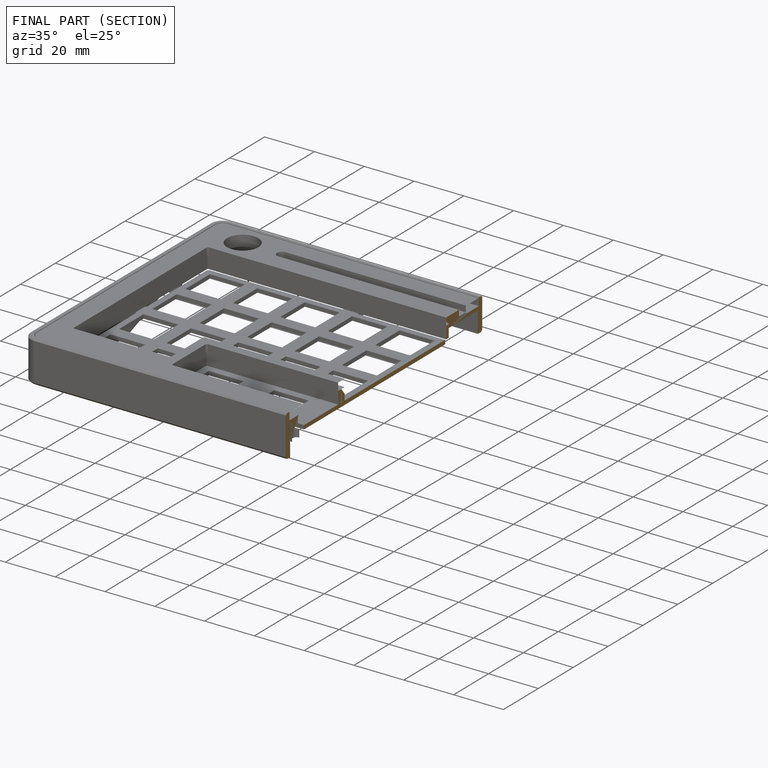
[diagram: finished part — half-section view (interior)]
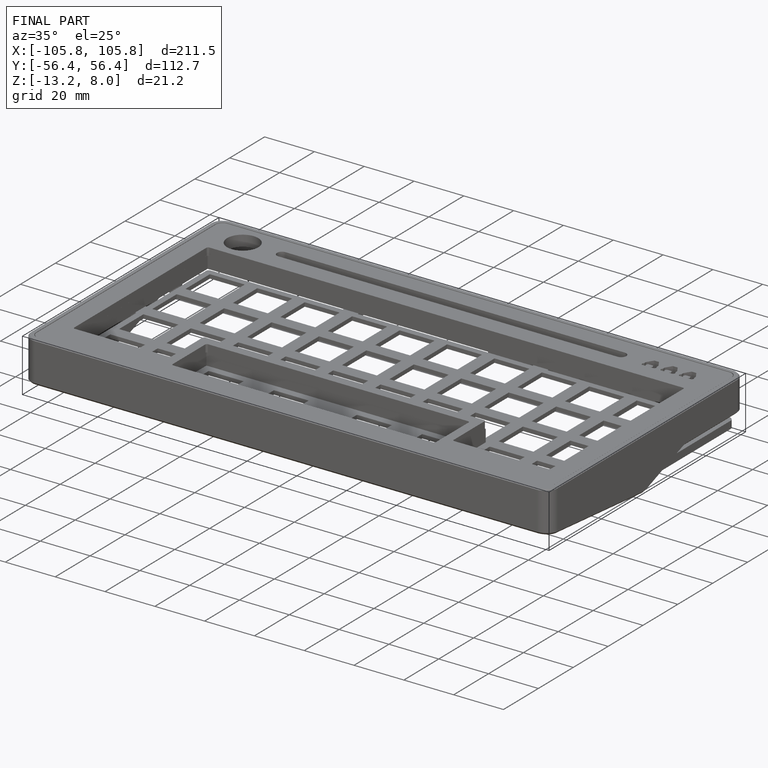
[diagram: finished part — iso view with bounding-box wireframe]
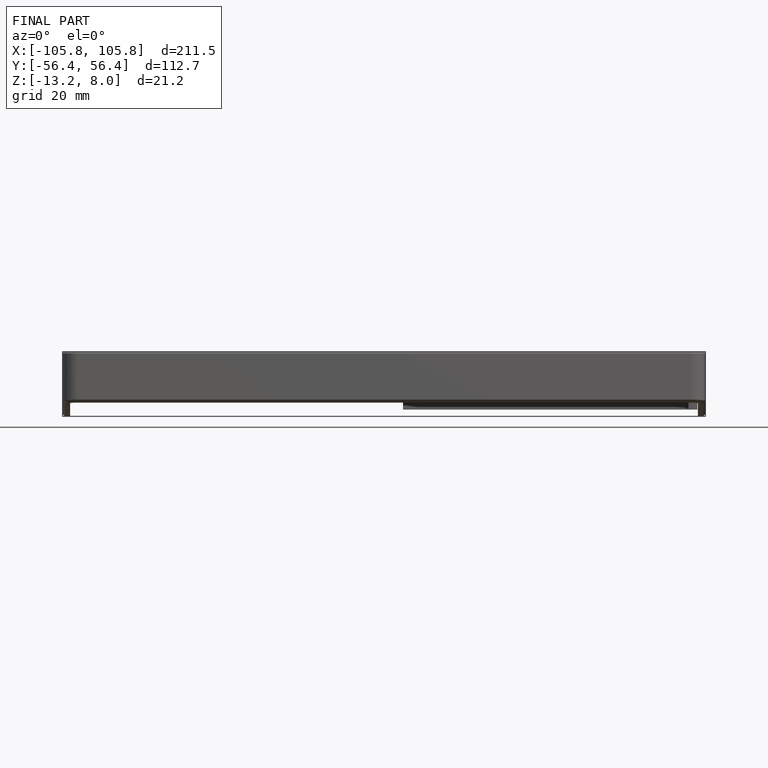
[diagram: finished part — front view with bounding-box wireframe]
